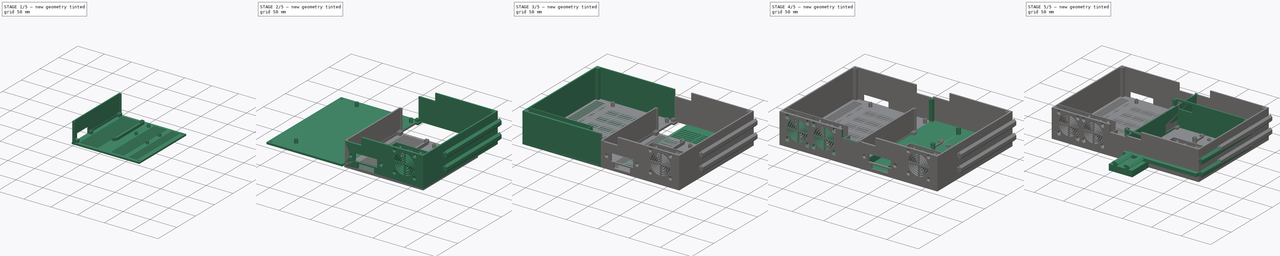
[diagram: build sequence overview — one tinted view per stage of 5, left to right]
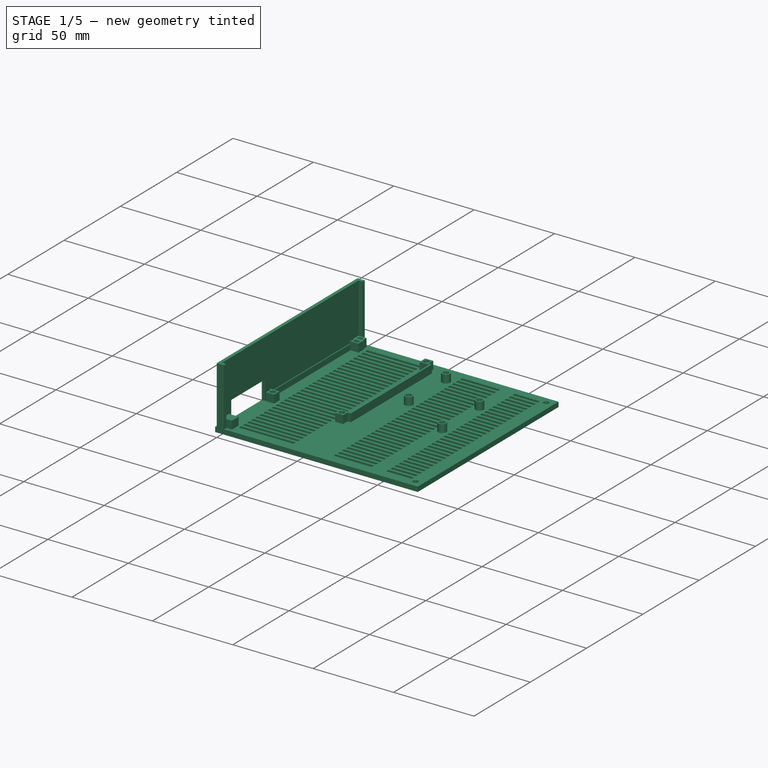
[diagram: stage 1 of 5 — iso view after this stage's code; geometry added in this stage tinted green]
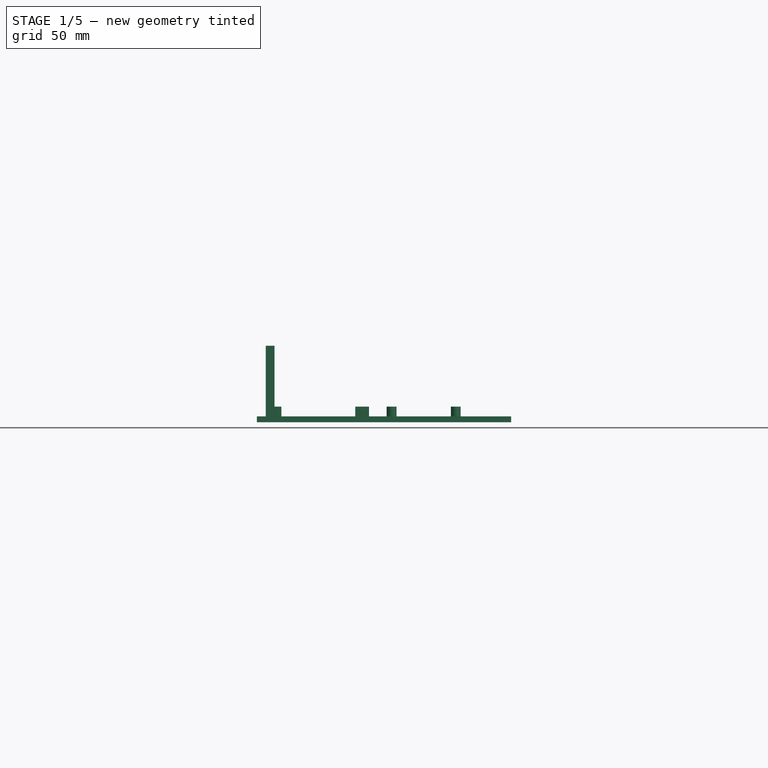
[diagram: stage 1 of 5 — front view after this stage's code; geometry added in this stage tinted green]
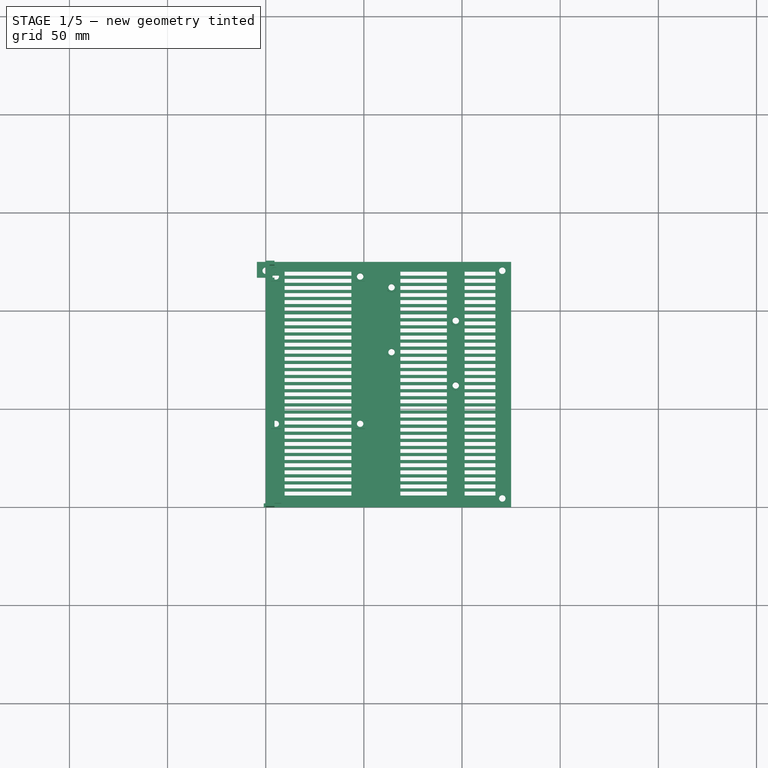
[diagram: stage 1 of 5 — top view after this stage's code; geometry added in this stage tinted green]
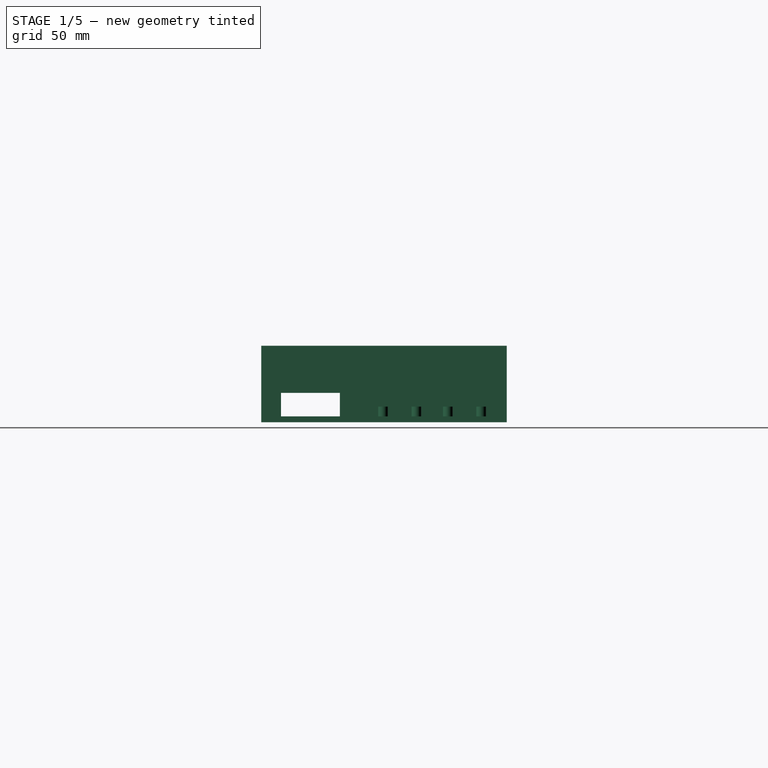
[diagram: stage 1 of 5 — right view after this stage's code; geometry added in this stage tinted green]
FCSTD DOCUMENT  (FreeCAD 0.18R16146 (Git))
Label: skr_pro_case_single
License: All rights reserved
LicenseURL: http://en.wikipedia.org/wiki/All_rights_reserved
objects: Sketcher::SketchObject×89, PartDesign::Pad×37, PartDesign::Pocket×33, PartDesign::Hole×20, PartDesign::Body×14, PartDesign::LinearPattern×7
note: 290 computed .brp shape members not serialized (recipe doc carries the construction recipe); baked Part::Feature solids carry a one-line shape summary decoded from their .brp

FEATURE [Sketcher::SketchObject] Sketch081
  ExternalGeometry = -> [Pocket023]
  MapMode = 5
  Placement = pos=(0,0,5) rot=(0,0,1;0rad)
  Support = -> [Pocket023]
  sketch-geometry (12):
    g0: LineSegment [constr] StartX=49 StartY=70 StartZ=0 EndX=105 EndY=70 EndZ=0
    g1: LineSegment [constr] StartX=105 StartY=70 StartZ=0 EndX=105 EndY=155 EndZ=0
    g2: LineSegment [constr] StartX=105 StartY=155 StartZ=0 EndX=49 EndY=155 EndZ=0
    g3: LineSegment [constr] StartX=49 StartY=155 StartZ=0 EndX=49 EndY=70 EndZ=0
    g4: Circle CenterX=101.5 CenterY=151.5 CenterZ=0 NormalX=0 NormalY=0 NormalZ=1 AngleXU=0 Radius=3
    g5: Circle CenterX=52.5 CenterY=151.5 CenterZ=0 NormalX=0 NormalY=0 NormalZ=1 AngleXU=0 Radius=3
    g6: Circle CenterX=101.5 CenterY=93.5 CenterZ=0 NormalX=0 NormalY=0 NormalZ=1 AngleXU=0 Radius=3
    g7: Circle CenterX=52.5 CenterY=93.5 CenterZ=0 NormalX=0 NormalY=0 NormalZ=1 AngleXU=0 Radius=3
    g8: LineSegment [constr] StartX=101.5 StartY=93.5 StartZ=0 EndX=52.5 EndY=93.5 EndZ=0
    g9: LineSegment [constr] StartX=52.5 StartY=93.5 StartZ=0 EndX=52.5 EndY=151.5 EndZ=0
    g10: LineSegment [constr] StartX=52.5 StartY=151.5 StartZ=0 EndX=101.5 EndY=151.5 EndZ=0
    g11: LineSegment [constr] StartX=101.5 StartY=151.5 StartZ=0 EndX=101.5 EndY=93.5 EndZ=0
  constraints (32):
    c: Coincident(g0,g1)
    c: Coincident(g1,g2)
    c: Coincident(g2,g3)
    c: Coincident(g3,g0)
    c: Horizontal(g0)
    c: Horizontal(g2)
    c: Vertical(g1)
    c: Vertical(g3)
    c: Distance(g1) = 85
    c: Distance(g2) = 56
    c: DistanceY(g-4,g0) = 70
    c: DistanceX(g0,g-4) = 20
    c: Diameter(g4) = 6
    c: Equal(g4,g5)
    c: Equal(g5,g6)
    c: Equal(g6,g7)
    c: Coincident(g8,g9)
    c: Coincident(g9,g10)
    c: Coincident(g10,g11)
    c: Coincident(g11,g8)
    c: Horizontal(g8)
    c: Horizontal(g10)
    c: Vertical(g9)
    c: Vertical(g11)
    c: Distance(g9) = 58
    c: Coincident(g4,g10)
    c: Coincident(g5,g9)
    c: Coincident(g6,g8)
    c: Coincident(g7,g8)
    c: Distance(g10) = 49
    c: DistanceY(g5,g2) = 3.5
    c: DistanceX(g2,g5) = 3.5
FEATURE [Sketcher::SketchObject] Sketch084
  MapMode = 5
  Support = -> [XY_Plane008]
  sketch-geometry (4):
    g0: LineSegment StartX=0 StartY=0 StartZ=0 EndX=125 EndY=0 EndZ=0
    g1: LineSegment StartX=125 StartY=0 StartZ=0 EndX=125 EndY=125 EndZ=0
    g2: LineSegment StartX=125 StartY=125 StartZ=0 EndX=0 EndY=125 EndZ=0
    g3: LineSegment StartX=0 StartY=125 StartZ=0 EndX=0 EndY=0 EndZ=0
  constraints (11):
    c: Coincident(g0,g1)
    c: Coincident(g1,g2)
    c: Coincident(g2,g3)
    c: Coincident(g3,g0)
    c: Horizontal(g0)
    c: Horizontal(g2)
    c: Vertical(g1)
    c: Vertical(g3)
    c: Distance(g2) = 125
    c: Distance(g1) = 125
    c: Coincident(g-1,g0)
FEATURE [PartDesign::Pad] Pad026
  Length = 3
  Length2 = 100
  Profile = -> Sketch084
  Type = 0
FEATURE [PartDesign::Body] Body009  label="walls_right_back"
  Group = -> [Sketch085,Pad027,Sketch086,Pad028,Sketch087,Pad029,Sketch088,Pad030,Sketch089,Hole010,Sketch090,Pocket031,Sketch091,Pocket032]
  Origin = -> Origin009
  Placement = pos=(0,217,4) rot=(0,0,1;0rad)
  Tip = -> Pocket032
FEATURE [Sketcher::SketchObject] Sketch092
  MapMode = 5
  Placement = pos=(0,0,0) rot=(0.57735,0.57735,0.57735;2.0944rad)
  Support = -> [YZ_Plane010]
  sketch-geometry (6):
    g0: LineSegment StartX=0 StartY=0 StartZ=0 EndX=125 EndY=0 EndZ=0
    g1: LineSegment StartX=125 StartY=0 StartZ=0 EndX=125 EndY=39 EndZ=0
    g2: LineSegment StartX=125 StartY=39 StartZ=0 EndX=0 EndY=39 EndZ=0
    g3: LineSegment StartX=0 StartY=39 StartZ=0 EndX=0 EndY=0 EndZ=0
    g4: LineSegment [constr] StartX=0 StartY=0 StartZ=0 EndX=0 EndY=51 EndZ=0
    g5: LineSegment [constr] StartX=0 StartY=51 StartZ=0 EndX=0 EndY=39 EndZ=0
  constraints (16):
    c: Coincident(g0,g1)
    c: Coincident(g1,g2)
    c: Coincident(g2,g3)
    c: Coincident(g3,g0)
    c: Horizontal(g0)
    c: Horizontal(g2)
    c: Vertical(g1)
    c: Vertical(g3)
    c: Distance(g2) = 125
    c: Coincident(g0,g-1)
    c: Coincident(g4,g5)
    c: Distance(g4) = 51
    c: Vertical(g4)
    c: Distance(g5) = 12
    c: Coincident(g5,g2)
    c: Coincident(g0,g4)
FEATURE [PartDesign::Pad] Pad031
  Length = 2
  Length2 = 100
  Placement = pos=(0,0,0) rot=(0.57735,0.57735,0.57735;2.0944rad)
  Profile = -> Sketch092
  Type = 0
FEATURE [Sketcher::SketchObject] Sketch093
  ExternalGeometry = -> [Pad031]
  MapMode = 5
  Placement = pos=(-1.09e-14,1.72e-14,39) rot=(0,0,-1;1.5708rad)
  Support = -> [Pad031]
  sketch-geometry (8):
    g0: LineSegment StartX=-2 StartY=2 StartZ=0 EndX=1.42e-14 EndY=2 EndZ=0
    g1: LineSegment StartX=1.42e-14 StartY=2 StartZ=0 EndX=1.42e-14 EndY=4.5 EndZ=0
    g2: LineSegment StartX=1.42e-14 StartY=4.5 StartZ=0 EndX=-2 EndY=4.5 EndZ=0
    g3: LineSegment StartX=-2 StartY=4.5 StartZ=0 EndX=-2 EndY=2 EndZ=0
    g4: LineSegment StartX=-125 StartY=2 StartZ=0 EndX=-123 EndY=2 EndZ=0
    g5: LineSegment StartX=-123 StartY=2 StartZ=0 EndX=-123 EndY=4.5 EndZ=0
    g6: LineSegment StartX=-123 StartY=4.5 StartZ=0 EndX=-125 EndY=4.5 EndZ=0
    g7: LineSegment StartX=-125 StartY=4.5 StartZ=0 EndX=-125 EndY=2 EndZ=0
  constraints (22):
    c: Coincident(g0,g1)
    c: Coincident(g1,g2)
    c: Coincident(g2,g3)
    c: Coincident(g3,g0)
    c: Horizontal(g0)
    c: Horizontal(g2)
    c: Vertical(g1)
    c: Vertical(g3)
    c: Distance(g0) = 2
    c: Distance(g1) = 2.5
    c: Coincident(g-3,g0)
    c: Coincident(g4,g5)
    c: Coincident(g5,g6)
    c: Coincident(g6,g7)
    c: Coincident(g7,g4)
    c: Horizontal(g4)
    c: Horizontal(g6)
    c: Vertical(g5)
    c: Vertical(g7)
    c: Distance(g6) = 2
    c: Distance(g7) = 2.5
    c: Coincident(g4,g-3)
FEATURE [PartDesign::Pad] Pad032
  BaseFeature = -> Pad031
  Length = 36
  Length2 = 100
  Placement = pos=(0,0,0) rot=(0.57735,0.57735,0.57735;2.0944rad)
  Profile = -> Sketch093
  Reversed = true
  Type = 0
FEATURE [Sketcher::SketchObject] Sketch094
  ExternalGeometry = -> [Pad032]
  MapMode = 5
  Placement = pos=(0,0,0) rot=(0.707107,0.707107,0;3.14159rad)
  Support = -> [Pad032]
  sketch-geometry (6):
    g0: LineSegment StartX=-9e-16 StartY=2 StartZ=0 EndX=117 EndY=2 EndZ=0
    g1: LineSegment StartX=117 StartY=2 StartZ=0 EndX=117 EndY=4.5 EndZ=0
    g2: LineSegment StartX=117 StartY=4.5 StartZ=0 EndX=8 EndY=4.5 EndZ=0
    g3: LineSegment StartX=-9e-16 StartY=8 StartZ=0 EndX=-9e-16 EndY=2 EndZ=0
    g4: LineSegment StartX=-9e-16 StartY=8 StartZ=0 EndX=8 EndY=8 EndZ=0
    g5: LineSegment StartX=8 StartY=8 StartZ=0 EndX=8 EndY=4.5 EndZ=0
  constraints (17):
    c: Coincident(g1,g2)
    c: Horizontal(g2)
    c: Vertical(g1)
    c: Vertical(g3)
    c: Distance(g3) = 6
    c: Coincident(g4,g5)
    c: Vertical(g5)
    c: Horizontal(g4)
    c: Coincident(g4,g3)
    c: Coincident(g5,g2)
    c: Coincident(g1,g0)
    c: Coincident(g3,g0)
    c: Coincident(g-4,g0)
    c: Distance(g4) = 8
    c: Distance(g5) = 3.5
    c: PointOnObject(g0,g-4)
    c: Distance(g-4,g0) = 8
FEATURE [PartDesign::Pad] Pad033
  BaseFeature = -> Pad032
  Length = 3
  Length2 = 100
  Placement = pos=(0,0,0) rot=(0.57735,0.57735,0.57735;2.0944rad)
  Profile = -> Sketch094
  Reversed = true
  Type = 0
FEATURE [Sketcher::SketchObject] Sketch096
  MapMode = 5
  Placement = pos=(0,0,0) rot=(1,0,0;3.14159rad)
  Support = -> [Pad026]
  sketch-geometry (6):
    g0: LineSegment StartX=-4.5 StartY=-8 StartZ=0 EndX=3.5 EndY=-8 EndZ=0
    g1: LineSegment StartX=3.5 StartY=-8 StartZ=0 EndX=3.5 EndY=0 EndZ=0
    g2: LineSegment StartX=-4.5 StartY=-2 StartZ=0 EndX=-4.5 EndY=-8 EndZ=0
    g3: LineSegment StartX=-4.5 StartY=-2 StartZ=0 EndX=0 EndY=-2 EndZ=0
    g4: LineSegment StartX=0 StartY=-2 StartZ=0 EndX=0 EndY=0 EndZ=0
    g5: LineSegment StartX=0 StartY=0 StartZ=0 EndX=3.5 EndY=0 EndZ=0
  constraints (17):
    c: Coincident(g0,g1)
    c: Coincident(g2,g0)
    c: Horizontal(g0)
    c: Vertical(g1)
    c: Vertical(g2)
    c: Equal(g0,g1)
    c: Distance(g1) = 8
    c: DistanceX(g-1,g1) = 3.5
    c: Coincident(g3,g4)
    c: Coincident(g4,g5)
    c: Horizontal(g5)
    c: Horizontal(g3)
    c: Vertical(g4)
    c: Coincident(g3,g2)
    c: Distance(g4) = 2
    c: Coincident(g1,g5)
    c: Coincident(g-1,g4)
FEATURE [PartDesign::Pocket] Pocket033
  BaseFeature = -> Pad026
  Length = 3
  Length2 = 100
  Profile = -> Sketch096
  Type = 0
FEATURE [Sketcher::SketchObject] Sketch097
  ExternalGeometry = -> [Pocket033]
  MapMode = 5
  Placement = pos=(0,0,3) rot=(0,0,1;0rad)
  Support = -> [Pocket033]
  sketch-geometry (4):
    g0: LineSegment StartX=-4.5 StartY=117 StartZ=0 EndX=0 EndY=117 EndZ=0
    g1: LineSegment StartX=0 StartY=117 StartZ=0 EndX=0 EndY=125 EndZ=0
    g2: LineSegment StartX=0 StartY=125 StartZ=0 EndX=-4.5 EndY=125 EndZ=0
    g3: LineSegment StartX=-4.5 StartY=125 StartZ=0 EndX=-4.5 EndY=117 EndZ=0
  constraints (11):
    c: Coincident(g0,g1)
    c: Coincident(g1,g2)
    c: Coincident(g2,g3)
    c: Coincident(g3,g0)
    c: Horizontal(g0)
    c: Horizontal(g2)
    c: Vertical(g1)
    c: Vertical(g3)
    c: Distance(g0) = 4.5
    c: Distance(g1) = 8
    c: Coincident(g1,g-3)
FEATURE [PartDesign::Pad] Pad034
  BaseFeature = -> Pocket033
  Length = 3
  Length2 = 100
  Profile = -> Sketch097
  Reversed = true
  Type = 0
FEATURE [Sketcher::SketchObject] Sketch098
  ExternalGeometry = -> [Pad034]
  MapMode = 5
  Placement = pos=(0,0,0) rot=(1,0,0;3.14159rad)
  Support = -> [Pad034]
  sketch-geometry (3):
    g0: Circle CenterX=0 CenterY=-120.5 CenterZ=0 NormalX=0 NormalY=0 NormalZ=1 AngleXU=0 Radius=1.5
    g1: Circle CenterX=120.5 CenterY=-120.5 CenterZ=0 NormalX=0 NormalY=0 NormalZ=1 AngleXU=0 Radius=1.5
    g2: Circle CenterX=120.5 CenterY=-4.5 CenterZ=0 NormalX=0 NormalY=0 NormalZ=1 AngleXU=0 Radius=1.5
  constraints (9):
    c: Diameter(g0) = 3
    c: PointOnObject(g0,g-2)
    c: Distance(g0,g-3) = 4.5
    c: Diameter(g1) = 3
    c: DistanceX(g1,g-4) = 4.5
    c: DistanceY(g-4,g1) = 4.5
    c: Diameter(g2) = 3
    c: DistanceX(g2,g-4) = 4.5
    c: DistanceY(g2,g-4) = 4.5
FEATURE [PartDesign::Hole] Hole011
  BaseFeature = -> Pad034
  Depth = 25
  DepthType = 0
  Diameter = 3.3
  DrillPoint = 1
  DrillPointAngle = 118
  HoleCutCountersinkAngle = 90
  HoleCutDepth = 0
  HoleCutDiameter = 6
  HoleCutType = 2
  ModelActualThread = false
  Profile = -> Sketch098
  Tapered = false
  TaperedAngle = 90
  ThreadAngle = 0
  ThreadClass = 0
  ThreadCutOffInner = 0
  ThreadCutOffOuter = 0
  ThreadDirection = 0
  ThreadFit = 0
  ThreadPitch = 0
  ThreadSize = 3
  ThreadType = 1
  Threaded = false
FEATURE [Sketcher::SketchObject] Sketch099
  MapMode = 5
  Placement = pos=(0,0,2e-16) rot=(0.707107,0.707107,0;3.14159rad)
  Support = -> [Pad033]
  sketch-geometry (1):
    g0: Circle CenterX=4.5 CenterY=4.5 CenterZ=0 NormalX=0 NormalY=0 NormalZ=1 AngleXU=0 Radius=1.5
  constraints (3):
    c: Diameter(g0) = 3
    c: DistanceY(g-1,g0) = 4.5
    c: DistanceX(g-1,g0) = 4.5
FEATURE [PartDesign::Hole] Hole012
  BaseFeature = -> Pad033
  Depth = 25
  DepthType = 0
  Diameter = 3.3
  DrillPoint = 1
  DrillPointAngle = 118
  HoleCutCountersinkAngle = 90
  HoleCutDepth = 0
  HoleCutDiameter = 6
  HoleCutType = 2
  ModelActualThread = false
  Placement = pos=(0,0,0) rot=(0.57735,0.57735,0.57735;2.0944rad)
  Profile = -> Sketch099
  Tapered = false
  TaperedAngle = 90
  ThreadAngle = 0
  ThreadClass = 0
  ThreadCutOffInner = 0
  ThreadCutOffOuter = 0
  ThreadDirection = 0
  ThreadFit = 0
  ThreadPitch = 0
  ThreadSize = 3
  ThreadType = 1
  Threaded = false
FEATURE [Sketcher::SketchObject] Sketch100
  ExternalGeometry = -> [Hole012]
  MapMode = 5
  Placement = pos=(1e-16,0,0) rot=(0.57735,0.57735,-0.57735;4.18879rad)
  Support = -> [Hole012]
  sketch-geometry (4):
    g0: LineSegment StartX=117 StartY=-3 StartZ=0 EndX=125 EndY=-3 EndZ=0
    g1: LineSegment StartX=125 StartY=-3 StartZ=0 EndX=125 EndY=1.594e-13 EndZ=0
    g2: LineSegment StartX=125 StartY=1.594e-13 StartZ=0 EndX=117 EndY=1.594e-13 EndZ=0
    g3: LineSegment StartX=117 StartY=1.594e-13 StartZ=0 EndX=117 EndY=-3 EndZ=0
  constraints (11):
    c: Coincident(g0,g1)
    c: Coincident(g1,g2)
    c: Coincident(g2,g3)
    c: Coincident(g3,g0)
    c: Horizontal(g0)
    c: Horizontal(g2)
    c: Vertical(g1)
    c: Vertical(g3)
    c: Coincident(g1,g-3)
    c: Distance(g1) = 3
    c: Distance(g0) = 8
FEATURE [PartDesign::Pocket] Pocket034
  BaseFeature = -> Hole012
  Length = 2
  Length2 = 100
  Placement = pos=(0,0,0) rot=(0.57735,0.57735,0.57735;2.0944rad)
  Profile = -> Sketch100
  Type = 0
FEATURE [Sketcher::SketchObject] Sketch101
  MapMode = 5
  Placement = pos=(1e-16,0,0) rot=(0.57735,0.57735,-0.57735;4.18879rad)
  Support = -> [Pocket034]
  sketch-geometry (5):
    g0: LineSegment StartX=10 StartY=0 StartZ=0 EndX=40 EndY=0 EndZ=0
    g1: LineSegment StartX=40 StartY=0 StartZ=0 EndX=40 EndY=-15 EndZ=0
    g2: LineSegment StartX=40 StartY=-15 StartZ=0 EndX=10 EndY=-15 EndZ=0
    g3: LineSegment StartX=10 StartY=-15 StartZ=0 EndX=10 EndY=0 EndZ=0
    g4: LineSegment [constr] StartX=10 StartY=0 StartZ=0 EndX=0 EndY=0 EndZ=0
  constraints (14):
    c: Coincident(g0,g1)
    c: Coincident(g1,g2)
    c: Coincident(g2,g3)
    c: Coincident(g3,g0)
    c: Horizontal(g0)
    c: Horizontal(g2)
    c: Vertical(g1)
    c: Vertical(g3)
    c: Distance(g0) = 30
    c: Distance(g1) = 15
    c: Horizontal(g4)
    c: Coincident(g4,g-1)
    c: Coincident(g0,g4)
    c: Distance(g4) = 10
FEATURE [PartDesign::Pocket] Pocket035
  BaseFeature = -> Pocket034
  Length = 5
  Length2 = 100
  Placement = pos=(0,0,0) rot=(0.57735,0.57735,0.57735;2.0944rad)
  Profile = -> Sketch101
  Type = 0
FEATURE [PartDesign::Body] Body012  label="foot"
  Group = -> [Sketch114,Pad039]
  Origin = -> Origin012
  Placement = pos=(0,-56,0) rot=(0,0,1;0rad)
  Tip = -> Pad039
FEATURE [Sketcher::SketchObject] Sketch126
  ExternalGeometry = -> [Hole011]
  MapMode = 5
  Placement = pos=(0,0,3) rot=(0,0,1;0rad)
  Support = -> [Hole011]
  sketch-geometry (42):
    g0: LineSegment [constr] StartX=56.6 StartY=115 StartZ=0 EndX=105 EndY=115 EndZ=0
    g1: LineSegment [constr] StartX=105 StartY=115 StartZ=0 EndX=105 EndY=92 EndZ=0
    g2: LineSegment [constr] StartX=105 StartY=92 StartZ=0 EndX=56.6 EndY=92 EndZ=0
    g3: LineSegment [constr] StartX=56.6 StartY=92 StartZ=0 EndX=56.6 EndY=115 EndZ=0
    g4: Circle CenterX=96.8 CenterY=95 CenterZ=0 NormalX=0 NormalY=0 NormalZ=1 AngleXU=0 Radius=2.5
    g5: Circle CenterX=64.1 CenterY=112 CenterZ=0 NormalX=0 NormalY=0 NormalZ=1 AngleXU=0 Radius=2.5
    g6: LineSegment [constr] StartX=56.6 StartY=82 StartZ=0 EndX=105 EndY=82 EndZ=0
    g7: LineSegment [constr] StartX=105 StartY=82 StartZ=0 EndX=105 EndY=59 EndZ=0
    g8: LineSegment [constr] StartX=105 StartY=59 StartZ=0 EndX=56.6 EndY=59 EndZ=0
    g9: LineSegment [constr] StartX=56.6 StartY=59 StartZ=0 EndX=56.6 EndY=82 EndZ=0
    g10: Circle CenterX=96.8 CenterY=62 CenterZ=0 NormalX=0 NormalY=0 NormalZ=1 AngleXU=0 Radius=2.5
    g11: Circle CenterX=64.1 CenterY=79 CenterZ=0 NormalX=0 NormalY=0 NormalZ=1 AngleXU=0 Radius=2.5
    g12: LineSegment [constr] StartX=105 StartY=82 StartZ=0 EndX=105 EndY=92 EndZ=0
    g13: LineSegment [constr] StartX=1.6 StartY=45 StartZ=0 EndX=51.6 EndY=45 EndZ=0
    g14: LineSegment [constr] StartX=51.6 StartY=45 StartZ=0 EndX=51.6 EndY=115 EndZ=0
    g15: LineSegment [constr] StartX=51.6 StartY=115 StartZ=0 EndX=1.6 EndY=115 EndZ=0
    g16: LineSegment [constr] StartX=1.6 StartY=115 StartZ=0 EndX=1.6 EndY=45 EndZ=0
    g17: LineSegment [constr] StartX=51.6 StartY=115 StartZ=0 EndX=56.6 EndY=115 EndZ=0
    g18: LineSegment StartX=0.6 StartY=44 StartZ=0 EndX=2.6 EndY=44 EndZ=0
    g19: LineSegment StartX=2.6 StartY=45 StartZ=0 EndX=2.6 EndY=115 EndZ=0
    g20: LineSegment StartX=2.6 StartY=116 StartZ=0 EndX=0.6 EndY=116 EndZ=0
    g21: LineSegment StartX=0.6 StartY=116 StartZ=0 EndX=0.6 EndY=44 EndZ=0
    g22: LineSegment StartX=50.6 StartY=44 StartZ=0 EndX=52.6 EndY=44 EndZ=0
    g23: LineSegment StartX=52.6 StartY=44 StartZ=0 EndX=52.6 EndY=116 EndZ=0
    g24: LineSegment StartX=52.6 StartY=116 StartZ=0 EndX=50.6 EndY=116 EndZ=0
    g25: LineSegment StartX=50.6 StartY=115 StartZ=0 EndX=50.6 EndY=45 EndZ=0
    g26: LineSegment StartX=2.6 StartY=115 StartZ=0 EndX=7.6 EndY=115 EndZ=0
    g27: LineSegment StartX=7.6 StartY=115 StartZ=0 EndX=7.6 EndY=120 EndZ=0
    g28: LineSegment StartX=7.6 StartY=120 StartZ=0 EndX=2.6 EndY=120 EndZ=0
    g29: LineSegment StartX=2.6 StartY=120 StartZ=0 EndX=2.6 EndY=116 EndZ=0
    g30: LineSegment StartX=50.6 StartY=115 StartZ=0 EndX=45.6 EndY=115 EndZ=0
    g31: LineSegment StartX=45.6 StartY=115 StartZ=0 EndX=45.6 EndY=120 EndZ=0
    g32: LineSegment StartX=45.6 StartY=120 StartZ=0 EndX=50.6 EndY=120 EndZ=0
    g33: LineSegment StartX=50.6 StartY=120 StartZ=0 EndX=50.6 EndY=116 EndZ=0
    g34: LineSegment StartX=2.6 StartY=45 StartZ=0 EndX=7.6 EndY=45 EndZ=0
    g35: LineSegment StartX=7.6 StartY=45 StartZ=0 EndX=7.6 EndY=40 EndZ=0
    g36: LineSegment StartX=7.6 StartY=40 StartZ=0 EndX=2.6 EndY=40 EndZ=0
    g37: LineSegment StartX=2.6 StartY=40 StartZ=0 EndX=2.6 EndY=44 EndZ=0
    g38: LineSegment StartX=50.6 StartY=45 StartZ=0 EndX=45.6 EndY=45 EndZ=0
    g39: LineSegment StartX=45.6 StartY=45 StartZ=0 EndX=45.6 EndY=40 EndZ=0
    g40: LineSegment StartX=45.6 StartY=40 StartZ=0 EndX=50.6 EndY=40 EndZ=0
    g41: LineSegment StartX=50.6 StartY=40 StartZ=0 EndX=50.6 EndY=44 EndZ=0
  constraints (124):
    c: Coincident(g0,g1)
    c: Coincident(g1,g2)
    c: Coincident(g2,g3)
    c: Coincident(g3,g0)
    c: Horizontal(g0)
    c: Horizontal(g2)
    c: Vertical(g1)
    c: Vertical(g3)
    c: Distance(g0) = 48.4
    c: DistanceY(g3,g3) = 23
    c: Diameter(g4) = 5
    c: Equal(g4,g5) = 5
    c: DistanceY(g5,g0) = 3
    c: DistanceY(g1,g4) = 3
    c: DistanceX(g4,g1) = 8.2
    c: DistanceX(g0,g5) = 7.5
    c: Coincident(g6,g7)
    c: Coincident(g7,g8)
    c: Coincident(g8,g9)
    c: Coincident(g9,g6)
    c: Horizontal(g6)
    c: Horizontal(g8)
    c: Vertical(g7)
    c: Vertical(g9)
    c: Equal(g0,g6) = 48.4
    c: Equal(g3,g9) = 23
    c: Equal(g4,g10) = 5
    c: Equal(g10,g11) = 5
    c: DistanceY(g11,g6) = 3
    c: DistanceY(g7,g10) = 3
    c: DistanceX(g10,g7) = 8.2
    c: DistanceX(g6,g11) = 7.5
    c: DistanceX(g0,g-3) = 20
    c: Coincident(g12,g1)
    c: Coincident(g12,g6)
    c: Vertical(g12)
    c: Distance(g12) = 10
    c: DistanceY(g0,g-3) = 10
    c: Coincident(g13,g14)
    c: Coincident(g14,g15)
    c: Coincident(g15,g16)
    c: Coincident(g16,g13)
    c: Horizontal(g13)
    c: Horizontal(g15)
    c: Vertical(g14)
    c: Vertical(g16)
    c: Distance(g13) = 50
    c: Horizontal(g17)
    c: Coincident(g17,g0)
    c: Coincident(g17,g14)
    c: Distance(g17) = 5
    c: Distance(g16) = 70
    c: Coincident(g20,g21)
    c: Coincident(g21,g18)
    c: Horizontal(g18)
    c: Horizontal(g20)
    c: Vertical(g19)
    c: Vertical(g21)
    c: Distance(g20) = 2
    c: DistanceY(g15,g20) = 1
    c: DistanceX(g15,g19) = 1
    c: DistanceY(g18,g13) = 1
    c: Coincident(g22,g23)
    c: Coincident(g23,g24)
    c: Horizontal(g22)
    c: Horizontal(g24)
    c: Vertical(g23)
    c: Vertical(g25)
    c: DistanceX(g13,g22) = 1
    c: Distance(g22) = 2
    c: DistanceY(g22,g13) = 1
    c: DistanceY(g14,g24) = 1
    c: Coincident(g26,g27)
    c: Coincident(g27,g28)
    c: Coincident(g28,g29)
    c: Horizontal(g26)
    c: Horizontal(g28)
    c: Vertical(g27)
    c: Vertical(g29)
    c: PointOnObject(g19,g15)
    c: Coincident(g29,g20)
    c: Coincident(g26,g19)
    c: Equal(g26,g27)
    c: Distance(g27) = 5
    c: DistanceX(g20,g15) = 1
    c: PointOnObject(g25,g15)
    c: Coincident(g30,g31)
    c: Coincident(g31,g32)
    c: Coincident(g32,g33)
    c: Horizontal(g30)
    c: Horizontal(g32)
    c: Vertical(g31)
    c: Vertical(g33)
    c: Equal(g31,g30)
    c: Distance(g31) = 5
    c: Coincident(g30,g25)
    c: Coincident(g33,g24)
    c: Distance(g24) = 2
    c: PointOnObject(g19,g13)
    c: Coincident(g34,g35)
    c: Coincident(g35,g36)
    c: Coincident(g36,g37)
    c: Horizontal(g34)
    c: Horizontal(g36)
    c: Vertical(g35)
    c: Vertical(g37)
    c: Coincident(g37,g18)
    c: Coincident(g34,g19)
    c: Distance(g18) = 2
    c: Equal(g34,g35)
    c: Distance(g34) = 5
    c: PointOnObject(g25,g13)
    c: Coincident(g38,g39)
    c: Coincident(g39,g40)
    c: Coincident(g40,g41)
    c: Horizontal(g38)
    c: Horizontal(g40)
    c: Vertical(g39)
    c: Vertical(g41)
    c: Coincident(g41,g22)
    c: Coincident(g25,g38)
    c: Equal(g39,g38)
    c: Distance(g38) = 5
    c: DistanceX(g25,g13) = 1
FEATURE [PartDesign::Pad] Pad046
  BaseFeature = -> Hole011
  Length = 5
  Length2 = 100
  Profile = -> Sketch126
  Type = 0
FEATURE [Sketcher::SketchObject] Sketch127
  ExternalGeometry = -> [Pad046]
  MapMode = 5
  Placement = pos=(0,0,8) rot=(0,0,1;0rad)
  Support = -> [Pad046]
  sketch-geometry (8):
    g0: Circle CenterX=64.1 CenterY=112 CenterZ=0 NormalX=0 NormalY=0 NormalZ=1 AngleXU=0 Radius=1.5
    g1: Circle CenterX=96.8 CenterY=95 CenterZ=0 NormalX=0 NormalY=0 NormalZ=1 AngleXU=0 Radius=1.5
    g2: Circle CenterX=96.8 CenterY=62 CenterZ=0 NormalX=0 NormalY=0 NormalZ=1 AngleXU=0 Radius=1.5
    g3: Circle CenterX=64.1 CenterY=79 CenterZ=0 NormalX=0 NormalY=0 NormalZ=1 AngleXU=0 Radius=1.5
    g4: Circle CenterX=5.1 CenterY=117.5 CenterZ=0 NormalX=0 NormalY=0 NormalZ=1 AngleXU=0 Radius=1.5
    g5: Circle CenterX=48.1 CenterY=117.5 CenterZ=0 NormalX=0 NormalY=0 NormalZ=1 AngleXU=0 Radius=1.5
    g6: Circle CenterX=5.1 CenterY=42.5 CenterZ=0 NormalX=0 NormalY=0 NormalZ=1 AngleXU=0 Radius=1.5
    g7: Circle CenterX=48.1 CenterY=42.5 CenterZ=0 NormalX=0 NormalY=0 NormalZ=1 AngleXU=0 Radius=1.5
  constraints (20):
    c: Equal(g0,g3)
    c: Equal(g3,g1)
    c: Equal(g1,g2)
    c: Diameter(g0) = 3
    c: Coincident(g0,g-6)
    c: Coincident(g1,g-7)
    c: Coincident(g3,g-8)
    c: Coincident(g2,g-9)
    c: DistanceX(g4,g-10) = 2.5
    c: DistanceY(g4,g-10) = 2.5
    c: Equal(g6,g7)
    c: Equal(g7,g4)
    c: Equal(g4,g5)
    c: Equal(g5,g0)
    c: DistanceY(g5,g-11) = 2.5
    c: DistanceX(g-11,g5) = 2.5
    c: DistanceY(g-12,g6) = 2.5
    c: DistanceX(g6,g-12) = 2.5
    c: DistanceY(g-13,g7) = 2.5
    c: DistanceX(g-13,g7) = 2.5
FEATURE [PartDesign::Hole] Hole018
  BaseFeature = -> Pad046
  Depth = 25
  DepthType = 0
  Diameter = 3.3
  DrillPoint = 1
  DrillPointAngle = 118
  HoleCutCountersinkAngle = 90
  HoleCutDepth = 0
  HoleCutDiameter = 3
  HoleCutType = 0
  ModelActualThread = false
  Profile = -> Sketch127
  Tapered = false
  TaperedAngle = 90
  ThreadAngle = 0
  ThreadClass = 0
  ThreadCutOffInner = 0
  ThreadCutOffOuter = 0
  ThreadDirection = 0
  ThreadFit = 0
  ThreadPitch = 0
  ThreadSize = 3
  ThreadType = 1
  Threaded = false
FEATURE [PartDesign::Body] Body002  label="walls_front_right"
  Group = -> [Sketch023,Pad001,Sketch022,Sketch,Pad002,Sketch025,Pocket001,Sketch028,Pocket003,Sketch053,Sketch057,Pad016,Sketch080,Hole009,Pocket,Hole015,Sketch131,Pocket044,Sketch134,Hole020,Sketch140,Pocket048]
  Origin = -> Origin002
  Placement = pos=(0,0,2) rot=(0,0,1;0rad)
  Tip = -> Pocket048
FEATURE [Sketcher::SketchObject] Sketch141
  ExternalGeometry = -> [Hole018]
  MapMode = 5
  Placement = pos=(0,0,8) rot=(0,0,1;0rad)
  Support = -> [Hole018]
  sketch-geometry (8):
    g0: LineSegment StartX=1.6 StartY=45 StartZ=0 EndX=2.6 EndY=45 EndZ=0
    g1: LineSegment StartX=2.6 StartY=45 StartZ=0 EndX=2.6 EndY=115 EndZ=0
    g2: LineSegment StartX=2.6 StartY=115 StartZ=0 EndX=1.6 EndY=115 EndZ=0
    g3: LineSegment StartX=1.6 StartY=115 StartZ=0 EndX=1.6 EndY=45 EndZ=0
    g4: LineSegment StartX=51.6 StartY=115 StartZ=0 EndX=50.6 EndY=115 EndZ=0
    g5: LineSegment StartX=50.6 StartY=115 StartZ=0 EndX=50.6 EndY=45 EndZ=0
    g6: LineSegment StartX=50.6 StartY=45 StartZ=0 EndX=51.6 EndY=45 EndZ=0
    g7: LineSegment StartX=51.6 StartY=45 StartZ=0 EndX=51.6 EndY=115 EndZ=0
  constraints (20):
    c: Coincident(g0,g1)
    c: Coincident(g1,g2)
    c: Coincident(g2,g3)
    c: Coincident(g3,g0)
    c: Horizontal(g0)
    c: Horizontal(g2)
    c: Vertical(g3)
    c: Coincident(g4,g5)
    c: Coincident(g5,g6)
    c: Coincident(g6,g7)
    c: Coincident(g7,g4)
    c: Horizontal(g4)
    c: Horizontal(g6)
    c: Vertical(g7)
    c: Coincident(g0,g-3)
    c: Coincident(g5,g-4)
    c: Coincident(g-3,g1)
    c: Distance(g2) = 1
    c: Coincident(g-4,g4)
    c: Distance(g4) = 1
FEATURE [PartDesign::Pocket] Pocket049
  BaseFeature = -> Hole018
  Length = 1.5
  Length2 = 100
  Profile = -> Sketch141
  Type = 0
FEATURE [PartDesign::Body] Body013  label="PCB_Bracket"
  Group = -> [Sketch142,Pad049,Sketch143,Hole023]
  Origin = -> Origin013
  Placement = pos=(1.6,331,9) rot=(0,0,1;0rad)
  Tip = -> Hole023
FEATURE [Sketcher::SketchObject] Sketch145
  MapMode = 5
  Support = -> [XY_Plane014]
  sketch-geometry (12):
    g0: LineSegment StartX=-1 StartY=0 StartZ=0 EndX=51 EndY=0 EndZ=0
    g1: LineSegment StartX=51 StartY=0 StartZ=0 EndX=51 EndY=2 EndZ=0
    g2: LineSegment StartX=51 StartY=2 StartZ=0 EndX=49 EndY=2 EndZ=0
    g3: LineSegment StartX=49 StartY=2 StartZ=0 EndX=49 EndY=6 EndZ=0
    g4: LineSegment StartX=49 StartY=6 StartZ=0 EndX=44 EndY=6 EndZ=0
    g5: LineSegment StartX=44 StartY=6 StartZ=0 EndX=44 EndY=2 EndZ=0
    g6: LineSegment StartX=44 StartY=2 StartZ=0 EndX=6 EndY=2 EndZ=0
    g7: LineSegment StartX=6 StartY=2 StartZ=0 EndX=6 EndY=6 EndZ=0
    g8: LineSegment StartX=6 StartY=6 StartZ=0 EndX=1 EndY=6 EndZ=0
    g9: LineSegment StartX=1 StartY=6 StartZ=0 EndX=1 EndY=2 EndZ=0
    g10: LineSegment StartX=1 StartY=2 StartZ=0 EndX=-1 EndY=2 EndZ=0
    g11: LineSegment StartX=-1 StartY=2 StartZ=0 EndX=-1 EndY=0 EndZ=0
  constraints (27):
    c: Perpendicular(g0,g1) = 1.5708
    c: Perpendicular(g1,g2) = 1.5708
    c: Perpendicular(g2,g3) = 4.71239
    c: Perpendicular(g3,g4) = 1.5708
    c: Perpendicular(g4,g5) = 1.5708
    c: Perpendicular(g5,g6) = 4.71239
    c: Perpendicular(g6,g7) = 4.71239
    c: Perpendicular(g7,g8) = 1.5708
    c: Perpendicular(g8,g9) = 1.5708
    c: Coincident(g10,g11)
    c: Coincident(g10,g9)
    c: Coincident(g11,g0)
    c: Perpendicular(g9,g10)
    c: Perpendicular(g10,g11)
    c: Horizontal(g0)
    c: Distance(g0) = 52
    c: Distance(g10) = 2
    c: Distance(g2) = 2
    c: Distance(g11) = 2
    c: PointOnObject(g-1,g0)
    c: DistanceX(g0,g-1) = 1
    c: Distance(g8) = 5
    c: Equal(g8,g4)
    c: Distance(g9) = 4
    c: Equal(g9,g7)
    c: Equal(g7,g5)
    c: Equal(g5,g3)
FEATURE [PartDesign::Pad] Pad050
  Length = 3
  Length2 = 100
  Profile = -> Sketch145
  Type = 0
FEATURE [PartDesign::Body] Body014  label="PCB_Bracket001"
  Group = -> [Sketch145,Pad050,Sketch144,Hole024]
  Origin = -> Origin014
  Placement = pos=(51.6,263,9) rot=(0,0,1;3.14159rad)
  Tip = -> Hole024
FEATURE [Sketcher::SketchObject] Sketch146
  ExternalGeometry = -> [Pocket049]
  MapMode = 5
  Placement = pos=(0,0,3) rot=(0,0,1;0rad)
  Support = -> [Pocket049]
  sketch-geometry (18):
    g0: LineSegment StartX=9.6 StartY=120 StartZ=0 EndX=43.6 EndY=120 EndZ=0
    g1: LineSegment StartX=43.6 StartY=120 StartZ=0 EndX=43.6 EndY=118 EndZ=0
    g2: LineSegment StartX=43.6 StartY=118 StartZ=0 EndX=9.6 EndY=118 EndZ=0
    g3: LineSegment StartX=9.6 StartY=118 StartZ=0 EndX=9.6 EndY=120 EndZ=0
    g4: LineSegment [constr] StartX=7.6 StartY=120 StartZ=0 EndX=9.6 EndY=120 EndZ=0
    g5: LineSegment [constr] StartX=43.6 StartY=120 StartZ=0 EndX=45.6 EndY=120 EndZ=0
    g6: LineSegment StartX=68.6 StartY=118 StartZ=0 EndX=92.3 EndY=118 EndZ=0
    g7: LineSegment StartX=92.3 StartY=118 StartZ=0 EndX=92.3 EndY=120 EndZ=0
    g8: LineSegment StartX=92.3 StartY=120 StartZ=0 EndX=68.6 EndY=120 EndZ=0
    g9: LineSegment StartX=68.6 StartY=120 StartZ=0 EndX=68.6 EndY=118 EndZ=0
    g10: LineSegment StartX=101.3 StartY=118 StartZ=0 EndX=117 EndY=118 EndZ=0
    g11: LineSegment StartX=117 StartY=118 StartZ=0 EndX=117 EndY=120 EndZ=0
    g12: LineSegment StartX=117 StartY=120 StartZ=0 EndX=101.3 EndY=120 EndZ=0
    g13: LineSegment StartX=101.3 StartY=120 StartZ=0 EndX=101.3 EndY=118 EndZ=0
    g14: LineSegment [constr] StartX=50.6 StartY=120 StartZ=0 EndX=68.6 EndY=120 EndZ=0
    g15: LineSegment [constr] StartX=92.3 StartY=120 StartZ=0 EndX=96.8 EndY=120 EndZ=0
    g16: LineSegment [constr] StartX=96.8 StartY=120 StartZ=0 EndX=101.3 EndY=120 EndZ=0
    g17: LineSegment [constr] StartX=96.8 StartY=120 StartZ=0 EndX=96.8 EndY=95 EndZ=0
  constraints (49):
    c: Coincident(g0,g1)
    c: Coincident(g1,g2)
    c: Coincident(g2,g3)
    c: Coincident(g3,g0)
    c: Horizontal(g0)
    c: Horizontal(g2)
    c: Vertical(g1)
    c: Vertical(g3)
    c: Distance(g3) = 2
    c: Horizontal(g5)
    c: Coincident(g0,g4)
    c: Coincident(g5,g0)
    c: Coincident(g5,g-4)
    c: Coincident(g-3,g4)
    c: Equal(g4,g5)
    c: DistanceX(g4,g4) = 2
    c: Coincident(g6,g7)
    c: Coincident(g7,g8)
    c: Coincident(g8,g9)
    c: Coincident(g9,g6)
    c: Horizontal(g6)
    c: Horizontal(g8)
    c: Vertical(g7)
    c: Vertical(g9)
    c: Coincident(g10,g11)
    c: Coincident(g11,g12)
    c: Coincident(g12,g13)
    c: Coincident(g13,g10)
    c: Horizontal(g10)
    c: Horizontal(g12)
    c: Vertical(g11)
    c: Vertical(g13)
    c: Equal(g1,g9)
    c: Equal(g9,g13)
    c: Horizontal(g14)
    c: Coincident(g14,g-5)
    c: Coincident(g8,g14)
    c: Coincident(g15,g16)
    c: Horizontal(g16)
    c: Horizontal(g15)
    c: Vertical(g17)
    c: Coincident(g15,g17)
    c: Coincident(g7,g15)
    c: Coincident(g16,g12)
    c: DistanceX(g11,g-7) = 3.5
    c: Equal(g15,g16)
    c: Distance(g15) = 4.5
    c: Coincident(g-8,g17)
    c: DistanceX(g-6,g6) = 4.5
FEATURE [PartDesign::Pocket] Pocket050
  BaseFeature = -> Pocket049
  Length = 5
  Length2 = 100
  Profile = -> Sketch146
  Type = 1
FEATURE [PartDesign::LinearPattern] LinearPattern007
  BaseFeature = -> Pocket050
  Direction = -> Y_Axis008
  Length = 112
  Occurrences = 32
  Originals = -> [Pocket050]
  Reversed = true
FEATURE [PartDesign::Body] Body008  label="baseplate_right_back"
  Group = -> [Sketch084,Pad026,Sketch096,Pocket033,Sketch097,Pad034,Sketch098,Hole011,Sketch126,Pad046,Sketch127,Hole018,Sketch141,Pocket049,Sketch146,Pocket050,LinearPattern007]
  Origin = -> Origin008
  Placement = pos=(0,217,1) rot=(0,0,1;0rad)
  Tip = -> LinearPattern007
FEATURE [Sketcher::SketchObject] Sketch147
  ExternalGeometry = -> [Pocket035]
  MapMode = 5
  Placement = pos=(-2.2e-15,2e-15,3) rot=(0,0,-1;1.5708rad)
  Support = -> [Pocket035]
  sketch-geometry (4):
    g0: LineSegment StartX=-2 StartY=2 StartZ=0 EndX=-8 EndY=2 EndZ=0
    g1: LineSegment StartX=-8 StartY=2 StartZ=0 EndX=-8 EndY=8 EndZ=0
    g2: LineSegment StartX=-8 StartY=8 StartZ=0 EndX=-2 EndY=8 EndZ=0
    g3: LineSegment StartX=-2 StartY=8 StartZ=0 EndX=-2 EndY=2 EndZ=0
  constraints (10):
    c: Coincident(g0,g1)
    c: Coincident(g1,g2)
    c: Vertical(g1)
    c: Horizontal(g2)
    c: Horizontal(g0)
    c: Coincident(g1,g-3)
    c: Coincident(g0,g-5)
    c: Coincident(g2,g3)
    c: Vertical(g3)
    c: Coincident(g0,g3)
FEATURE [PartDesign::Pad] Pad051
  BaseFeature = -> Pocket035
  Length = 5
  Length2 = 100
  Placement = pos=(0,0,0) rot=(0.57735,0.57735,0.57735;2.0944rad)
  Profile = -> Sketch147
  Type = 0
FEATURE [Sketcher::SketchObject] Sketch148
  ExternalGeometry = -> [Pad051]
  MapMode = 5
  Placement = pos=(2,-4e-16,7e-16) rot=(0.57735,0.57735,0.57735;2.0944rad)
  Support = -> [Pad051]
  sketch-geometry (4):
    g0: LineSegment StartX=123 StartY=3 StartZ=0 EndX=118 EndY=3 EndZ=0
    g1: LineSegment StartX=118 StartY=3 StartZ=0 EndX=118 EndY=8 EndZ=0
    g2: LineSegment StartX=118 StartY=8 StartZ=0 EndX=123 EndY=8 EndZ=0
    g3: LineSegment StartX=123 StartY=8 StartZ=0 EndX=123 EndY=3 EndZ=0
  constraints (11):
    c: Coincident(g0,g1)
    c: Coincident(g1,g2)
    c: Coincident(g2,g3)
    c: Coincident(g3,g0)
    c: Horizontal(g0)
    c: Horizontal(g2)
    c: Vertical(g1)
    c: Vertical(g3)
    c: Coincident(g0,g-3)
    c: Equal(g3,g0)
    c: Distance(g1) = 5
FEATURE [PartDesign::Pad] Pad052
  BaseFeature = -> Pad051
  Length = 5
  Length2 = 100
  Placement = pos=(0,0,0) rot=(0.57735,0.57735,0.57735;2.0944rad)
  Profile = -> Sketch148
  Type = 0
FEATURE [Sketcher::SketchObject] Sketch149
  ExternalGeometry = -> [Pad052]
  MapMode = 5
  Placement = pos=(-1e-15,0,3) rot=(0.707107,0.707107,0;3.14159rad)
  Support = -> [Pad052]
  sketch-geometry (1):
    g0: Circle CenterX=120.5 CenterY=4.5 CenterZ=0 NormalX=0 NormalY=0 NormalZ=1 AngleXU=0 Radius=1.5
  constraints (3):
    c: Diameter(g0) = 3
    c: DistanceX(g-3,g0) = 2.5
    c: DistanceY(g0,g-3) = 2.5
FEATURE [PartDesign::Hole] Hole025
  BaseFeature = -> Pad052
  Depth = 25
  DepthType = 0
  Diameter = 3.3
  DrillPoint = 1
  DrillPointAngle = 118
  HoleCutCountersinkAngle = 90
  HoleCutDepth = 0
  HoleCutDiameter = 3
  HoleCutType = 0
  ModelActualThread = false
  Placement = pos=(0,0,0) rot=(0.57735,0.57735,0.57735;2.0944rad)
  Profile = -> Sketch149
  Tapered = false
  TaperedAngle = 90
  ThreadAngle = 0
  ThreadClass = 0
  ThreadCutOffInner = 0
  ThreadCutOffOuter = 0
  ThreadDirection = 0
  ThreadFit = 0
  ThreadPitch = 0
  ThreadSize = 3
  ThreadType = 1
  Threaded = false
FEATURE [PartDesign::Body] Body010  label="wall_middle_back"
  Group = -> [Sketch092,Pad031,Sketch093,Pad032,Sketch094,Pad033,Sketch099,Hole012,Sketch100,Pocket034,Sketch101,Pocket035,Sketch147,Pad051,Sketch148,Pad052,Sketch149,Hole025]
  Origin = -> Origin010
  Placement = pos=(-4.5,217,1) rot=(0,0,1;0rad)
  Tip = -> Hole025
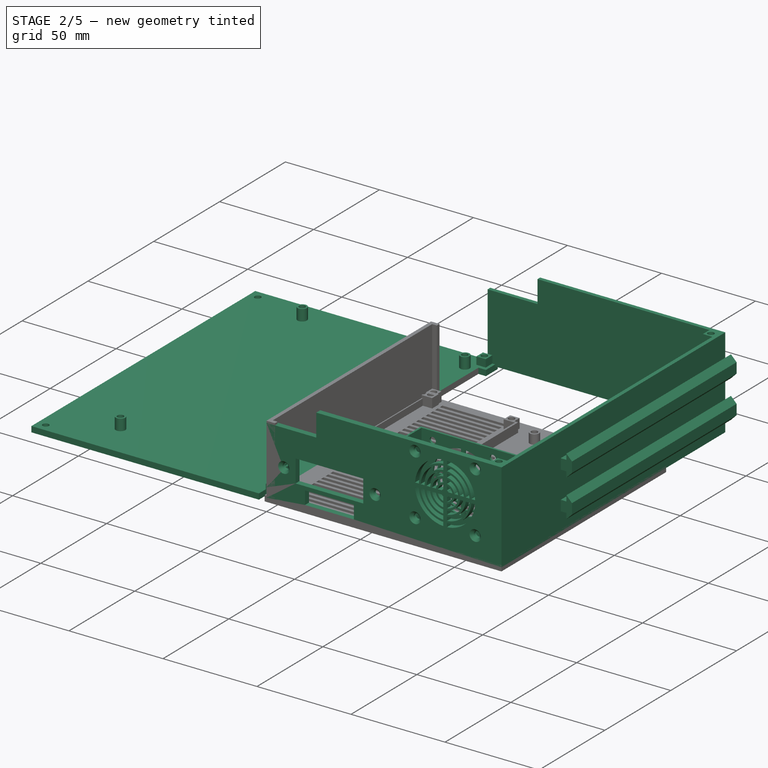
[diagram: stage 2 of 5 — iso view after this stage's code; geometry added in this stage tinted green]
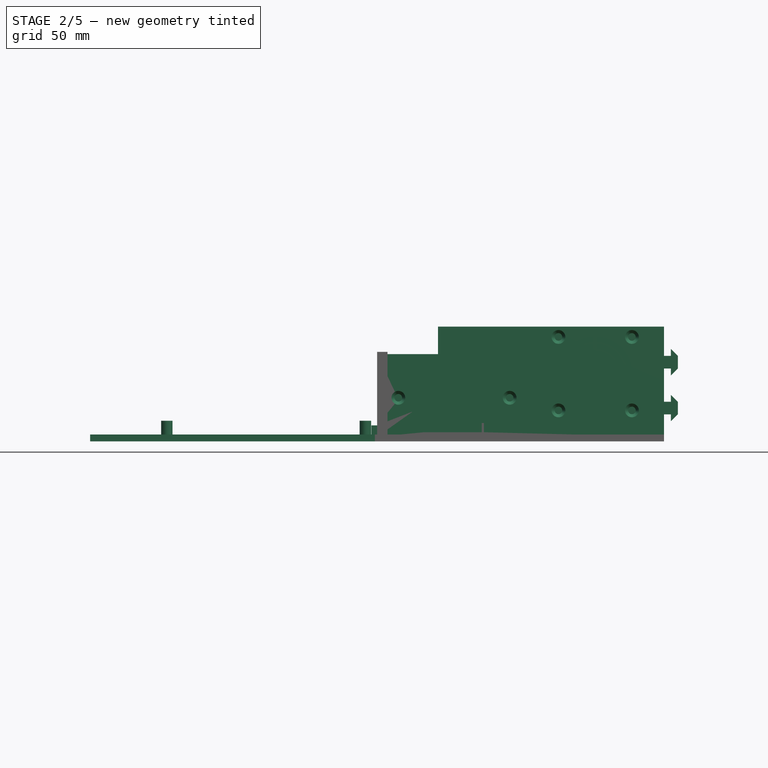
[diagram: stage 2 of 5 — front view after this stage's code; geometry added in this stage tinted green]
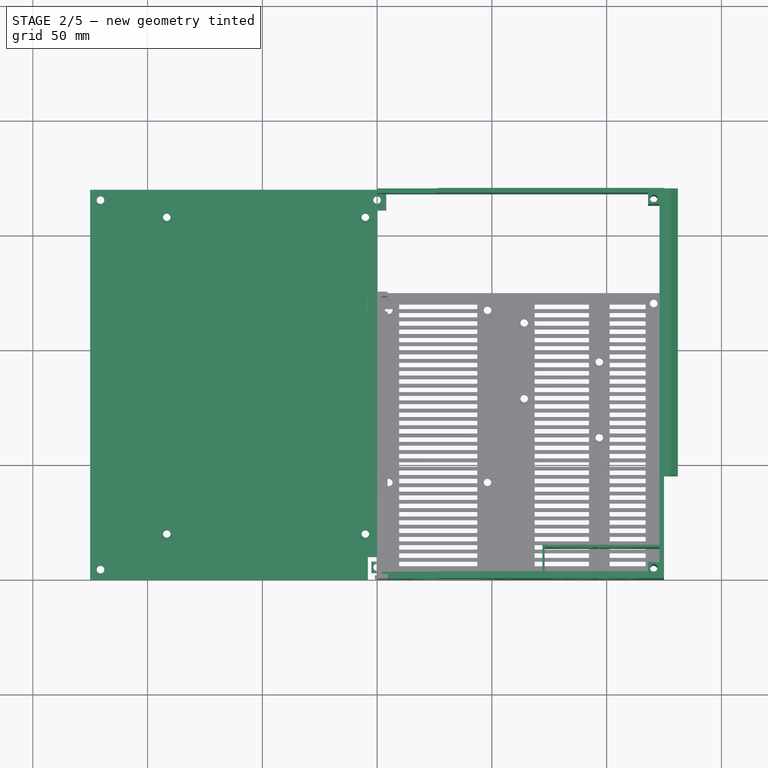
[diagram: stage 2 of 5 — top view after this stage's code; geometry added in this stage tinted green]
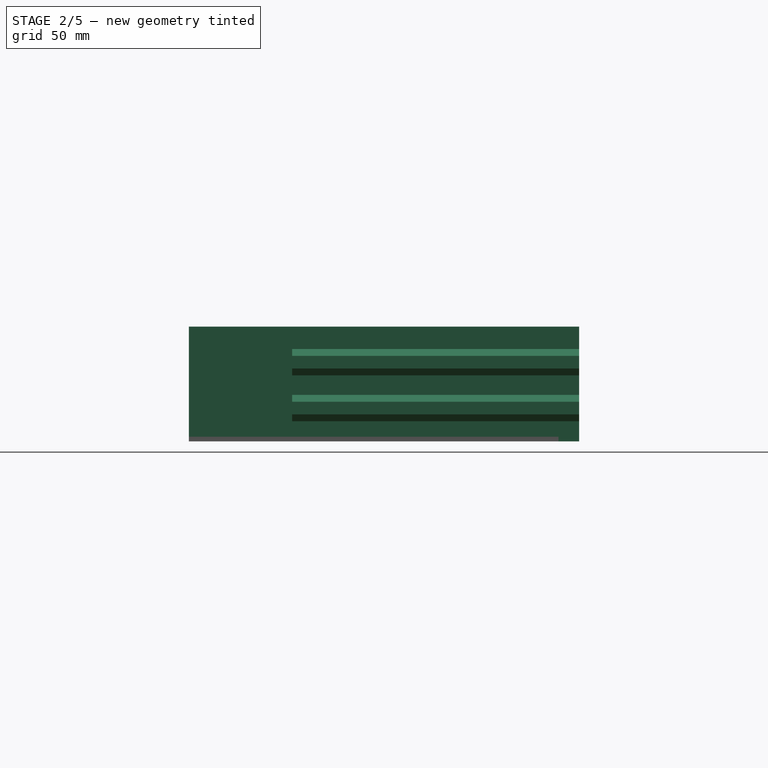
[diagram: stage 2 of 5 — right view after this stage's code; geometry added in this stage tinted green]
FEATURE [Sketcher::SketchObject] Sketch023
  AttachmentOffset = pos=(0,0,2) rot=(0,0,1;0rad)
  MapMode = 5
  Placement = pos=(0,0,2) rot=(0,0,1;0rad)
  Support = -> [XY_Plane002]
  sketch-geometry (26):
    g0: LineSegment StartX=73 StartY=3 StartZ=0 EndX=118 EndY=3 EndZ=0
    g1: LineSegment StartX=123 StartY=7 StartZ=0 EndX=123 EndY=13.5 EndZ=0
    g2: LineSegment StartX=123 StartY=13.5 StartZ=0 EndX=73 EndY=13.5 EndZ=0
    g3: LineSegment StartX=73 StartY=13.5 StartZ=0 EndX=73 EndY=3 EndZ=0
    g4: LineSegment StartX=0 StartY=0 StartZ=0 EndX=125 EndY=0 EndZ=0
    g5: LineSegment StartX=125 StartY=0 StartZ=0 EndX=125 EndY=170 EndZ=0
    g6: LineSegment StartX=125 StartY=170 StartZ=0 EndX=0 EndY=170 EndZ=0
    g7: LineSegment StartX=0 StartY=170 StartZ=0 EndX=0 EndY=168 EndZ=0
    g8: LineSegment StartX=0 StartY=168 StartZ=0 EndX=118 EndY=168 EndZ=0
    g9: LineSegment StartX=123 StartY=163 StartZ=0 EndX=123 EndY=14.5 EndZ=0
    g10: LineSegment StartX=123 StartY=14.5 StartZ=0 EndX=72 EndY=14.5 EndZ=0
    g11: LineSegment StartX=72 StartY=14.5 StartZ=0 EndX=72 EndY=3 EndZ=0
    g12: LineSegment StartX=72 StartY=3 StartZ=0 EndX=0 EndY=3 EndZ=0
    g13: LineSegment StartX=0 StartY=3 StartZ=0 EndX=0 EndY=0 EndZ=0
    g14: LineSegment [constr] StartX=118 StartY=0 StartZ=0 EndX=125 EndY=0 EndZ=0
    g15: LineSegment [constr] StartX=125 StartY=0 StartZ=0 EndX=125 EndY=7 EndZ=0
    g16: LineSegment [constr] StartX=125 StartY=7 StartZ=0 EndX=118 EndY=7 EndZ=0
    g17: LineSegment [constr] StartX=118 StartY=7 StartZ=0 EndX=118 EndY=0 EndZ=0
    g18: LineSegment StartX=118 StartY=3 StartZ=0 EndX=118 EndY=7 EndZ=0
    g19: LineSegment StartX=118 StartY=7 StartZ=0 EndX=123 EndY=7 EndZ=0
    g20: LineSegment [constr] StartX=125 StartY=170 StartZ=0 EndX=118 EndY=170 EndZ=0
    g21: LineSegment [constr] StartX=118 StartY=170 StartZ=0 EndX=118 EndY=163 EndZ=0
    g22: LineSegment [constr] StartX=118 StartY=163 StartZ=0 EndX=125 EndY=163 EndZ=0
    g23: LineSegment [constr] StartX=125 StartY=163 StartZ=0 EndX=125 EndY=170 EndZ=0
    g24: LineSegment StartX=118 StartY=168 StartZ=0 EndX=118 EndY=163 EndZ=0
    g25: LineSegment StartX=118 StartY=163 StartZ=0 EndX=123 EndY=163 EndZ=0
  constraints (73):
    c: Coincident(g1,g2)
    c: Coincident(g2,g3)
    c: Coincident(g3,g0)
    c: Horizontal(g0)
    c: Horizontal(g2)
    c: Vertical(g1)
    c: Vertical(g3)
    c: Coincident(g4,g5)
    c: Coincident(g5,g6)
    c: Coincident(g6,g7)
    c: Coincident(g7,g8)
    c: Coincident(g9,g10)
    c: Coincident(g10,g11)
    c: Coincident(g11,g12)
    c: Coincident(g12,g13)
    c: Vertical(g7)
    c: Vertical(g5)
    c: Vertical(g9)
    c: Vertical(g11)
    c: Vertical(g13)
    c: Horizontal(g6)
    c: Horizontal(g8)
    c: Horizontal(g10)
    c: Horizontal(g4)
    c: Horizontal(g12)
    c: Distance(g7) = 2
    c: Distance(g11,g4) = 3
    c: Distance(g0,g4) = 3
    c: Distance(g9,g5) = 2
    c: Distance(g1,g5) = 2
    c: Distance(g3) = 10.5
    c: Coincident(g4,g13)
    c: Distance(g4) = 125
    c: Distance(g5) = 170
    c: Equal(g4,g6)
    c: Coincident(g4,g-1)
    c: Distance(g2) = 50
    c: DistanceX(g10,g2) = 1
    c: DistanceY(g2,g10) = 1
    c: Coincident(g14,g15)
    c: Coincident(g15,g16)
    c: Coincident(g16,g17)
    c: Coincident(g17,g14)
    c: Horizontal(g14)
    c: Horizontal(g16)
    c: Vertical(g15)
    c: Vertical(g17)
    c: Equal(g14,g15)
    c: Distance(g15) = 7
    c: Coincident(g4,g14)
    c: PointOnObject(g1,g16)
    c: PointOnObject(g0,g17)
    c: Coincident(g18,g19)
    c: Coincident(g18,g16)
    c: Coincident(g18,g0)
    c: Coincident(g19,g1)
    c: Coincident(g20,g21)
    c: Coincident(g21,g22)
    c: Coincident(g22,g23)
    c: Coincident(g23,g20)
    c: Horizontal(g20)
    c: Horizontal(g22)
    c: Vertical(g21)
    c: Vertical(g23)
    c: Equal(g20,g23)
    c: Distance(g23) = 7
    c: Coincident(g20,g5)
    c: Coincident(g24,g25)
    c: Coincident(g24,g8)
    c: Coincident(g25,g9)
    c: Coincident(g24,g21)
    c: PointOnObject(g8,g21)
    c: PointOnObject(g9,g22)
FEATURE [PartDesign::Pad] Pad001  label="Pad_walls_rigth"
  Length = 48
  Length2 = 100
  Profile = -> Sketch023
  Type = 0
FEATURE [Sketcher::SketchObject] Sketch  label="Mount_right"
  ExternalGeometry = -> [Pad001]
  MapMode = 5
  Placement = pos=(0,170,0) rot=(0,0.707107,0.707107;3.14159rad)
  sketch-geometry (27):
    g0: LineSegment StartX=-125 StartY=17.25 StartZ=0 EndX=-128 EndY=17.25 EndZ=0
    g1: LineSegment StartX=-128 StartY=17.25 StartZ=0 EndX=-128 EndY=20.25 EndZ=0
    g2: LineSegment StartX=-128 StartY=20.25 StartZ=0 EndX=-131 EndY=17.25 EndZ=0
    g3: LineSegment StartX=-131 StartY=17.25 StartZ=0 EndX=-131 EndY=11.75 EndZ=0
    g4: LineSegment StartX=-131 StartY=11.75 StartZ=0 EndX=-128 EndY=8.75 EndZ=0
    g5: LineSegment StartX=-128 StartY=8.75 StartZ=0 EndX=-128 EndY=11.75 EndZ=0
    g6: LineSegment StartX=-128 StartY=11.75 StartZ=0 EndX=-125 EndY=11.75 EndZ=0
    g7: LineSegment StartX=-125 StartY=11.75 StartZ=0 EndX=-125 EndY=17.25 EndZ=0
    g8: LineSegment StartX=-125 StartY=37.25 StartZ=0 EndX=-128 EndY=37.25 EndZ=0
    g9: LineSegment StartX=-128 StartY=37.25 StartZ=0 EndX=-128 EndY=40.25 EndZ=0
    g10: LineSegment StartX=-128 StartY=40.25 StartZ=0 EndX=-131 EndY=37.25 EndZ=0
    g11: LineSegment StartX=-131 StartY=37.25 StartZ=0 EndX=-131 EndY=31.75 EndZ=0
    g12: LineSegment StartX=-131 StartY=31.75 StartZ=0 EndX=-128 EndY=28.75 EndZ=0
    g13: LineSegment StartX=-128 StartY=28.75 StartZ=0 EndX=-128 EndY=31.75 EndZ=0
    g14: LineSegment StartX=-128 StartY=31.75 StartZ=0 EndX=-125 EndY=31.75 EndZ=0
    g15: LineSegment StartX=-125 StartY=31.75 StartZ=0 EndX=-125 EndY=37.25 EndZ=0
    g16: LineSegment [constr] StartX=-125 StartY=4.5 StartZ=0 EndX=-125 EndY=14.5 EndZ=0
    g17: LineSegment [constr] StartX=-125 StartY=14.5 StartZ=0 EndX=-125 EndY=24.5 EndZ=0
    g18: LineSegment [constr] StartX=-125 StartY=24.5 StartZ=0 EndX=-125 EndY=34.5 EndZ=0
    g19: LineSegment [constr] StartX=-125 StartY=34.5 StartZ=0 EndX=-125 EndY=44.5 EndZ=0
    g20: LineSegment [constr] StartX=-125 StartY=44.5 StartZ=0 EndX=-125 EndY=50 EndZ=0
    g21: LineSegment [constr] StartX=-125 StartY=-1 StartZ=0 EndX=-125 EndY=4.5 EndZ=0
    g22: LineSegment [constr] StartX=-125 StartY=-1 StartZ=0 EndX=-125 EndY=2 EndZ=0
    g23: LineSegment [constr] StartX=-125 StartY=37.25 StartZ=0 EndX=-125 EndY=34.5 EndZ=0
    g24: LineSegment [constr] StartX=-125 StartY=34.5 StartZ=0 EndX=-125 EndY=31.75 EndZ=0
    g25: LineSegment [constr] StartX=-125 StartY=17.25 StartZ=0 EndX=-125 EndY=14.5 EndZ=0
    g26: LineSegment [constr] StartX=-125 StartY=14.5 StartZ=0 EndX=-125 EndY=11.75 EndZ=0
  constraints (77):
    c: Coincident(g0,g1)
    c: Coincident(g1,g2)
    c: Coincident(g2,g3)
    c: Coincident(g3,g4)
    c: Coincident(g4,g5)
    c: Coincident(g5,g6)
    c: Coincident(g6,g7)
    c: Coincident(g7,g0)
    c: Vertical(g7)
    c: Vertical(g3)
    c: Vertical(g1)
    c: Vertical(g5)
    c: Horizontal(g6)
    c: Horizontal(g0)
    c: Distance(g0) = 3
    c: Equal(g0,g6)
    c: Angle(g2,g1) = 0.785398
    c: Angle(g5,g4) = 0.785398
    c: Distance(g3) = 5.5
    c: Equal(g5,g1)
    c: DistanceX(g3,g5) = 3
    c: Coincident(g8,g9)
    c: Coincident(g9,g10)
    c: Coincident(g10,g11)
    c: Coincident(g11,g12)
    c: Coincident(g12,g13)
    c: Coincident(g13,g14)
    c: Coincident(g14,g15)
    c: Coincident(g15,g8)
    c: Vertical(g15)
    c: Vertical(g11)
    c: Vertical(g9)
    c: Vertical(g13)
    c: Horizontal(g14)
    c: Horizontal(g8)
    c: Equal(g0,g8) = 2
    c: Equal(g8,g14)
    c: Angle(g10,g9) = 0.785398
    c: Angle(g13,g12) = 0.785398
    c: Equal(g13,g9)
    c: DistanceX(g11,g13) = 3
    c: Coincident(g16,g17)
    c: Coincident(g17,g18)
    c: Coincident(g18,g19)
    c: Vertical(g19)
    c: Vertical(g18)
    c: Vertical(g17)
    c: Vertical(g16)
    c: Equal(g19,g18)
    c: Equal(g18,g17)
    c: Equal(g17,g16)
    c: Distance(g19) = 10
    c: Coincident(g19,g20)
    c: Vertical(g20)
    c: Distance(g20) = 5.5
    c: Vertical(g22)
    c: Distance(g22) = 3
    c: Coincident(g22,g21)
    c: Equal(g21,g20)
    c: Coincident(g21,g16)
    c: Coincident(g23,g24)
    c: Coincident(g25,g26)
    c: Vertical(g26)
    c: Vertical(g24)
    c: Equal(g23,g24)
    c: Equal(g25,g26)
    c: Coincident(g8,g23)
    c: Coincident(g24,g14)
    c: Coincident(g25,g0)
    c: Coincident(g26,g6)
    c: Coincident(g16,g25)
    c: Coincident(g18,g23)
    c: Equal(g3,g7)
    c: Coincident(g20,g-3)
    c: Coincident(g22,g-3)
    c: Equal(g15,g11)
    c: Equal(g3,g11)
FEATURE [Sketcher::SketchObject] Sketch022  label="fan_hole_right"
  ExternalGeometry = -> [Pad001]
  MapMode = 5
  Placement = pos=(0,0,0) rot=(1,0,0;1.5708rad)
  Support = -> [Pad001]
  sketch-geometry (96):
    g0: LineSegment [constr] StartX=79 StartY=13.5 StartZ=0 EndX=111 EndY=13.5 EndZ=0
    g1: LineSegment [constr] StartX=111 StartY=13.5 StartZ=0 EndX=111 EndY=45.5 EndZ=0
    g2: LineSegment [constr] StartX=111 StartY=45.5 StartZ=0 EndX=79 EndY=45.5 EndZ=0
    g3: LineSegment [constr] StartX=79 StartY=45.5 StartZ=0 EndX=79 EndY=13.5 EndZ=0
    g4: LineSegment [constr] StartX=75 StartY=9.5 StartZ=0 EndX=115 EndY=9.5 EndZ=0
    g5: LineSegment [constr] StartX=115 StartY=9.5 StartZ=0 EndX=115 EndY=49.5 EndZ=0
    g6: LineSegment [constr] StartX=115 StartY=49.5 StartZ=0 EndX=75 EndY=49.5 EndZ=0
    g7: LineSegment [constr] StartX=75 StartY=49.5 StartZ=0 EndX=75 EndY=9.5 EndZ=0
    g8: ArcOfCircle CenterX=95 CenterY=29.5 CenterZ=0 NormalX=0 NormalY=0 NormalZ=1 AngleXU=0 Radius=16 StartAngle=1.63334 EndAngle=3.07905
    g9: LineSegment [constr] StartX=94 StartY=13.5 StartZ=0 EndX=96 EndY=13.5 EndZ=0
    g10: LineSegment [constr] StartX=96 StartY=13.5 StartZ=0 EndX=96 EndY=45.5 EndZ=0
    g11: LineSegment [constr] StartX=96 StartY=45.5 StartZ=0 EndX=94 EndY=45.5 EndZ=0
    g12: LineSegment [constr] StartX=94 StartY=45.5 StartZ=0 EndX=94 EndY=13.5 EndZ=0
    g13: LineSegment [constr] StartX=79 StartY=28.5 StartZ=0 EndX=111 EndY=28.5 EndZ=0
    g14: LineSegment [constr] StartX=111 StartY=28.5 StartZ=0 EndX=111 EndY=30.5 EndZ=0
    g15: LineSegment [constr] StartX=111 StartY=30.5 StartZ=0 EndX=79 EndY=30.5 EndZ=0
    g16: LineSegment [constr] StartX=79 StartY=30.5 StartZ=0 EndX=79 EndY=28.5 EndZ=0
    g17: ArcOfCircle CenterX=95 CenterY=29.5 CenterZ=0 NormalX=0 NormalY=0 NormalZ=1 AngleXU=0 Radius=16 StartAngle=0.0625408 EndAngle=1.50826
    g18: ArcOfCircle CenterX=95 CenterY=29.5 CenterZ=0 NormalX=0 NormalY=0 NormalZ=1 AngleXU=0 Radius=16 StartAngle=4.77493 EndAngle=6.22064
    g19: ArcOfCircle CenterX=95 CenterY=29.5 CenterZ=0 NormalX=0 NormalY=0 NormalZ=1 AngleXU=0 Radius=16 StartAngle=3.20413 EndAngle=4.64985
    g20: ArcOfCircle CenterX=95 CenterY=29.5 CenterZ=0 NormalX=0 NormalY=0 NormalZ=1 AngleXU=0 Radius=14 StartAngle=3.21308 EndAngle=4.6409
    g21: ArcOfCircle CenterX=95 CenterY=29.5 CenterZ=0 NormalX=0 NormalY=0 NormalZ=1 AngleXU=0 Radius=14 StartAngle=1.64229 EndAngle=3.0701
    g22: ArcOfCircle CenterX=95 CenterY=29.5 CenterZ=0 NormalX=0 NormalY=0 NormalZ=1 AngleXU=0 Radius=14 StartAngle=0.0714894 EndAngle=1.49931
    g23: ArcOfCircle CenterX=95 CenterY=29.5 CenterZ=0 NormalX=0 NormalY=0 NormalZ=1 AngleXU=0 Radius=14 StartAngle=4.78388 EndAngle=6.2117
    g24: LineSegment StartX=94 StartY=43.4642 StartZ=0 EndX=94 EndY=45.4687 EndZ=0
    g25: LineSegment StartX=96 StartY=43.4642 StartZ=0 EndX=96 EndY=45.4687 EndZ=0
    g26: LineSegment StartX=108.964 StartY=30.5 StartZ=0 EndX=110.969 EndY=30.5 EndZ=0
    g27: LineSegment StartX=110.969 StartY=28.5 StartZ=0 EndX=108.964 EndY=28.5 EndZ=0
    g28: LineSegment StartX=79.0313 StartY=30.5 StartZ=0 EndX=81.0358 EndY=30.5 EndZ=0
    g29: LineSegment StartX=81.0358 StartY=28.5 StartZ=0 EndX=79.0313 EndY=28.5 EndZ=0
    g30: LineSegment StartX=94 StartY=13.5313 StartZ=0 EndX=94 EndY=15.5358 EndZ=0
    g31: LineSegment StartX=96 StartY=13.5313 StartZ=0 EndX=96 EndY=15.5358 EndZ=0
    g32: ArcOfCircle CenterX=95 CenterY=29.5 CenterZ=0 NormalX=0 NormalY=0 NormalZ=1 AngleXU=0 Radius=13 StartAngle=1.6478 EndAngle=3.06459
    g33: ArcOfCircle CenterX=95 CenterY=29.5 CenterZ=0 NormalX=0 NormalY=0 NormalZ=1 AngleXU=0 Radius=11 StartAngle=1.66183 EndAngle=3.05056
    g34: ArcOfCircle CenterX=95 CenterY=29.5 CenterZ=0 NormalX=0 NormalY=0 NormalZ=1 AngleXU=0 Radius=13 StartAngle=4.78939 EndAngle=6.20619
    g35: ArcOfCircle CenterX=95 CenterY=29.5 CenterZ=0 NormalX=0 NormalY=0 NormalZ=1 AngleXU=0 Radius=11 StartAngle=4.80342 EndAngle=6.19215
    g36: ArcOfCircle CenterX=95 CenterY=29.5 CenterZ=0 NormalX=0 NormalY=0 NormalZ=1 AngleXU=0 Radius=11 StartAngle=0.0910348 EndAngle=1.47976
    g37: ArcOfCircle CenterX=95 CenterY=29.5 CenterZ=0 NormalX=0 NormalY=0 NormalZ=1 AngleXU=0 Radius=13 StartAngle=0.0769991 EndAngle=1.4938
    g38: ArcOfCircle CenterX=95 CenterY=29.5 CenterZ=0 NormalX=0 NormalY=0 NormalZ=1 AngleXU=0 Radius=13 StartAngle=3.21859 EndAngle=4.63539
    g39: ArcOfCircle CenterX=95 CenterY=29.5 CenterZ=0 NormalX=0 NormalY=0 NormalZ=1 AngleXU=0 Radius=11 StartAngle=3.23263 EndAngle=4.62135
    g40: LineSegment StartX=94 StartY=40.4545 StartZ=0 EndX=94 EndY=42.4615 EndZ=0
    g41: LineSegment StartX=96 StartY=42.4615 StartZ=0 EndX=96 EndY=40.4545 EndZ=0
    g42: LineSegment StartX=105.954 StartY=28.5 StartZ=0 EndX=107.961 EndY=28.5 EndZ=0
    g43: LineSegment StartX=107.961 StartY=30.5 StartZ=0 EndX=105.954 EndY=30.5 EndZ=0
    g44: LineSegment StartX=96 StartY=16.5385 StartZ=0 EndX=96 EndY=18.5455 EndZ=0
    g45: LineSegment StartX=94 StartY=16.5385 StartZ=0 EndX=94 EndY=18.5455 EndZ=0
    g46: LineSegment StartX=82.0385 StartY=30.5 StartZ=0 EndX=84.0455 EndY=30.5 EndZ=0
    g47: LineSegment StartX=82.0385 StartY=28.5 StartZ=0 EndX=84.0455 EndY=28.5 EndZ=0
    g48: ArcOfCircle CenterX=95 CenterY=29.5 CenterZ=0 NormalX=0 NormalY=0 NormalZ=1 AngleXU=0 Radius=8 StartAngle=1.69612 EndAngle=3.01626
    g49: ArcOfCircle CenterX=95 CenterY=29.5 CenterZ=0 NormalX=0 NormalY=0 NormalZ=1 AngleXU=0 Radius=10 StartAngle=1.67096 EndAngle=3.04143
    g50: ArcOfCircle CenterX=95 CenterY=29.5 CenterZ=0 NormalX=0 NormalY=0 NormalZ=1 AngleXU=0 Radius=8 StartAngle=0.125328 EndAngle=1.44547
    g51: ArcOfCircle CenterX=95 CenterY=29.5 CenterZ=0 NormalX=0 NormalY=0 NormalZ=1 AngleXU=0 Radius=10 StartAngle=0.100167 EndAngle=1.47063
    g52: ArcOfCircle CenterX=95 CenterY=29.5 CenterZ=0 NormalX=0 NormalY=0 NormalZ=1 AngleXU=0 Radius=10 StartAngle=4.81256 EndAngle=6.18302
    g53: ArcOfCircle CenterX=95 CenterY=29.5 CenterZ=0 NormalX=0 NormalY=0 NormalZ=1 AngleXU=0 Radius=8 StartAngle=4.83772 EndAngle=6.15786
    g54: ArcOfCircle CenterX=95 CenterY=29.5 CenterZ=0 NormalX=0 NormalY=0 NormalZ=1 AngleXU=0 Radius=10 StartAngle=3.24176 EndAngle=4.61222
    g55: ArcOfCircle CenterX=95 CenterY=29.5 CenterZ=0 NormalX=0 NormalY=0 NormalZ=1 AngleXU=0 Radius=8 StartAngle=3.26692 EndAngle=4.58706
    g56: ArcOfCircle CenterX=95 CenterY=29.5 CenterZ=0 NormalX=0 NormalY=0 NormalZ=1 AngleXU=0 Radius=7 StartAngle=1.71414 EndAngle=2.99825
    g57: ArcOfCircle CenterX=95 CenterY=29.5 CenterZ=0 NormalX=0 NormalY=0 NormalZ=1 AngleXU=0 Radius=5 StartAngle=1.77215 EndAngle=2.94023
    g58: ArcOfCircle CenterX=95 CenterY=29.5 CenterZ=0 NormalX=0 NormalY=0 NormalZ=1 AngleXU=0 Radius=7 StartAngle=0.143348 EndAngle=1.42745
    g59: ArcOfCircle CenterX=95 CenterY=29.5 CenterZ=0 NormalX=0 NormalY=0 NormalZ=1 AngleXU=0 Radius=5 StartAngle=0.201358 EndAngle=1.36944
    g60: ArcOfCircle CenterX=95 CenterY=29.5 CenterZ=0 NormalX=0 NormalY=0 NormalZ=1 AngleXU=0 Radius=7 StartAngle=4.85574 EndAngle=6.13984
    g61: ArcOfCircle CenterX=95 CenterY=29.5 CenterZ=0 NormalX=0 NormalY=0 NormalZ=1 AngleXU=0 Radius=5 StartAngle=4.91375 EndAngle=6.08183
    g62: ArcOfCircle CenterX=95 CenterY=29.5 CenterZ=0 NormalX=0 NormalY=0 NormalZ=1 AngleXU=0 Radius=5 StartAngle=3.34295 EndAngle=4.51103
    g63: ArcOfCircle CenterX=95 CenterY=29.5 CenterZ=0 NormalX=0 NormalY=0 NormalZ=1 AngleXU=0 Radius=7 StartAngle=3.28494 EndAngle=4.56904
    g64: ArcOfCircle CenterX=95 CenterY=29.5 CenterZ=0 NormalX=0 NormalY=0 NormalZ=1 AngleXU=0 Radius=4 StartAngle=1.82348 EndAngle=2.88891
    g65: ArcOfCircle CenterX=95 CenterY=29.5 CenterZ=0 NormalX=0 NormalY=0 NormalZ=1 AngleXU=0 Radius=2 StartAngle=2.0944 EndAngle=2.61799
    g66: ArcOfCircle CenterX=95 CenterY=29.5 CenterZ=0 NormalX=0 NormalY=0 NormalZ=1 AngleXU=0 Radius=2 StartAngle=0.523599 EndAngle=1.0472
    g67: ArcOfCircle CenterX=95 CenterY=29.5 CenterZ=0 NormalX=0 NormalY=0 NormalZ=1 AngleXU=0 Radius=4 StartAngle=0.25268 EndAngle=1.31812
    g68: ArcOfCircle CenterX=95 CenterY=29.5 CenterZ=0 NormalX=0 NormalY=0 NormalZ=1 AngleXU=0 Radius=4 StartAngle=4.96507 EndAngle=6.03051
    g69: ArcOfCircle CenterX=95 CenterY=29.5 CenterZ=0 NormalX=0 NormalY=0 NormalZ=1 AngleXU=0 Radius=2 StartAngle=5.23599 EndAngle=5.75959
    g70: ArcOfCircle CenterX=95 CenterY=29.5 CenterZ=0 NormalX=0 NormalY=0 NormalZ=1 AngleXU=0 Radius=4 StartAngle=3.39427 EndAngle=4.45971
    g71: ArcOfCircle CenterX=95 CenterY=29.5 CenterZ=0 NormalX=0 NormalY=0 NormalZ=1 AngleXU=0 Radius=2 StartAngle=3.66519 EndAngle=4.18879
    g72: LineSegment StartX=85.0501 StartY=30.5 StartZ=0 EndX=87.0627 EndY=30.5 EndZ=0
    g73: LineSegment StartX=85.0501 StartY=28.5 StartZ=0 EndX=87.0627 EndY=28.5 EndZ=0
    g74: LineSegment StartX=88.0718 StartY=30.5 StartZ=0 EndX=90.101 EndY=30.5 EndZ=0
    g75: LineSegment StartX=88.0718 StartY=28.5 StartZ=0 EndX=90.101 EndY=28.5 EndZ=0
    g76: LineSegment StartX=91.127 StartY=30.5 StartZ=0 EndX=93.2679 EndY=30.5 EndZ=0
    g77: LineSegment StartX=91.127 StartY=28.5 StartZ=0 EndX=93.2679 EndY=28.5 EndZ=0
    g78: LineSegment StartX=96.7321 StartY=30.5 StartZ=0 EndX=98.873 EndY=30.5 EndZ=0
    g79: LineSegment StartX=96.7321 StartY=28.5 StartZ=0 EndX=98.873 EndY=28.5 EndZ=0
    g80: LineSegment StartX=99.899 StartY=30.5 StartZ=0 EndX=101.928 EndY=30.5 EndZ=0
    g81: LineSegment StartX=99.899 StartY=28.5 StartZ=0 EndX=101.928 EndY=28.5 EndZ=0
    g82: LineSegment StartX=104.95 StartY=30.5 StartZ=0 EndX=102.937 EndY=30.5 EndZ=0
    g83: LineSegment StartX=102.937 StartY=28.5 StartZ=0 EndX=104.95 EndY=28.5 EndZ=0
    g84: LineSegment StartX=94 StartY=37.4373 StartZ=0 EndX=94 EndY=39.4499 EndZ=0
    g85: LineSegment StartX=96 StartY=37.4373 StartZ=0 EndX=96 EndY=39.4499 EndZ=0
    g86: LineSegment StartX=94 StartY=34.399 StartZ=0 EndX=94 EndY=36.4282 EndZ=0
    g87: LineSegment StartX=96 StartY=34.399 StartZ=0 EndX=96 EndY=36.4282 EndZ=0
    g88: LineSegment StartX=94 StartY=31.2321 StartZ=0 EndX=94 EndY=33.373 EndZ=0
    g89: LineSegment StartX=96 StartY=31.2321 StartZ=0 EndX=96 EndY=33.373 EndZ=0
    g90: LineSegment StartX=94 StartY=19.5501 StartZ=0 EndX=94 EndY=21.5627 EndZ=0
    g91: LineSegment StartX=96 StartY=19.5501 StartZ=0 EndX=96 EndY=21.5627 EndZ=0
    g92: LineSegment StartX=94 StartY=22.5718 StartZ=0 EndX=94 EndY=24.601 EndZ=0
    g93: LineSegment StartX=96 StartY=22.5718 StartZ=0 EndX=96 EndY=24.601 EndZ=0
    g94: LineSegment StartX=94 StartY=25.627 StartZ=0 EndX=94 EndY=27.7679 EndZ=0
    g95: LineSegment StartX=96 StartY=25.627 StartZ=0 EndX=96 EndY=27.7679 EndZ=0
  constraints (290):
    c: Coincident(g0,g1)
    c: Coincident(g1,g2)
    c: Coincident(g2,g3)
    c: Coincident(g3,g0)
    c: Horizontal(g0)
    c: Horizontal(g2)
    c: Vertical(g1)
    c: Vertical(g3)
    c: Coincident(g4,g5)
    c: Coincident(g5,g6)
    c: Coincident(g6,g7)
    c: Coincident(g7,g4)
    c: Horizontal(g4)
    c: Horizontal(g6)
    c: Vertical(g5)
    c: Vertical(g7)
    c: Equal(g3,g2)
    c: Equal(g6,g7)
    c: Distance(g7) = 40
    c: Distance(g3) = 32
    c: Distance(g2,g6) = 4
    c: Distance(g2,g7) = 4
    c: Tangent(g8,g2)
    c: Tangent(g8,g1)
    c: Tangent(g8,g0)
    c: Diameter(g8) = 32
    c: Coincident(g9,g10)
    c: Coincident(g10,g11)
    c: Coincident(g11,g12)
    c: Coincident(g12,g9)
    c: Horizontal(g9)
    c: Horizontal(g11)
    c: Vertical(g10)
    c: Vertical(g12)
    c: Distance(g11) = 2
    c: Distance(g12) = 32
    c: PointOnObject(g11,g2)
    c: Coincident(g13,g14)
    c: Coincident(g14,g15)
    c: Coincident(g15,g16)
    c: Coincident(g16,g13)
    c: Horizontal(g13)
    c: Horizontal(g15)
    c: Vertical(g14)
    c: Vertical(g16)
    c: Distance(g14) = 2
    c: Distance(g15) = 32
    c: PointOnObject(g15,g3)
    c: PointOnObject(g8,g12)
    c: PointOnObject(g17,g10)
    c: Equal(g8,g17)
    c: PointOnObject(g17,g15)
    c: Coincident(g8,g17)
    c: PointOnObject(g18,g13)
    c: Equal(g8,g18)
    c: PointOnObject(g19,g12)
    c: Coincident(g8,g18)
    c: PointOnObject(g18,g10)
    c: Equal(g8,g19)
    c: PointOnObject(g19,g13)
    c: Coincident(g8,g19)
    c: PointOnObject(g8,g15)
    c: Coincident(g8,g20)
    c: Diameter(g20) = 28
    c: PointOnObject(g20,g13)
    c: PointOnObject(g21,g15)
    c: Equal(g20,g21)
    c: PointOnObject(g22,g10)
    c: PointOnObject(g21,g12)
    c: Coincident(g20,g21)
    c: Equal(g20,g22)
    c: PointOnObject(g23,g13)
    c: PointOnObject(g22,g15)
    c: Coincident(g20,g22)
    c: Equal(g20,g23)
    c: PointOnObject(g20,g12)
    c: PointOnObject(g23,g10)
    c: Coincident(g20,g23)
    c: Coincident(g31,g23)
    c: Coincident(g18,g31)
    c: Coincident(g30,g20)
    c: Coincident(g30,g19)
    c: Coincident(g26,g22)
    c: Coincident(g17,g26)
    c: Coincident(g27,g23)
    c: Coincident(g27,g18)
    c: Coincident(g24,g8)
    c: Coincident(g24,g21)
    c: Coincident(g25,g17)
    c: Coincident(g25,g22)
    c: Coincident(g28,g8)
    c: Coincident(g21,g28)
    c: Coincident(g29,g19)
    c: Coincident(g29,g20)
    c: Coincident(g32,g33)
    c: Coincident(g32,g8)
    c: Diameter(g32) = 26
    c: Diameter(g33) = 22
    c: PointOnObject(g32,g12)
    c: PointOnObject(g37,g10)
    c: PointOnObject(g33,g12)
    c: PointOnObject(g36,g10)
    c: Equal(g32,g34)
    c: PointOnObject(g38,g12)
    c: PointOnObject(g34,g10)
    c: Coincident(g32,g34)
    c: Equal(g33,g35)
    c: PointOnObject(g39,g12)
    c: PointOnObject(g35,g10)
    c: Coincident(g33,g35)
    c: Equal(g35,g36)
    c: PointOnObject(g35,g13)
    c: PointOnObject(g36,g15)
    c: Coincident(g35,g36)
    c: Equal(g34,g37)
    c: PointOnObject(g34,g13)
    c: PointOnObject(g37,g15)
    c: Coincident(g34,g37)
    c: Equal(g32,g38)
    c: PointOnObject(g32,g15)
    c: PointOnObject(g38,g13)
    c: Coincident(g32,g38)
    c: Equal(g33,g39)
    c: PointOnObject(g33,g15)
    c: PointOnObject(g39,g13)
    c: Coincident(g33,g39)
    c: Coincident(g40,g32)
    c: Coincident(g40,g33)
    c: Coincident(g41,g37)
    c: Coincident(g41,g36)
    c: Coincident(g36,g43)
    c: Coincident(g43,g37)
    c: Coincident(g42,g35)
    c: Coincident(g42,g34)
    c: Coincident(g45,g39)
    c: Coincident(g45,g38)
    c: Coincident(g44,g35)
    c: Coincident(g44,g34)
    c: Coincident(g46,g32)
    c: Coincident(g46,g33)
    c: Coincident(g47,g38)
    c: Coincident(g47,g39)
    c: Coincident(g8,g48)
    c: Coincident(g8,g49)
    c: Diameter(g49) = 20
    c: Diameter(g48) = 16
    c: PointOnObject(g49,g12)
    c: PointOnObject(g51,g10)
    c: PointOnObject(g48,g12)
    c: PointOnObject(g50,g10)
    c: Equal(g48,g50)
    c: PointOnObject(g53,g13)
    c: PointOnObject(g50,g15)
    c: Coincident(g48,g50)
    c: Equal(g49,g51)
    c: PointOnObject(g52,g13)
    c: PointOnObject(g51,g15)
    c: Coincident(g49,g51)
    c: Equal(g49,g52)
    c: PointOnObject(g54,g12)
    c: PointOnObject(g52,g10)
    c: Coincident(g49,g52)
    c: Equal(g48,g53)
    c: PointOnObject(g55,g12)
    c: PointOnObject(g53,g10)
    c: Coincident(g48,g53)
    c: Equal(g49,g54)
    c: PointOnObject(g49,g15)
    c: PointOnObject(g54,g13)
    c: Coincident(g49,g54)
    c: Equal(g48,g55)
    c: PointOnObject(g48,g15)
    c: PointOnObject(g55,g13)
    c: Coincident(g48,g55)
    c: Coincident(g56,g57)
    c: Coincident(g56,g8)
    c: Diameter(g56) = 14
    c: Diameter(g57) = 10
    c: PointOnObject(g56,g12)
    c: PointOnObject(g58,g10)
    c: PointOnObject(g57,g12)
    c: PointOnObject(g59,g10)
    c: Equal(g56,g58)
    c: PointOnObject(g60,g13)
    c: PointOnObject(g58,g15)
    c: Coincident(g56,g58)
    c: Equal(g57,g59)
    c: PointOnObject(g61,g13)
    c: PointOnObject(g59,g15)
    c: Coincident(g57,g59)
    c: Equal(g56,g60)
    c: PointOnObject(g63,g12)
    c: PointOnObject(g60,g10)
    c: Coincident(g56,g60)
    c: Equal(g57,g61)
    c: PointOnObject(g62,g12)
    c: PointOnObject(g61,g10)
    c: Coincident(g57,g61)
    c: Equal(g57,g62)
    c: PointOnObject(g57,g15)
    c: PointOnObject(g62,g13)
    c: Coincident(g57,g62)
    c: Equal(g56,g63)
    c: PointOnObject(g56,g15)
    c: PointOnObject(g63,g13)
    c: Coincident(g56,g63)
    c: Coincident(g65,g64)
    c: Coincident(g65,g8)
    c: Diameter(g64) = 8
    c: Diameter(g65) = 4
    c: PointOnObject(g64,g12)
    c: PointOnObject(g67,g10)
    c: PointOnObject(g65,g12)
    c: PointOnObject(g66,g10)
    c: Equal(g65,g66)
    c: PointOnObject(g69,g13)
    c: PointOnObject(g66,g15)
    c: Coincident(g65,g66)
    c: Equal(g64,g67)
    c: PointOnObject(g68,g13)
    c: PointOnObject(g67,g15)
    c: Coincident(g64,g67)
    c: Equal(g64,g68)
    c: PointOnObject(g70,g12)
    c: PointOnObject(g68,g10)
    c: Coincident(g64,g68)
    c: Equal(g65,g69)
    c: PointOnObject(g71,g12)
    c: PointOnObject(g69,g10)
    c: Coincident(g65,g69)
    c: Equal(g64,g70)
    c: PointOnObject(g64,g15)
    c: PointOnObject(g70,g13)
    c: Coincident(g64,g70)
    c: Equal(g65,g71)
    c: PointOnObject(g65,g15)
    c: PointOnObject(g71,g13)
    c: Coincident(g65,g71)
    c: Coincident(g51,g82)
    c: Coincident(g82,g50)
    c: Coincident(g83,g53)
    c: Coincident(g83,g52)
    c: Coincident(g81,g60)
    c: Coincident(g81,g61)
    c: Coincident(g80,g58)
    c: Coincident(g80,g59)
    c: Coincident(g78,g67)
    c: Coincident(g66,g78)
    c: Coincident(g79,g69)
    c: Coincident(g79,g68)
    c: Coincident(g76,g65)
    c: Coincident(g76,g64)
    c: Coincident(g57,g74)
    c: Coincident(g56,g74)
    c: Coincident(g48,g72)
    c: Coincident(g49,g72)
    c: Coincident(g73,g54)
    c: Coincident(g73,g55)
    c: Coincident(g75,g63)
    c: Coincident(g75,g62)
    c: Coincident(g77,g70)
    c: Coincident(g71,g77)
    c: Coincident(g66,g89)
    c: Coincident(g88,g65)
    c: Coincident(g88,g64)
    c: Coincident(g89,g67)
    c: Coincident(g86,g57)
    c: Coincident(g86,g56)
    c: Coincident(g87,g58)
    c: Coincident(g87,g59)
    c: Coincident(g84,g49)
    c: Coincident(g84,g48)
    c: Coincident(g51,g85)
    c: Coincident(g50,g85)
    c: Coincident(g69,g95)
    c: Coincident(g95,g68)
    c: Coincident(g61,g93)
    c: Coincident(g93,g60)
    c: Coincident(g53,g91)
    c: Coincident(g91,g52)
    c: Coincident(g90,g54)
    c: Coincident(g90,g55)
    c: Coincident(g63,g92)
    c: Coincident(g92,g62)
    c: Coincident(g94,g70)
    c: Coincident(g94,g71)
    c: Distance(g4,g-3) = 10
    c: DistanceX(g17,g1) = 15
    c: DistanceY(g17,g1) = 15
    c: DistanceY(g5,g-3) = 0.5
FEATURE [PartDesign::Pad] Pad002  label="Pad_mount_right"
  BaseFeature = -> Pad001
  Length = 125
  Length2 = 100
  Profile = -> Sketch
  Reversed = true
  Type = 0
FEATURE [Sketcher::SketchObject] Sketch025  label="fan_cable_duct_right"
  MapMode = 5
  Placement = pos=(72,0,0) rot=(0.57735,-0.57735,-0.57735;2.0944rad)
  Support = -> [Pad002]
  sketch-geometry (4):
    g0: LineSegment StartX=-2.75 StartY=2 StartZ=0 EndX=-10.75 EndY=2 EndZ=0
    g1: LineSegment StartX=-10.75 StartY=2 StartZ=0 EndX=-10.75 EndY=12 EndZ=0
    g2: LineSegment StartX=-10.75 StartY=12 StartZ=0 EndX=-2.75 EndY=12 EndZ=0
    g3: LineSegment StartX=-2.75 StartY=12 StartZ=0 EndX=-2.75 EndY=2 EndZ=0
  constraints (10):
    c: Coincident(g0,g1)
    c: Coincident(g1,g2)
    c: Coincident(g2,g3)
    c: Coincident(g3,g0)
    c: Horizontal(g0)
    c: Horizontal(g2)
    c: Vertical(g1)
    c: Vertical(g3)
    c: Distance(g0) = 8
    c: Distance(g3) = 10
FEATURE [PartDesign::Pocket] Pocket001  label="Pocket_fan_cable_duct_rigth"
  BaseFeature = -> Pad002
  Length = 5
  Length2 = 100
  Profile = -> Sketch025
  Type = 2
FEATURE [Sketcher::SketchObject] Sketch028  label="y_axis_right"
  ExternalGeometry = -> [Pocket001]
  MapMode = 5
  Placement = pos=(0,0,0) rot=(1,0,0;1.5708rad)
  Support = -> [Pocket001]
  sketch-geometry (4):
    g0: LineSegment StartX=0 StartY=38 StartZ=0 EndX=26.5 EndY=38 EndZ=0
    g1: LineSegment StartX=26.5 StartY=38 StartZ=0 EndX=26.5 EndY=50 EndZ=0
    g2: LineSegment StartX=26.5 StartY=50 StartZ=0 EndX=0 EndY=50 EndZ=0
    g3: LineSegment StartX=0 StartY=50 StartZ=0 EndX=0 EndY=38 EndZ=0
  constraints (11):
    c: Coincident(g0,g1)
    c: Coincident(g1,g2)
    c: Coincident(g2,g3)
    c: Coincident(g3,g0)
    c: Horizontal(g0)
    c: Horizontal(g2)
    c: Vertical(g1)
    c: Vertical(g3)
    c: Distance(g2) = 26.5
    c: Coincident(g2,g-3)
    c: Distance(g1) = 12
FEATURE [PartDesign::Pocket] Pocket003  label="Pocket_y_axis_right"
  BaseFeature = -> Pocket001
  Length = 5
  Length2 = 100
  Profile = -> Sketch028
  Type = 1
FEATURE [Sketcher::SketchObject] Sketch034  label="base_plate_left001"
  MapMode = 5
  Support = -> [XY_Plane004]
  sketch-geometry (4):
    g0: LineSegment StartX=4e-16 StartY=0 StartZ=0 EndX=-125 EndY=0 EndZ=0
    g1: LineSegment StartX=-125 StartY=0 StartZ=0 EndX=-125 EndY=170 EndZ=0
    g2: LineSegment StartX=-125 StartY=170 StartZ=0 EndX=0 EndY=170 EndZ=0
    g3: LineSegment StartX=4e-16 StartY=170 StartZ=0 EndX=4e-16 EndY=0 EndZ=0
  constraints (11):
    c: Coincident(g0,g1)
    c: Coincident(g1,g2)
    c: Coincident(g2,g3)
    c: Coincident(g3,g0)
    c: Horizontal(g0)
    c: Horizontal(g2)
    c: Vertical(g1)
    c: Vertical(g3)
    c: Distance(g2) = 125
    c: Distance(g1) = 170
    c: Coincident(g-1,g0)
FEATURE [PartDesign::Pad] Pad006  label="Pad_base_plate_left"
  Length = 3
  Length2 = 100
  Profile = -> Sketch034
  Type = 0
FEATURE [Sketcher::SketchObject] Sketch057
  ExternalGeometry = -> [Pocket003]
  MapMode = 5
  Placement = pos=(0,0,2) rot=(1,0,0;3.14159rad)
  Support = -> [Pocket003]
  sketch-geometry (12):
    g0: LineSegment StartX=-2.5 StartY=-8 StartZ=0 EndX=2.5 EndY=-8 EndZ=0
    g1: LineSegment StartX=2.5 StartY=-8 StartZ=0 EndX=2.5 EndY=-3 EndZ=0
    g2: LineSegment StartX=0 StartY=0 StartZ=0 EndX=-2.5 EndY=0 EndZ=0
    g3: LineSegment StartX=-2.5 StartY=0 StartZ=0 EndX=-2.5 EndY=-8 EndZ=0
    g4: LineSegment StartX=2.5 StartY=-168 StartZ=0 EndX=0 EndY=-168 EndZ=0
    g5: LineSegment StartX=-2.5 StartY=-170 StartZ=0 EndX=-2.5 EndY=-163 EndZ=0
    g6: LineSegment StartX=-2.5 StartY=-163 StartZ=0 EndX=2.5 EndY=-163 EndZ=0
    g7: LineSegment StartX=2.5 StartY=-163 StartZ=0 EndX=2.5 EndY=-168 EndZ=0
    g8: LineSegment StartX=-2.5 StartY=-170 StartZ=0 EndX=0 EndY=-170 EndZ=0
    g9: LineSegment StartX=0 StartY=-170 StartZ=0 EndX=0 EndY=-168 EndZ=0
    g10: LineSegment StartX=0 StartY=0 StartZ=0 EndX=0 EndY=-3 EndZ=0
    g11: LineSegment StartX=0 StartY=-3 StartZ=0 EndX=2.5 EndY=-3 EndZ=0
  constraints (33):
    c: Coincident(g0,g1)
    c: Coincident(g2,g3)
    c: Coincident(g3,g0)
    c: Horizontal(g0)
    c: Horizontal(g2)
    c: Vertical(g1)
    c: Vertical(g3)
    c: Coincident(g5,g6)
    c: Coincident(g6,g7)
    c: Coincident(g7,g4)
    c: Horizontal(g4)
    c: Horizontal(g6)
    c: Vertical(g5)
    c: Vertical(g7)
    c: DistanceX(g-1,g1) = 2.5
    c: DistanceX(g-2,g6) = 2.5
    c: DistanceY(g-3,g4) = 2
    c: Coincident(g8,g9)
    c: Vertical(g9)
    c: Coincident(g9,g4)
    c: Coincident(g8,g-3)
    c: Coincident(g8,g5)
    c: Horizontal(g8)
    c: Distance(g6) = 5
    c: Coincident(g2,g-1)
    c: Distance(g0) = 5
    c: Coincident(g10,g11)
    c: Coincident(g1,g11)
    c: Coincident(g10,g-4)
    c: Coincident(g2,g10)
    c: Horizontal(g11)
    c: Distance(g1) = 5
    c: Distance(g7) = 5
FEATURE [PartDesign::Pad] Pad016
  BaseFeature = -> Pocket003
  Length = 5
  Length2 = 100
  Profile = -> Sketch057
  Reversed = true
  Type = 0
FEATURE [Sketcher::SketchObject] Sketch065  label="case_connector_left_recess"
  MapMode = 5
  Placement = pos=(0,0,0) rot=(1,0,0;3.14159rad)
  Support = -> [Pad006]
  sketch-geometry (4):
    g0: LineSegment StartX=-4 StartY=-10 StartZ=0 EndX=0 EndY=-10 EndZ=0
    g1: LineSegment StartX=0 StartY=-10 StartZ=0 EndX=0 EndY=0 EndZ=0
    g2: LineSegment StartX=0 StartY=-1e-16 StartZ=0 EndX=-4 EndY=-1e-16 EndZ=0
    g3: LineSegment StartX=-4 StartY=-1e-16 StartZ=0 EndX=-4 EndY=-10 EndZ=0
  constraints (11):
    c: Coincident(g0,g1)
    c: Coincident(g1,g2)
    c: Coincident(g2,g3)
    c: Coincident(g3,g0)
    c: Horizontal(g0)
    c: Horizontal(g2)
    c: Vertical(g1)
    c: Vertical(g3)
    c: Distance(g2) = 4
    c: Distance(g3) = 10
    c: Coincident(g-1,g1)
FEATURE [PartDesign::Pocket] Pocket024
  BaseFeature = -> Pad006
  Length = 5
  Length2 = 100
  Profile = -> Sketch065
  Type = 2
FEATURE [Sketcher::SketchObject] Sketch066  label="case_connector_left_plate"
  ExternalGeometry = -> [Pocket024]
  MapMode = 5
  Placement = pos=(0,0,0) rot=(1,0,0;3.14159rad)
  Support = -> [Pocket024]
  sketch-geometry (4):
    g0: LineSegment StartX=0 StartY=-170 StartZ=0 EndX=4 EndY=-170 EndZ=0
    g1: LineSegment StartX=4 StartY=-170 StartZ=0 EndX=4 EndY=-161 EndZ=0
    g2: LineSegment StartX=4 StartY=-161 StartZ=0 EndX=0 EndY=-161 EndZ=0
    g3: LineSegment StartX=0 StartY=-161 StartZ=0 EndX=0 EndY=-170 EndZ=0
  constraints (11):
    c: Coincident(g0,g1)
    c: Coincident(g1,g2)
    c: Coincident(g2,g3)
    c: Coincident(g3,g0)
    c: Horizontal(g0)
    c: Horizontal(g2)
    c: Vertical(g1)
    c: Vertical(g3)
    c: Distance(g2) = 4
    c: Distance(g1) = 9
    c: Coincident(g0,g-3)
FEATURE [PartDesign::Pad] Pad018
  BaseFeature = -> Pocket024
  Length = 3
  Length2 = 100
  Profile = -> Sketch066
  Reversed = true
  Type = 0
FEATURE [Sketcher::SketchObject] Sketch067  label="case_connector_left_screw_hole"
  ExternalGeometry = -> [Pad018]
  MapMode = 5
  Placement = pos=(0,0,0) rot=(1,0,0;3.14159rad)
  Support = -> [Pad018]
  sketch-geometry (11):
    g0: Circle CenterX=0 CenterY=-165.5 CenterZ=0 NormalX=0 NormalY=0 NormalZ=1 AngleXU=0 Radius=3
    g1: LineSegment [constr] StartX=-125 StartY=-170 StartZ=0 EndX=-119 EndY=-170 EndZ=0
    g2: LineSegment [constr] StartX=-119 StartY=-170 StartZ=0 EndX=-119 EndY=-164 EndZ=0
    g3: LineSegment [constr] StartX=-119 StartY=-164 StartZ=0 EndX=-125 EndY=-164 EndZ=0
    g4: LineSegment [constr] StartX=-125 StartY=-164 StartZ=0 EndX=-125 EndY=-170 EndZ=0
    g5: Circle CenterX=-120.5 CenterY=-165.5 CenterZ=0 NormalX=0 NormalY=0 NormalZ=1 AngleXU=0 Radius=3
    g6: LineSegment [constr] StartX=-125 StartY=-6 StartZ=0 EndX=-119 EndY=-6 EndZ=0
    g7: LineSegment [constr] StartX=-119 StartY=-6 StartZ=0 EndX=-119 EndY=0 EndZ=0
    g8: LineSegment [constr] StartX=-119 StartY=0 StartZ=0 EndX=-125 EndY=0 EndZ=0
    g9: LineSegment [constr] StartX=-125 StartY=0 StartZ=0 EndX=-125 EndY=-6 EndZ=0
    g10: Circle CenterX=-120.5 CenterY=-4.5 CenterZ=0 NormalX=0 NormalY=0 NormalZ=1 AngleXU=0 Radius=3
  constraints (31):
    c: Diameter(g0) = 6
    c: PointOnObject(g0,g-2)
    c: Distance(g0,g-3) = 4.5
    c: Coincident(g1,g2)
    c: Coincident(g2,g3)
    c: Coincident(g3,g4)
    c: Coincident(g4,g1)
    c: Horizontal(g1)
    c: Horizontal(g3)
    c: Vertical(g2)
    c: Vertical(g4)
    c: Equal(g2,g3)
    c: Distance(g3) = 6
    c: Coincident(g-3,g1)
    c: Diameter(g5) = 6
    c: DistanceX(g5,g2) = 1.5
    c: DistanceY(g5,g2) = 1.5
    c: Coincident(g6,g7)
    c: Coincident(g7,g8)
    c: Coincident(g8,g9)
    c: Coincident(g9,g6)
    c: Horizontal(g6)
    c: Horizontal(g8)
    c: Vertical(g7)
    c: Vertical(g9)
    c: Equal(g7,g8)
    c: Equal(g3,g8) = 6
    c: Equal(g5,g10) = 6
    c: DistanceY(g6,g10) = 1.5
    c: DistanceX(g10,g6) = 1.5
    c: Coincident(g8,g-4)
FEATURE [PartDesign::Hole] Hole003
  BaseFeature = -> Pad018
  Depth = 25
  DepthType = 0
  Diameter = 3.3
  DrillPoint = 1
  DrillPointAngle = 118
  HoleCutCountersinkAngle = 90
  HoleCutDepth = 0
  HoleCutDiameter = 6
  HoleCutType = 2
  ModelActualThread = false
  Profile = -> Sketch067
  Tapered = false
  TaperedAngle = 90
  ThreadAngle = 0
  ThreadClass = 0
  ThreadCutOffInner = 0
  ThreadCutOffOuter = 0
  ThreadDirection = 0
  ThreadFit = 0
  ThreadPitch = 0
  ThreadSize = 3
  ThreadType = 1
  Threaded = false
FEATURE [PartDesign::Pad] Pad019
  BaseFeature = -> Hole003
  Length = 6
  Length2 = 100
  Profile = -> Sketch047
  Type = 0
FEATURE [PartDesign::Body] Body007  label="middle_front_wall"
  Group = -> [Sketch071,Pad020,Sketch072,Pad021,Sketch073,Pad022,Sketch074,Hole006,Sketch075,Pocket025]
  Origin = -> Origin007
  Placement = pos=(0,0,1) rot=(0,0,1;0rad)
  Tip = -> Pocket025
FEATURE [Sketcher::SketchObject] Sketch076
  ExternalGeometry = -> [Pad019]
  MapMode = 5
  Placement = pos=(0,0,9) rot=(0,0,1;0rad)
  Support = -> [Pad019]
  sketch-geometry (4):
    g0: Circle CenterX=-91.6177 CenterY=158 CenterZ=0 NormalX=0 NormalY=0 NormalZ=1 AngleXU=0 Radius=1.5
    g1: Circle CenterX=-5.11775 CenterY=158 CenterZ=0 NormalX=0 NormalY=0 NormalZ=1 AngleXU=0 Radius=1.5
    g2: Circle CenterX=-5.11775 CenterY=20 CenterZ=0 NormalX=0 NormalY=0 NormalZ=1 AngleXU=0 Radius=1.5
    g3: Circle CenterX=-91.6177 CenterY=20 CenterZ=0 NormalX=0 NormalY=0 NormalZ=1 AngleXU=0 Radius=1.5
  constraints (8):
    c: Diameter(g0) = 3
    c: Equal(g0,g1)
    c: Equal(g1,g2)
    c: Equal(g2,g3)
    c: Coincident(g-3,g0)
    c: Coincident(g1,g-4)
    c: Coincident(g3,g-6)
    c: Coincident(g-5,g2)
FEATURE [PartDesign::Hole] Hole007
  BaseFeature = -> Pad019
  Depth = 25
  DepthType = 0
  Diameter = 3.3
  DrillPoint = 1
  DrillPointAngle = 118
  HoleCutCountersinkAngle = 90
  HoleCutDepth = 0
  HoleCutDiameter = 3
  HoleCutType = 0
  ModelActualThread = false
  Profile = -> Sketch076
  Tapered = false
  TaperedAngle = 90
  ThreadAngle = 0
  ThreadClass = 0
  ThreadCutOffInner = 0
  ThreadCutOffOuter = 0
  ThreadDirection = 0
  ThreadFit = 0
  ThreadPitch = 0
  ThreadSize = 3
  ThreadType = 1
  Threaded = false
FEATURE [Sketcher::SketchObject] Sketch077  label="fan_mounting_left"
  ExternalGeometry = -> [Pocket028]
  MapMode = 5
  Placement = pos=(0,0,0) rot=(1,0,0;1.5708rad)
  Support = -> [Pocket028]
  sketch-geometry (24):
    g0: LineSegment [constr] StartX=-116.5 StartY=7.5 StartZ=0 EndX=-76.5 EndY=7.5 EndZ=0
    g1: LineSegment [constr] StartX=-74.5 StartY=7.5 StartZ=0 EndX=-74.5 EndY=47.5 EndZ=0
    g2: LineSegment [constr] StartX=-116.5 StartY=47.5 StartZ=0 EndX=-116.5 EndY=7.5 EndZ=0
    g3: LineSegment [constr] StartX=-74.5 StartY=7.5 StartZ=0 EndX=-34.5 EndY=7.5 EndZ=0
    g4: LineSegment [constr] StartX=-34.5 StartY=7.5 StartZ=0 EndX=-34.5 EndY=47.5 EndZ=0
    g5: LineSegment [constr] StartX=-34.5 StartY=47.5 StartZ=0 EndX=-74.5 EndY=47.5 EndZ=0
    g6: LineSegment [constr] StartX=-112.5 StartY=11.5 StartZ=0 EndX=-80.5 EndY=11.5 EndZ=0
    g7: LineSegment [constr] StartX=-80.5 StartY=11.5 StartZ=0 EndX=-80.5 EndY=43.5 EndZ=0
    g8: LineSegment [constr] StartX=-80.5 StartY=43.5 StartZ=0 EndX=-112.5 EndY=43.5 EndZ=0
    g9: LineSegment [constr] StartX=-112.5 StartY=43.5 StartZ=0 EndX=-112.5 EndY=11.5 EndZ=0
    g10: LineSegment [constr] StartX=-70.5 StartY=11.5 StartZ=0 EndX=-38.5 EndY=11.5 EndZ=0
    g11: LineSegment [constr] StartX=-38.5 StartY=11.5 StartZ=0 EndX=-38.5 EndY=43.5 EndZ=0
    g12: LineSegment [constr] StartX=-38.5 StartY=43.5 StartZ=0 EndX=-70.5 EndY=43.5 EndZ=0
    g13: LineSegment [constr] StartX=-70.5 StartY=43.5 StartZ=0 EndX=-70.5 EndY=11.5 EndZ=0
    g14: Circle CenterX=-112.5 CenterY=43.5 CenterZ=0 NormalX=0 NormalY=0 NormalZ=1 AngleXU=0 Radius=1.5
    g15: Circle CenterX=-80.5 CenterY=43.5 CenterZ=0 NormalX=0 NormalY=0 NormalZ=1 AngleXU=0 Radius=1.5
    g16: Circle CenterX=-112.5 CenterY=11.5 CenterZ=0 NormalX=0 NormalY=0 NormalZ=1 AngleXU=0 Radius=1.5
    g17: Circle CenterX=-80.5 CenterY=11.5 CenterZ=0 NormalX=0 NormalY=0 NormalZ=1 AngleXU=0 Radius=1.5
    g18: Circle CenterX=-70.5 CenterY=43.5 CenterZ=0 NormalX=0 NormalY=0 NormalZ=1 AngleXU=0 Radius=1.5
    g19: Circle CenterX=-38.5 CenterY=43.5 CenterZ=0 NormalX=0 NormalY=0 NormalZ=1 AngleXU=0 Radius=1.5
    g20: Circle CenterX=-70.5 CenterY=11.5 CenterZ=0 NormalX=0 NormalY=0 NormalZ=1 AngleXU=0 Radius=1.5
    g21: Circle CenterX=-38.5 CenterY=11.5 CenterZ=0 NormalX=0 NormalY=0 NormalZ=1 AngleXU=0 Radius=1.5
    g22: LineSegment [constr] StartX=-116.5 StartY=47.5 StartZ=0 EndX=-76.5 EndY=47.5 EndZ=0
    g23: LineSegment [constr] StartX=-76.5 StartY=47.5 StartZ=0 EndX=-76.5 EndY=7.5 EndZ=0
  constraints (64):
    c: Coincident(g2,g0)
    c: Horizontal(g0)
    c: Vertical(g1)
    c: Vertical(g2)
    c: Coincident(g3,g4)
    c: Coincident(g4,g5)
    c: Horizontal(g3)
    c: Horizontal(g5)
    c: Vertical(g4)
    c: Distance(g0) = 40
    c: Coincident(g6,g7)
    c: Coincident(g7,g8)
    c: Coincident(g8,g9)
    c: Coincident(g9,g6)
    c: Horizontal(g6)
    c: Horizontal(g8)
    c: Vertical(g7)
    c: Vertical(g9)
    c: Coincident(g10,g11)
    c: Coincident(g11,g12)
    c: Coincident(g12,g13)
    c: Coincident(g13,g10)
    c: Horizontal(g10)
    c: Horizontal(g12)
    c: Vertical(g11)
    c: Vertical(g13)
    c: Distance(g6) = 32
    c: DistanceX(g0,g6) = 4
    c: DistanceY(g0,g6) = 4
    c: Equal(g21,g20)
    c: Equal(g20,g18)
    c: Equal(g18,g19)
    c: Equal(g19,g15)
    c: Equal(g15,g17)
    c: Equal(g17,g16)
    c: Equal(g16,g14)
    c: Diameter(g14) = 3
    c: Coincident(g14,g8)
    c: Coincident(g15,g7)
    c: Coincident(g16,g6)
    c: Coincident(g17,g6)
    c: Coincident(g20,g10)
    c: Coincident(g18,g12)
    c: Coincident(g19,g11)
    c: Coincident(g21,g10)
    c: Coincident(g1,g3)
    c: Coincident(g1,g5)
    c: Perpendicular(g22,g23) = 4.71239
    c: Horizontal(g22)
    c: Coincident(g22,g2)
    c: Coincident(g23,g0)
    c: Equal(g1,g3)
    c: Equal(g3,g0)
    c: Equal(g10,g13)
    c: Equal(g13,g6)
    c: DistanceX(g21,g3) = 4
    c: DistanceY(g3,g21) = 4
    c: Equal(g2,g0)
    c: Equal(g9,g6)
    c: DistanceX(g22,g1) = 2
    c: DistanceY(g2,g-4) = 0.5
    c: DistanceY(g4,g-4) = 0.5
    c: DistanceX(g4,g-4) = 8
    c: DistanceX(g-4,g2) = 8.5
FEATURE [Sketcher::SketchObject] Sketch080
  ExternalGeometry = -> [Pad016]
  MapMode = 5
  Placement = pos=(0,0,0) rot=(1,0,0;1.5708rad)
  sketch-geometry (12):
    g0: LineSegment [constr] StartX=75 StartY=9.5 StartZ=0 EndX=115 EndY=9.5 EndZ=0
    g1: LineSegment [constr] StartX=115 StartY=9.5 StartZ=0 EndX=115 EndY=49.5 EndZ=0
    g2: LineSegment [constr] StartX=115 StartY=49.5 StartZ=0 EndX=75 EndY=49.5 EndZ=0
    g3: LineSegment [constr] StartX=75 StartY=49.5 StartZ=0 EndX=75 EndY=9.5 EndZ=0
    g4: LineSegment [constr] StartX=79 StartY=13.5 StartZ=0 EndX=111 EndY=13.5 EndZ=0
    g5: LineSegment [constr] StartX=111 StartY=13.5 StartZ=0 EndX=111 EndY=45.5 EndZ=0
    g6: LineSegment [constr] StartX=111 StartY=45.5 StartZ=0 EndX=79 EndY=45.5 EndZ=0
    g7: LineSegment [constr] StartX=79 StartY=45.5 StartZ=0 EndX=79 EndY=13.5 EndZ=0
    g8: Circle CenterX=79 CenterY=45.5 CenterZ=0 NormalX=0 NormalY=0 NormalZ=1 AngleXU=0 Radius=1.25
    g9: Circle CenterX=111 CenterY=45.5 CenterZ=0 NormalX=0 NormalY=0 NormalZ=1 AngleXU=0 Radius=1.25
    g10: Circle CenterX=111 CenterY=13.5 CenterZ=0 NormalX=0 NormalY=0 NormalZ=1 AngleXU=0 Radius=1.25
    g11: Circle CenterX=79 CenterY=13.5 CenterZ=0 NormalX=0 NormalY=0 NormalZ=1 AngleXU=0 Radius=1.25
  constraints (32):
    c: Coincident(g0,g1)
    c: Coincident(g1,g2)
    c: Coincident(g2,g3)
    c: Coincident(g3,g0)
    c: Horizontal(g0)
    c: Horizontal(g2)
    c: Vertical(g1)
    c: Vertical(g3)
    c: Coincident(g4,g5)
    c: Coincident(g5,g6)
    c: Coincident(g6,g7)
    c: Coincident(g7,g4)
    c: Horizontal(g4)
    c: Horizontal(g6)
    c: Vertical(g5)
    c: Vertical(g7)
    c: Equal(g2,g1)
    c: Equal(g6,g5)
    c: Distance(g2) = 40
    c: Distance(g6) = 32
    c: DistanceX(g0,g4) = 4
    c: DistanceY(g0,g4) = 4
    c: Equal(g11,g8)
    c: Equal(g8,g9)
    c: Equal(g9,g10)
    c: Diameter(g8) = 2.5
    c: Coincident(g8,g6)
    c: Coincident(g9,g5)
    c: Coincident(g11,g4)
    c: Coincident(g10,g4)
    c: DistanceY(g1,g-3) = 0.5
    c: DistanceX(g1,g-3) = 10
FEATURE [PartDesign::Hole] Hole009
  BaseFeature = -> Pad016
  Depth = 25
  DepthType = 0
  Diameter = 3.3
  DrillPoint = 1
  DrillPointAngle = 118
  HoleCutCountersinkAngle = 90
  HoleCutDepth = 0
  HoleCutDiameter = 6
  HoleCutType = 2
  ModelActualThread = false
  Profile = -> Sketch080
  Tapered = false
  TaperedAngle = 90
  ThreadAngle = 0
  ThreadClass = 0
  ThreadCutOffInner = 0
  ThreadCutOffOuter = 0
  ThreadDirection = 0
  ThreadFit = 0
  ThreadPitch = 0
  ThreadSize = 3
  ThreadType = 1
  Threaded = false
FEATURE [PartDesign::Pocket] Pocket
  BaseFeature = -> Hole009
  Length = 15
  Length2 = 100
  Profile = -> Sketch022
  Type = 0
FEATURE [PartDesign::Body] Body011  label="lid_right_back"
  Group = -> [Sketch102,Pad035,Sketch103,Hole013,Sketch104,Pocket036,Pocket039,LinearPattern004,Sketch110,Pocket040]
  Origin = -> Origin011
  Placement = pos=(23,217,52) rot=(0,0,1;0rad)
  Tip = -> Pocket040
FEATURE [PartDesign::Hole] Hole015
  BaseFeature = -> Pocket
  Depth = 25
  DepthType = 1
  Diameter = 3.3
  DrillPoint = 1
  DrillPointAngle = 118
  HoleCutCountersinkAngle = 90
  HoleCutDepth = 0
  HoleCutDiameter = 3
  HoleCutType = 0
  ModelActualThread = false
  Profile = -> Sketch053
  Tapered = false
  TaperedAngle = 90
  ThreadAngle = 0
  ThreadClass = 0
  ThreadCutOffInner = 0
  ThreadCutOffOuter = 0
  ThreadDirection = 0
  ThreadFit = 0
  ThreadPitch = 0
  ThreadSize = 3
  ThreadType = 1
  Threaded = false
FEATURE [PartDesign::Body] Body  label="base_plate_front_right"
  Group = -> [Sketch010,Pad,Sketch062,Pad017,Sketch063,Hole002,Sketch064,Pocket023,Sketch081,Pad036,Sketch105,Hole014,Sketch130,Pad048]
  Origin = -> Origin
  Placement = pos=(0,0,-1) rot=(0,0,1;0rad)
  Tip = -> Pad048
FEATURE [Sketcher::SketchObject] Sketch131
  ExternalGeometry = -> [Hole015]
  MapMode = 5
  Placement = pos=(0,0,0) rot=(1,0,0;1.5708rad)
  sketch-geometry (16):
    g0: LineSegment StartX=20.5 StartY=4 StartZ=0 EndX=46.5 EndY=4 EndZ=0
    g1: LineSegment StartX=46.5 StartY=4 StartZ=0 EndX=46.5 EndY=11 EndZ=0
    g2: LineSegment StartX=46.5 StartY=11 StartZ=0 EndX=20.5 EndY=11 EndZ=0
    g3: LineSegment StartX=20.5 StartY=11 StartZ=0 EndX=20.5 EndY=4 EndZ=0
    g4: LineSegment StartX=15.5 StartY=13 StartZ=0 EndX=51.5 EndY=13 EndZ=0
    g5: LineSegment StartX=51.5 StartY=13 StartZ=0 EndX=51.5 EndY=25 EndZ=0
    g6: LineSegment StartX=51.5 StartY=25 StartZ=0 EndX=15.5 EndY=25 EndZ=0
    g7: LineSegment StartX=15.5 StartY=25 StartZ=0 EndX=15.5 EndY=13 EndZ=0
    g8: LineSegment [constr] StartX=20.5 StartY=2 StartZ=0 EndX=20.5 EndY=4 EndZ=0
    g9: LineSegment [constr] StartX=15.5 StartY=13 StartZ=0 EndX=15.5 EndY=11 EndZ=0
    g10: LineSegment [constr] StartX=15.5 StartY=11 StartZ=0 EndX=20.5 EndY=11 EndZ=0
    g11: LineSegment [constr] StartX=46.5 StartY=11 StartZ=0 EndX=51.5 EndY=11 EndZ=0
    g12: LineSegment [constr] StartX=51.5 StartY=11 StartZ=0 EndX=51.5 EndY=13 EndZ=0
    g13: LineSegment [constr] StartX=15.5 StartY=25 StartZ=0 EndX=3.5 EndY=25 EndZ=0
    g14: LineSegment [constr] StartX=3.5 StartY=25 StartZ=0 EndX=63.5 EndY=25 EndZ=0
    g15: LineSegment [constr] StartX=63.5 StartY=25 StartZ=0 EndX=51.5 EndY=25 EndZ=0
  constraints (47):
    c: Coincident(g0,g1)
    c: Coincident(g1,g2)
    c: Coincident(g2,g3)
    c: Coincident(g3,g0)
    c: Horizontal(g0)
    c: Horizontal(g2)
    c: Vertical(g1)
    c: Vertical(g3)
    c: Distance(g2) = 26
    c: Distance(g1) = 7
    c: Coincident(g4,g5)
    c: Coincident(g5,g6)
    c: Coincident(g6,g7)
    c: Coincident(g7,g4)
    c: Horizontal(g4)
    c: Horizontal(g6)
    c: Vertical(g5)
    c: Vertical(g7)
    c: Distance(g6) = 36
    c: Distance(g5) = 12
    c: Coincident(g9,g10)
    c: Coincident(g11,g12)
    c: Vertical(g12)
    c: Vertical(g9)
    c: Vertical(g8)
    c: Horizontal(g10)
    c: Horizontal(g11)
    c: Coincident(g2,g10)
    c: Coincident(g4,g9)
    c: Coincident(g11,g1)
    c: Coincident(g4,g12)
    c: Coincident(g8,g0)
    c: Equal(g8,g9)
    c: Equal(g10,g11)
    c: Coincident(g13,g14)
    c: Coincident(g14,g15)
    c: Distance(g14) = 60
    c: Coincident(g13,g6)
    c: Coincident(g15,g5)
    c: Equal(g13,g15)
    c: Horizontal(g13)
    c: Horizontal(g15)
    c: DistanceX(g13,g13) = 12
    c: PointOnObject(g8,g-3)
    c: Distance(g4,g-3) = 11
    c: Equal(g10,g11)
    c: DistanceX(g-4,g13) = 1
FEATURE [PartDesign::Pocket] Pocket044
  BaseFeature = -> Hole015
  Length = 5
  Length2 = 100
  Profile = -> Sketch131
  Type = 0
FEATURE [Sketcher::SketchObject] Sketch134
  ExternalGeometry = -> [Pocket044]
  MapMode = 5
  Placement = pos=(0,0,0) rot=(1,0,0;1.5708rad)
  sketch-geometry (17):
    g0: LineSegment [constr] StartX=3 StartY=13 StartZ=0 EndX=3 EndY=25 EndZ=0
    g1: LineSegment [constr] StartX=3 StartY=25 StartZ=0 EndX=15.5 EndY=25 EndZ=0
    g2: LineSegment [constr] StartX=15.5 StartY=25 StartZ=0 EndX=51.5 EndY=25 EndZ=0
    g3: LineSegment [constr] StartX=51.5 StartY=25 StartZ=0 EndX=64 EndY=25 EndZ=0
    g4: LineSegment [constr] StartX=64 StartY=25 StartZ=0 EndX=64 EndY=13 EndZ=0
    g5: LineSegment [constr] StartX=3 StartY=13 StartZ=0 EndX=15.5 EndY=13 EndZ=0
    g6: LineSegment [constr] StartX=51.5 StartY=13 StartZ=0 EndX=64 EndY=13 EndZ=0
    g7: Circle CenterX=9.25 CenterY=19 CenterZ=0 NormalX=0 NormalY=0 NormalZ=1 AngleXU=0 Radius=1.25
    g8: LineSegment [constr] StartX=9.25 StartY=25 StartZ=0 EndX=9.25 EndY=19 EndZ=0
    g9: LineSegment [constr] StartX=9.25 StartY=19 StartZ=0 EndX=9.25 EndY=13 EndZ=0
    g10: LineSegment [constr] StartX=15.5 StartY=19 StartZ=0 EndX=9.25 EndY=19 EndZ=0
    g11: LineSegment [constr] StartX=9.25 StartY=19 StartZ=0 EndX=3 EndY=19 EndZ=0
    g12: Circle CenterX=57.75 CenterY=19 CenterZ=0 NormalX=0 NormalY=0 NormalZ=1 AngleXU=0 Radius=1.25
    g13: LineSegment [constr] StartX=57.75 StartY=25 StartZ=0 EndX=57.75 EndY=19 EndZ=0
    g14: LineSegment [constr] StartX=57.75 StartY=19 StartZ=0 EndX=57.75 EndY=13 EndZ=0
    g15: LineSegment [constr] StartX=64 StartY=19 StartZ=0 EndX=57.75 EndY=19 EndZ=0
    g16: LineSegment [constr] StartX=57.75 StartY=19 StartZ=0 EndX=51.5 EndY=19 EndZ=0
  constraints (48):
    c: Coincident(g0,g1)
    c: Coincident(g1,g2)
    c: Coincident(g2,g3)
    c: Coincident(g3,g4)
    c: Horizontal(g1)
    c: Horizontal(g3)
    c: Vertical(g0)
    c: Vertical(g4)
    c: Equal(g1,g3)
    c: DistanceX(g0,g3) = 61
    c: Horizontal(g6)
    c: Horizontal(g5)
    c: Coincident(g5,g0)
    c: Coincident(g6,g4)
    c: Diameter(g7) = 2.5
    c: Coincident(g8,g9)
    c: Coincident(g10,g11)
    c: Vertical(g8)
    c: Vertical(g9)
    c: Horizontal(g10)
    c: Horizontal(g11)
    c: Coincident(g7,g8)
    c: Coincident(g7,g10)
    c: Equal(g8,g9)
    c: Equal(g11,g10)
    c: Equal(g7,g12) = 3
    c: Coincident(g13,g14)
    c: Coincident(g15,g16)
    c: Vertical(g13)
    c: Vertical(g14)
    c: Horizontal(g15)
    c: Horizontal(g16)
    c: Coincident(g12,g13)
    c: Coincident(g12,g15)
    c: Equal(g13,g14)
    c: Equal(g16,g15)
    c: PointOnObject(g8,g1)
    c: PointOnObject(g11,g0)
    c: PointOnObject(g9,g5)
    c: PointOnObject(g15,g4)
    c: PointOnObject(g13,g3)
    c: PointOnObject(g14,g6)
    c: Coincident(g-3,g1)
    c: Coincident(g-3,g2)
    c: Coincident(g-4,g5)
    c: Coincident(g6,g-4)
    c: PointOnObject(g16,g-6)
    c: PointOnObject(g10,g-5)
FEATURE [PartDesign::Hole] Hole020
  BaseFeature = -> Pocket044
  Depth = 25
  DepthType = 0
  Diameter = 3.3
  DrillPoint = 1
  DrillPointAngle = 118
  HoleCutCountersinkAngle = 90
  HoleCutDepth = 0
  HoleCutDiameter = 6
  HoleCutType = 2
  ModelActualThread = false
  Profile = -> Sketch134
  Tapered = false
  TaperedAngle = 90
  ThreadAngle = 60
  ThreadClass = 0
  ThreadCutOffInner = 0.0541266
  ThreadCutOffOuter = 0.108253
  ThreadDirection = 0
  ThreadFit = 0
  ThreadPitch = 0.5
  ThreadSize = 3
  ThreadType = 1
  Threaded = false
FEATURE [PartDesign::Body] Body004  label="base_plate_front_left"
  Group = -> [Sketch034,Pad006,Sketch047,Sketch065,Pocket024,Sketch066,Pad018,Sketch067,Hole003,Pad019,Sketch076,Hole007,Sketch138,Pocket046,LinearPattern005,Sketch139,Pocket047,LinearPattern006]
  Origin = -> Origin004
  Placement = pos=(0,0,1) rot=(0,0,1;0rad)
  Tip = -> LinearPattern006
FEATURE [Sketcher::SketchObject] Sketch140
  ExternalGeometry = -> [Hole020]
  MapMode = 5
  Placement = pos=(0,0,7) rot=(0,0,1;0rad)
  Support = -> [Hole020]
  sketch-geometry (8):
    g0: LineSegment StartX=-2.5 StartY=0 StartZ=0 EndX=0 EndY=0 EndZ=0
    g1: LineSegment StartX=0 StartY=0 StartZ=0 EndX=0 EndY=3 EndZ=0
    g2: LineSegment StartX=0 StartY=3 StartZ=0 EndX=-2.5 EndY=3 EndZ=0
    g3: LineSegment StartX=-2.5 StartY=3 StartZ=0 EndX=-2.5 EndY=0 EndZ=0
    g4: LineSegment StartX=-2.5 StartY=168 StartZ=0 EndX=0 EndY=168 EndZ=0
    g5: LineSegment StartX=0 StartY=168 StartZ=0 EndX=0 EndY=170 EndZ=0
    g6: LineSegment StartX=0 StartY=170 StartZ=0 EndX=-2.5 EndY=170 EndZ=0
    g7: LineSegment StartX=-2.5 StartY=170 StartZ=0 EndX=-2.5 EndY=168 EndZ=0
  constraints (20):
    c: Coincident(g0,g1)
    c: Coincident(g1,g2)
    c: Coincident(g2,g3)
    c: Coincident(g3,g0)
    c: Horizontal(g2)
    c: Vertical(g1)
    c: Vertical(g3)
    c: Coincident(g0,g-1)
    c: Coincident(g0,g-3)
    c: Distance(g3) = 3
    c: Coincident(g4,g5)
    c: Coincident(g5,g6)
    c: Coincident(g6,g7)
    c: Coincident(g7,g4)
    c: Horizontal(g4)
    c: Horizontal(g6)
    c: Vertical(g5)
    c: Vertical(g7)
    c: Coincident(g4,g-6)
    c: Coincident(g6,g-5)
FEATURE [PartDesign::Pocket] Pocket048
  BaseFeature = -> Hole020
  Length = 5
  Length2 = 100
  Profile = -> Sketch140
  Type = 1
FEATURE [Sketcher::SketchObject] Sketch142
  MapMode = 5
  Support = -> [XY_Plane013]
  sketch-geometry (12):
    g0: LineSegment StartX=-1 StartY=0 StartZ=0 EndX=51 EndY=0 EndZ=0
    g1: LineSegment StartX=51 StartY=0 StartZ=0 EndX=51 EndY=2 EndZ=0
    g2: LineSegment StartX=51 StartY=2 StartZ=0 EndX=49 EndY=2 EndZ=0
    g3: LineSegment StartX=49 StartY=2 StartZ=0 EndX=49 EndY=6 EndZ=0
    g4: LineSegment StartX=49 StartY=6 StartZ=0 EndX=44 EndY=6 EndZ=0
    g5: LineSegment StartX=44 StartY=6 StartZ=0 EndX=44 EndY=2 EndZ=0
    g6: LineSegment StartX=44 StartY=2 StartZ=0 EndX=6 EndY=2 EndZ=0
    g7: LineSegment StartX=6 StartY=2 StartZ=0 EndX=6 EndY=6 EndZ=0
    g8: LineSegment StartX=6 StartY=6 StartZ=0 EndX=1 EndY=6 EndZ=0
    g9: LineSegment StartX=1 StartY=6 StartZ=0 EndX=1 EndY=2 EndZ=0
    g10: LineSegment StartX=1 StartY=2 StartZ=0 EndX=-1 EndY=2 EndZ=0
    g11: LineSegment StartX=-1 StartY=2 StartZ=0 EndX=-1 EndY=0 EndZ=0
  constraints (27):
    c: Perpendicular(g0,g1) = 1.5708
    c: Perpendicular(g1,g2) = 1.5708
    c: Perpendicular(g2,g3) = 4.71239
    c: Perpendicular(g3,g4) = 1.5708
    c: Perpendicular(g4,g5) = 1.5708
    c: Perpendicular(g5,g6) = 4.71239
    c: Perpendicular(g6,g7) = 4.71239
    c: Perpendicular(g7,g8) = 1.5708
    c: Perpendicular(g8,g9) = 1.5708
    c: Coincident(g10,g11)
    c: Coincident(g10,g9)
    c: Coincident(g11,g0)
    c: Perpendicular(g9,g10)
    c: Perpendicular(g10,g11)
    c: Horizontal(g0)
    c: Distance(g0) = 52
    c: Distance(g10) = 2
    c: Distance(g2) = 2
    c: Distance(g11) = 2
    c: PointOnObject(g-1,g0)
    c: DistanceX(g0,g-1) = 1
    c: Distance(g8) = 5
    c: Equal(g8,g4)
    c: Distance(g9) = 4
    c: Equal(g9,g7)
    c: Equal(g7,g5)
    c: Equal(g5,g3)
FEATURE [PartDesign::Pad] Pad049
  Length = 3
  Length2 = 100
  Profile = -> Sketch142
  Type = 0
FEATURE [Sketcher::SketchObject] Sketch143
  ExternalGeometry = -> [Pad049]
  MapMode = 5
  Placement = pos=(0,0,3) rot=(0,0,1;0rad)
  Support = -> [Pad049]
  sketch-geometry (2):
    g0: Circle CenterX=3.5 CenterY=3.5 CenterZ=0 NormalX=0 NormalY=0 NormalZ=1 AngleXU=0 Radius=1.5
    g1: Circle CenterX=46.5 CenterY=3.5 CenterZ=0 NormalX=0 NormalY=0 NormalZ=1 AngleXU=0 Radius=1.5
  constraints (6):
    c: Equal(g1,g0)
    c: Diameter(g0) = 3
    c: DistanceX(g0,g-3) = 2.5
    c: DistanceY(g0,g-3) = 2.5
    c: DistanceX(g1,g-4) = 2.5
    c: DistanceY(g1,g-4) = 2.5
FEATURE [PartDesign::Hole] Hole023
  BaseFeature = -> Pad049
  Depth = 25
  DepthType = 0
  Diameter = 3.3
  DrillPoint = 1
  DrillPointAngle = 118
  HoleCutCountersinkAngle = 90
  HoleCutDepth = 0
  HoleCutDiameter = 6
  HoleCutType = 2
  ModelActualThread = false
  Profile = -> Sketch143
  Tapered = false
  TaperedAngle = 90
  ThreadAngle = 0
  ThreadClass = 0
  ThreadCutOffInner = 0
  ThreadCutOffOuter = 0
  ThreadDirection = 0
  ThreadFit = 0
  ThreadPitch = 0
  ThreadSize = 3
  ThreadType = 1
  Threaded = false
FEATURE [Sketcher::SketchObject] Sketch144
  ExternalGeometry = -> [Pad050]
  MapMode = 5
  Placement = pos=(0,0,3) rot=(0,0,1;0rad)
  Support = -> [Pad050]
  sketch-geometry (2):
    g0: Circle CenterX=3.5 CenterY=3.5 CenterZ=0 NormalX=0 NormalY=0 NormalZ=1 AngleXU=0 Radius=1.5
    g1: Circle CenterX=46.5 CenterY=3.5 CenterZ=0 NormalX=0 NormalY=0 NormalZ=1 AngleXU=0 Radius=1.5
  constraints (6):
    c: Equal(g1,g0)
    c: Diameter(g0) = 3
    c: DistanceX(g0,g-3) = 2.5
    c: DistanceY(g0,g-3) = 2.5
    c: DistanceX(g1,g-4) = 2.5
    c: DistanceY(g1,g-4) = 2.5
FEATURE [PartDesign::Hole] Hole024
  BaseFeature = -> Pad050
  Depth = 25
  DepthType = 0
  Diameter = 3.3
  DrillPoint = 1
  DrillPointAngle = 118
  HoleCutCountersinkAngle = 90
  HoleCutDepth = 0
  HoleCutDiameter = 6
  HoleCutType = 2
  ModelActualThread = false
  Profile = -> Sketch144
  Tapered = false
  TaperedAngle = 90
  ThreadAngle = 0
  ThreadClass = 0
  ThreadCutOffInner = 0
  ThreadCutOffOuter = 0
  ThreadDirection = 0
  ThreadFit = 0
  ThreadPitch = 0
  ThreadSize = 3
  ThreadType = 1
  Threaded = false
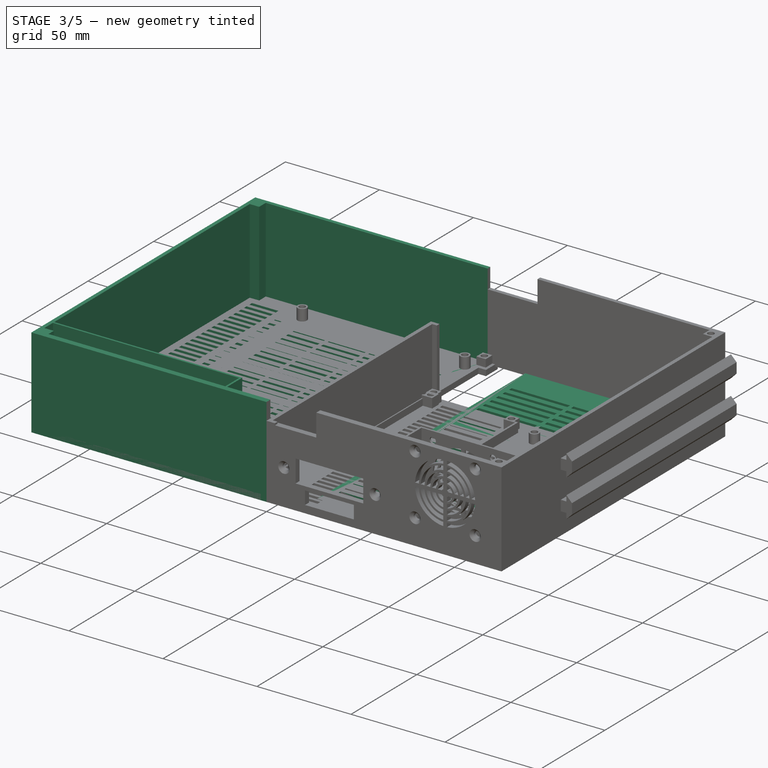
[diagram: stage 3 of 5 — iso view after this stage's code; geometry added in this stage tinted green]
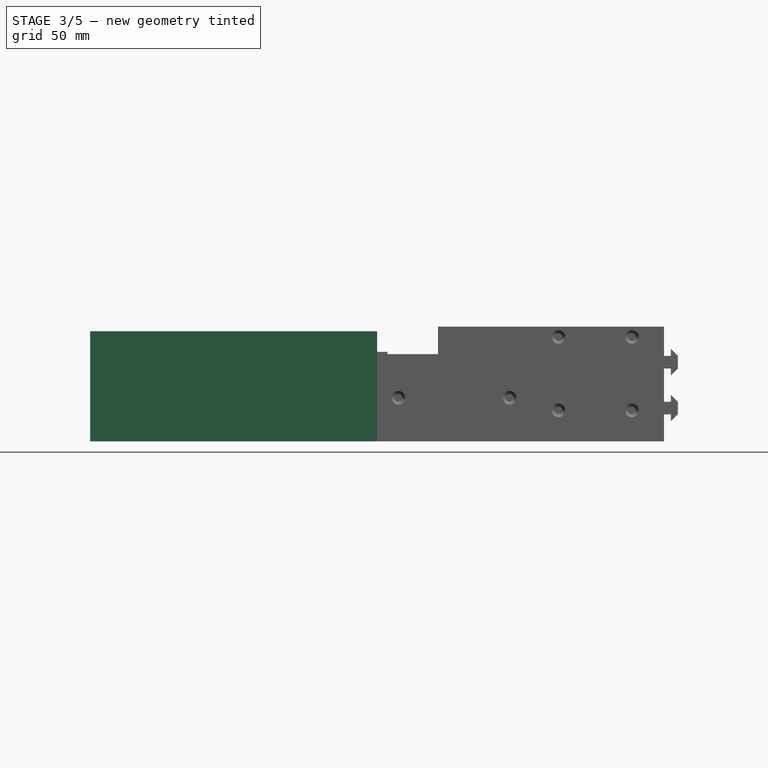
[diagram: stage 3 of 5 — front view after this stage's code; geometry added in this stage tinted green]
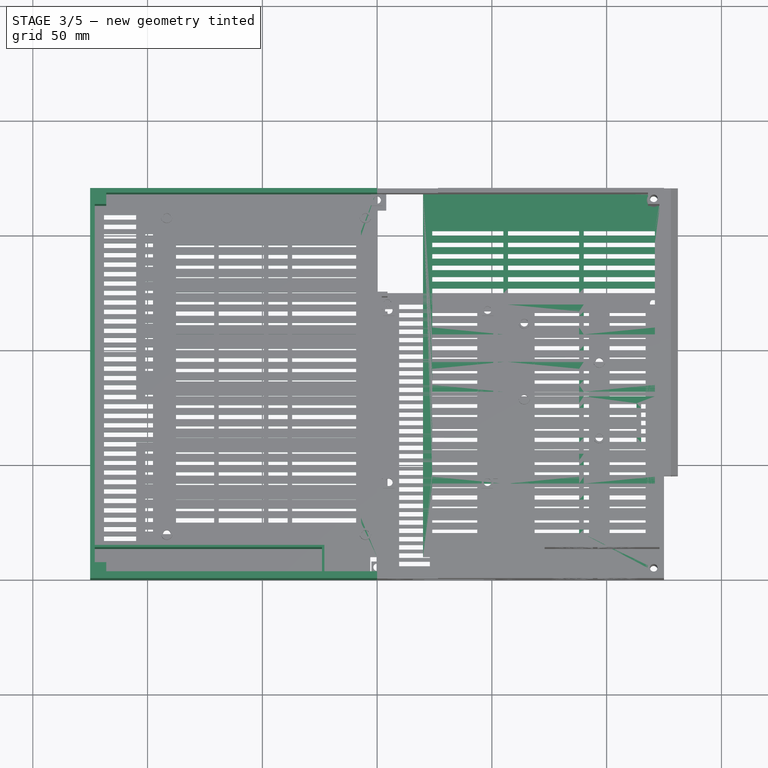
[diagram: stage 3 of 5 — top view after this stage's code; geometry added in this stage tinted green]
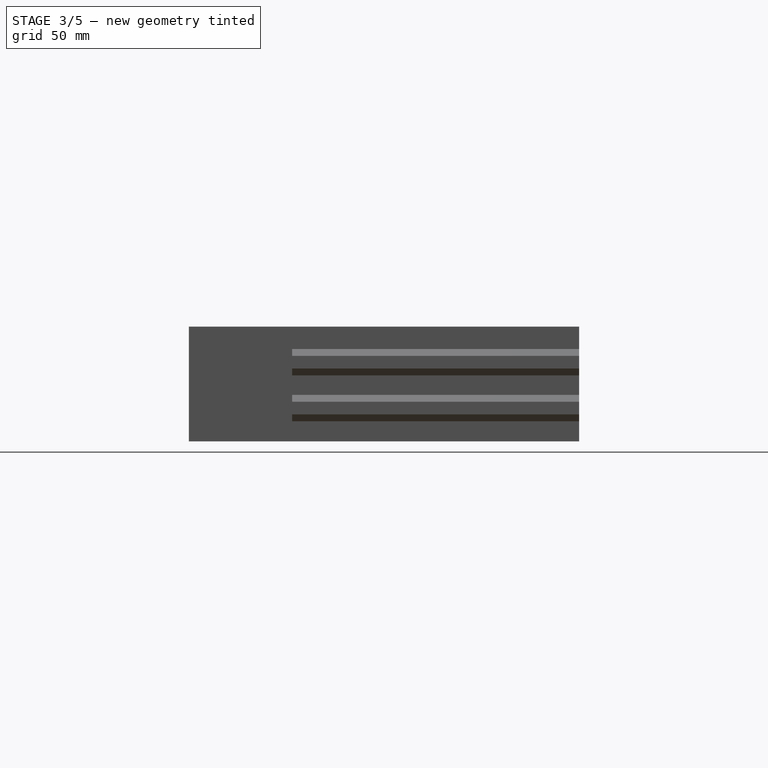
[diagram: stage 3 of 5 — right view after this stage's code; geometry added in this stage tinted green]
FEATURE [Sketcher::SketchObject] Sketch031  label="lid_right001"
  MapMode = 5
  Support = -> [XY_Plane003]
  sketch-geometry (5):
    g0: LineSegment StartX=20 StartY=0 StartZ=0 EndX=125 EndY=0 EndZ=0
    g1: LineSegment StartX=125 StartY=0 StartZ=0 EndX=125 EndY=170 EndZ=0
    g2: LineSegment StartX=125 StartY=170 StartZ=0 EndX=20 EndY=170 EndZ=0
    g3: LineSegment [constr] StartX=0 StartY=0 StartZ=0 EndX=20 EndY=0 EndZ=0
    g4: LineSegment StartX=20 StartY=170 StartZ=0 EndX=20 EndY=0 EndZ=0
  constraints (14):
    c: Coincident(g0,g1)
    c: Coincident(g1,g2)
    c: Horizontal(g0)
    c: Horizontal(g2)
    c: Vertical(g1)
    c: Distance(g1) = 170
    c: Distance(g0) = 105
    c: Horizontal(g3)
    c: Distance(g3) = 20
    c: Coincident(g3,g0)
    c: Coincident(g-1,g3)
    c: Vertical(g4)
    c: Coincident(g2,g4)
    c: Coincident(g0,g4)
FEATURE [PartDesign::Pad] Pad005  label="Pad_lid_right"
  Length = 3
  Length2 = 100
  Profile = -> Sketch031
  Type = 0
FEATURE [Sketcher::SketchObject] Sketch033  label="ventilation"
  ExternalGeometry = -> [Pad005]
  MapMode = 5
  Placement = pos=(0,0,3) rot=(0,0,1;0rad)
  sketch-geometry (16):
    g0: LineSegment StartX=24 StartY=20 StartZ=0 EndX=55 EndY=20 EndZ=0
    g1: LineSegment StartX=55 StartY=20 StartZ=0 EndX=55 EndY=22 EndZ=0
    g2: LineSegment StartX=55 StartY=22 StartZ=0 EndX=24 EndY=22 EndZ=0
    g3: LineSegment StartX=24 StartY=22 StartZ=0 EndX=24 EndY=20 EndZ=0
    g4: LineSegment StartX=57 StartY=20 StartZ=0 EndX=88 EndY=20 EndZ=0
    g5: LineSegment StartX=88 StartY=20 StartZ=0 EndX=88 EndY=22 EndZ=0
    g6: LineSegment StartX=88 StartY=22 StartZ=0 EndX=57 EndY=22 EndZ=0
    g7: LineSegment StartX=57 StartY=22 StartZ=0 EndX=57 EndY=20 EndZ=0
    g8: LineSegment StartX=90 StartY=20 StartZ=0 EndX=121 EndY=20 EndZ=0
    g9: LineSegment StartX=121 StartY=20 StartZ=0 EndX=121 EndY=22 EndZ=0
    g10: LineSegment StartX=121 StartY=22 StartZ=0 EndX=90 EndY=22 EndZ=0
    g11: LineSegment StartX=90 StartY=22 StartZ=0 EndX=90 EndY=20 EndZ=0
    g12: LineSegment [constr] StartX=55 StartY=22 StartZ=0 EndX=57 EndY=22 EndZ=0
    g13: LineSegment [constr] StartX=88 StartY=22 StartZ=0 EndX=90 EndY=22 EndZ=0
    g14: LineSegment [constr] StartX=20 StartY=22 StartZ=0 EndX=24 EndY=22 EndZ=0
    g15: LineSegment [constr] StartX=121 StartY=22 StartZ=0 EndX=125 EndY=22 EndZ=0
  constraints (46):
    c: Coincident(g0,g1)
    c: Coincident(g1,g2)
    c: Coincident(g2,g3)
    c: Coincident(g3,g0)
    c: Horizontal(g0)
    c: Horizontal(g2)
    c: Vertical(g1)
    c: Vertical(g3)
    c: Coincident(g4,g5)
    c: Coincident(g5,g6)
    c: Coincident(g6,g7)
    c: Coincident(g7,g4)
    c: Horizontal(g4)
    c: Horizontal(g6)
    c: Vertical(g5)
    c: Vertical(g7)
    c: Coincident(g8,g9)
    c: Coincident(g9,g10)
    c: Coincident(g10,g11)
    c: Coincident(g11,g8)
    c: Horizontal(g8)
    c: Horizontal(g10)
    c: Vertical(g9)
    c: Vertical(g11)
    c: Equal(g1,g7)
    c: Equal(g7,g11)
    c: Equal(g2,g6)
    c: Equal(g6,g10)
    c: Equal(g13,g12)
    c: Horizontal(g12)
    c: Horizontal(g13)
    c: Distance(g12) = 2
    c: Distance(g9) = 2
    c: Coincident(g12,g1)
    c: Coincident(g6,g12)
    c: Coincident(g13,g5)
    c: Coincident(g13,g10)
    c: Horizontal(g15)
    c: Coincident(g15,g9)
    c: Distance(g15) = 4
    c: Horizontal(g14)
    c: Distance(g14) = 4
    c: Coincident(g14,g2)
    c: PointOnObject(g15,g-4)
    c: PointOnObject(g14,g-3)
    c: DistanceY(g-3,g0) = 20
FEATURE [PartDesign::Pocket] Pocket006  label="Pocket_ventilation"
  BaseFeature = -> Pad005
  Length = 5
  Length2 = 100
  Profile = -> Sketch033
  Type = 1
FEATURE [PartDesign::LinearPattern] LinearPattern002
  BaseFeature = -> Pocket006
  Direction = -> Y_Axis003
  Length = 130
  Occurrences = 27
  Originals = -> [Pocket006]
FEATURE [Sketcher::SketchObject] Sketch036  label="walls_left"
  MapMode = 5
  Support = -> [XY_Plane005]
  sketch-geometry (26):
    g0: LineSegment StartX=-123 StartY=14.5 StartZ=0 EndX=-123 EndY=163 EndZ=0
    g1: LineSegment StartX=-118 StartY=168 StartZ=0 EndX=0 EndY=168 EndZ=0
    g2: LineSegment StartX=0 StartY=168 StartZ=0 EndX=0 EndY=170 EndZ=0
    g3: LineSegment StartX=0 StartY=170 StartZ=0 EndX=-125 EndY=170 EndZ=0
    g4: LineSegment StartX=-125 StartY=170 StartZ=0 EndX=-125 EndY=0 EndZ=0
    g5: LineSegment StartX=-125 StartY=0 StartZ=0 EndX=0 EndY=0 EndZ=0
    g6: LineSegment StartX=0 StartY=0 StartZ=0 EndX=0 EndY=3 EndZ=0
    g7: LineSegment StartX=-118 StartY=3 StartZ=0 EndX=-24 EndY=3 EndZ=0
    g8: LineSegment StartX=-24 StartY=3 StartZ=0 EndX=-24 EndY=13.5 EndZ=0
    g9: LineSegment StartX=-24 StartY=13.5 StartZ=0 EndX=-123 EndY=13.5 EndZ=0
    g10: LineSegment StartX=-123 StartY=13.5 StartZ=0 EndX=-123 EndY=7 EndZ=0
    g11: LineSegment StartX=-123 StartY=14.5 StartZ=0 EndX=-23 EndY=14.5 EndZ=0
    g12: LineSegment StartX=-23 StartY=14.5 StartZ=0 EndX=-23 EndY=3 EndZ=0
    g13: LineSegment StartX=-23 StartY=3 StartZ=0 EndX=0 EndY=3 EndZ=0
    g14: LineSegment [constr] StartX=-125 StartY=170 StartZ=0 EndX=-118 EndY=170 EndZ=0
    g15: LineSegment [constr] StartX=-118 StartY=170 StartZ=0 EndX=-118 EndY=163 EndZ=0
    g16: LineSegment [constr] StartX=-118 StartY=163 StartZ=0 EndX=-125 EndY=163 EndZ=0
    g17: LineSegment [constr] StartX=-125 StartY=163 StartZ=0 EndX=-125 EndY=170 EndZ=0
    g18: LineSegment StartX=-123 StartY=163 StartZ=0 EndX=-118 EndY=163 EndZ=0
    g19: LineSegment StartX=-118 StartY=163 StartZ=0 EndX=-118 EndY=168 EndZ=0
    g20: LineSegment [constr] StartX=-125 StartY=0 StartZ=0 EndX=-118 EndY=0 EndZ=0
    g21: LineSegment [constr] StartX=-118 StartY=0 StartZ=0 EndX=-118 EndY=7 EndZ=0
    g22: LineSegment [constr] StartX=-118 StartY=7 StartZ=0 EndX=-125 EndY=7 EndZ=0
    g23: LineSegment [constr] StartX=-125 StartY=7 StartZ=0 EndX=-125 EndY=0 EndZ=0
    g24: LineSegment StartX=-123 StartY=7 StartZ=0 EndX=-118 EndY=7 EndZ=0
    g25: LineSegment StartX=-118 StartY=7 StartZ=0 EndX=-118 EndY=3 EndZ=0
  constraints (73):
    c: Coincident(g1,g2)
    c: Coincident(g2,g3)
    c: Coincident(g3,g4)
    c: Coincident(g4,g5)
    c: Coincident(g5,g6)
    c: Vertical(g6)
    c: Vertical(g4)
    c: Vertical(g0)
    c: Horizontal(g5)
    c: Horizontal(g1)
    c: Horizontal(g3)
    c: Distance(g6) = 3
    c: Equal(g3,g5)
    c: Distance(g0,g4) = 2
    c: Distance(g5) = 125
    c: Distance(g4) = 170
    c: Coincident(g5,g-1)
    c: Coincident(g7,g8)
    c: Coincident(g8,g9)
    c: Coincident(g9,g10)
    c: Horizontal(g7)
    c: Horizontal(g9)
    c: Vertical(g8)
    c: Vertical(g10)
    c: DistanceY(g9,g0) = 1
    c: DistanceY(g4,g7) = 3
    c: Coincident(g11,g12)
    c: Coincident(g12,g13)
    c: Horizontal(g13)
    c: Horizontal(g11)
    c: Vertical(g12)
    c: Coincident(g0,g11)
    c: DistanceX(g8,g11) = 1
    c: Coincident(g13,g6)
    c: Distance(g13) = 23
    c: Vertical(g2)
    c: Distance(g2) = 2
    c: Coincident(g14,g15)
    c: Coincident(g15,g16)
    c: Coincident(g16,g17)
    c: Coincident(g17,g14)
    c: Horizontal(g14)
    c: Horizontal(g16)
    c: Vertical(g15)
    c: Vertical(g17)
    c: Equal(g14,g17)
    c: Distance(g14) = 7
    c: Coincident(g14,g3)
    c: PointOnObject(g0,g16)
    c: PointOnObject(g1,g15)
    c: Coincident(g18,g19)
    c: Coincident(g15,g18)
    c: Coincident(g19,g1)
    c: Coincident(g18,g0)
    c: Distance(g9,g4) = 2
    c: Distance(g8) = 10.5
    c: Coincident(g20,g21)
    c: Coincident(g21,g22)
    c: Coincident(g22,g23)
    c: Coincident(g23,g20)
    c: Horizontal(g20)
    c: Horizontal(g22)
    c: Vertical(g21)
    c: Vertical(g23)
    c: Equal(g23,g20)
    c: Distance(g23) = 7
    c: Coincident(g20,g4)
    c: PointOnObject(g10,g22)
    c: PointOnObject(g7,g21)
    c: Coincident(g24,g25)
    c: Coincident(g24,g10)
    c: Coincident(g24,g21)
    c: Coincident(g25,g7)
FEATURE [PartDesign::Pad] Pad007
  Length = 48
  Length2 = 100
  Profile = -> Sketch036
  Type = 0
FEATURE [Sketcher::SketchObject] Sketch040  label="mount left"
  ExternalGeometry = -> [Pad007]
  MapMode = 5
  Placement = pos=(0,170,0) rot=(0,0.707107,0.707107;3.14159rad)
  sketch-geometry (27):
    g0: LineSegment StartX=125 StartY=29.75 StartZ=0 EndX=128 EndY=29.75 EndZ=0
    g1: LineSegment StartX=128 StartY=29.75 StartZ=0 EndX=128 EndY=26.75 EndZ=0
    g2: LineSegment StartX=128 StartY=26.75 StartZ=0 EndX=131 EndY=29.75 EndZ=0
    g3: LineSegment StartX=131 StartY=29.75 StartZ=0 EndX=131 EndY=35.25 EndZ=0
    g4: LineSegment StartX=131 StartY=35.25 StartZ=0 EndX=128 EndY=38.25 EndZ=0
    g5: LineSegment StartX=128 StartY=38.25 StartZ=0 EndX=128 EndY=35.25 EndZ=0
    g6: LineSegment StartX=128 StartY=35.25 StartZ=0 EndX=125 EndY=35.25 EndZ=0
    g7: LineSegment StartX=125 StartY=35.25 StartZ=0 EndX=125 EndY=29.75 EndZ=0
    g8: LineSegment [constr] StartX=125 StartY=29.75 StartZ=0 EndX=125 EndY=32.5 EndZ=0
    g9: LineSegment [constr] StartX=125 StartY=32.5 StartZ=0 EndX=125 EndY=35.25 EndZ=0
    g10: LineSegment StartX=125 StartY=9.75 StartZ=0 EndX=128 EndY=9.75 EndZ=0
    g11: LineSegment StartX=128 StartY=9.75 StartZ=0 EndX=128 EndY=6.75 EndZ=0
    g12: LineSegment StartX=128 StartY=6.75 StartZ=0 EndX=131 EndY=9.75 EndZ=0
    g13: LineSegment StartX=131 StartY=9.75 StartZ=0 EndX=131 EndY=15.25 EndZ=0
    g14: LineSegment StartX=131 StartY=15.25 StartZ=0 EndX=128 EndY=18.25 EndZ=0
    g15: LineSegment StartX=128 StartY=18.25 StartZ=0 EndX=128 EndY=15.25 EndZ=0
    g16: LineSegment StartX=128 StartY=15.25 StartZ=0 EndX=125 EndY=15.25 EndZ=0
    g17: LineSegment StartX=125 StartY=15.25 StartZ=0 EndX=125 EndY=9.75 EndZ=0
    g18: LineSegment [constr] StartX=125 StartY=9.75 StartZ=0 EndX=125 EndY=12.5 EndZ=0
    g19: LineSegment [constr] StartX=125 StartY=12.5 StartZ=0 EndX=125 EndY=15.25 EndZ=0
    g20: LineSegment [constr] StartX=125 StartY=2.5 StartZ=0 EndX=125 EndY=12.5 EndZ=0
    g21: LineSegment [constr] StartX=125 StartY=12.5 StartZ=0 EndX=125 EndY=22.5 EndZ=0
    g22: LineSegment [constr] StartX=125 StartY=22.5 StartZ=0 EndX=125 EndY=32.5 EndZ=0
    g23: LineSegment [constr] StartX=125 StartY=32.5 StartZ=0 EndX=125 EndY=42.5 EndZ=0
    g24: LineSegment [constr] StartX=125 StartY=48 StartZ=0 EndX=125 EndY=42.5 EndZ=0
    g25: LineSegment [constr] StartX=125 StartY=0 StartZ=0 EndX=125 EndY=-3 EndZ=0
    g26: LineSegment [constr] StartX=125 StartY=-3 StartZ=0 EndX=125 EndY=2.5 EndZ=0
  constraints (77):
    c: Coincident(g0,g7)
    c: Coincident(g7,g6)
    c: Coincident(g1,g2)
    c: Coincident(g1,g0)
    c: Coincident(g5,g6)
    c: Coincident(g4,g5)
    c: Coincident(g2,g3)
    c: Coincident(g3,g4)
    c: Vertical(g7)
    c: Vertical(g3)
    c: Vertical(g5)
    c: Vertical(g1)
    c: Horizontal(g6)
    c: Horizontal(g0)
    c: Angle(g5,g4) = 0.785398
    c: Angle(g2,g1) = 0.785398
    c: Distance(g6) = 3
    c: Equal(g3,g7)
    c: Equal(g5,g1)
    c: Distance(g5,g3) = 3
    c: Equal(g6,g0)
    c: Coincident(g8,g9)
    c: Vertical(g9)
    c: Equal(g9,g8)
    c: Distance(g9,g8) = 5.5
    c: Coincident(g9,g6)
    c: Coincident(g8,g0)
    c: Coincident(g10,g17)
    c: Coincident(g17,g16)
    c: Coincident(g11,g12)
    c: Coincident(g11,g10)
    c: Coincident(g15,g16)
    c: Coincident(g14,g15)
    c: Coincident(g12,g13)
    c: Coincident(g13,g14)
    c: Vertical(g17)
    c: Vertical(g13)
    c: Vertical(g15)
    c: Vertical(g11)
    c: Horizontal(g16)
    c: Horizontal(g10)
    c: Angle(g15,g14) = 0.785398
    c: Angle(g12,g11) = 0.785398
    c: Equal(g6,g16) = 2
    c: Equal(g13,g17)
    c: Equal(g15,g11)
    c: Distance(g15,g13) = 3
    c: Equal(g16,g10)
    c: Coincident(g18,g19)
    c: Vertical(g19)
    c: Equal(g19,g18)
    c: Distance(g19,g18) = 5.5
    c: Coincident(g19,g16)
    c: Coincident(g18,g10)
    c: Coincident(g20,g21)
    c: Coincident(g21,g22)
    c: Coincident(g22,g23)
    c: Vertical(g23)
    c: Vertical(g22)
    c: Vertical(g21)
    c: Vertical(g20)
    c: Equal(g22,g23)
    c: Equal(g23,g21)
    c: Equal(g21,g20)
    c: Distance(g23) = 10
    c: Coincident(g8,g22)
    c: Coincident(g20,g18)
    c: Vertical(g24)
    c: Coincident(g25,g26)
    c: Equal(g24,g26)
    c: Distance(g25) = 3
    c: Vertical(g25)
    c: Coincident(g20,g26)
    c: Coincident(g24,g23)
    c: Distance(g24) = 5.5
    c: Coincident(g-3,g25)
    c: Coincident(g24,g-3)
FEATURE [Sketcher::SketchObject] Sketch042  label="lid_left001"
  MapMode = 5
  Support = -> [XY_Plane006]
  sketch-geometry (8):
    g0: LineSegment StartX=0 StartY=0 StartZ=0 EndX=-105 EndY=0 EndZ=0
    g1: LineSegment StartX=-105 StartY=0 StartZ=0 EndX=-105 EndY=170 EndZ=0
    g2: LineSegment StartX=-105 StartY=170 StartZ=0 EndX=0 EndY=170 EndZ=0
    g3: LineSegment StartX=0 StartY=170 StartZ=0 EndX=0 EndY=0 EndZ=0
    g4: LineSegment [constr] StartX=-105 StartY=0 StartZ=0 EndX=20 EndY=0 EndZ=0
    g5: LineSegment [constr] StartX=20 StartY=0 StartZ=0 EndX=20 EndY=170 EndZ=0
    g6: LineSegment [constr] StartX=20 StartY=170 StartZ=0 EndX=-105 EndY=170 EndZ=0
    g7: LineSegment [constr] StartX=-105 StartY=170 StartZ=0 EndX=-105 EndY=0 EndZ=0
  constraints (22):
    c: Coincident(g0,g1)
    c: Coincident(g1,g2)
    c: Coincident(g2,g3)
    c: Coincident(g3,g0)
    c: Horizontal(g2)
    c: Vertical(g1)
    c: Vertical(g3)
    c: Distance(g1) = 170
    c: Coincident(g0,g-1)
    c: Coincident(g4,g5)
    c: Coincident(g5,g6)
    c: Coincident(g6,g7)
    c: Coincident(g7,g4)
    c: Horizontal(g4)
    c: Horizontal(g6)
    c: Vertical(g5)
    c: Vertical(g7)
    c: Equal(g1,g7)
    c: DistanceX(g6,g6) = 125
    c: Coincident(g0,g4)
    c: Distance(g0,g4) = 20
    c: Horizontal(g0)
FEATURE [PartDesign::Pad] Pad010
  Length = 3
  Length2 = 100
  Profile = -> Sketch042
  Type = 0
FEATURE [Sketcher::SketchObject] Sketch044  label="ventilation_left"
  MapMode = 5
  Placement = pos=(0,0,3) rot=(0,0,1;0rad)
  sketch-geometry (16):
    g0: LineSegment StartX=-101 StartY=22 StartZ=0 EndX=-71 EndY=22 EndZ=0
    g1: LineSegment StartX=-71 StartY=22 StartZ=0 EndX=-71 EndY=20 EndZ=0
    g2: LineSegment StartX=-71 StartY=20 StartZ=0 EndX=-101 EndY=20 EndZ=0
    g3: LineSegment StartX=-101 StartY=20 StartZ=0 EndX=-101 EndY=22 EndZ=0
    g4: LineSegment StartX=-69 StartY=22 StartZ=0 EndX=-39 EndY=22 EndZ=0
    g5: LineSegment StartX=-39 StartY=22 StartZ=0 EndX=-39 EndY=20 EndZ=0
    g6: LineSegment StartX=-39 StartY=20 StartZ=0 EndX=-69 EndY=20 EndZ=0
    g7: LineSegment StartX=-69 StartY=20 StartZ=0 EndX=-69 EndY=22 EndZ=0
    g8: LineSegment StartX=-37 StartY=22 StartZ=0 EndX=-7 EndY=22 EndZ=0
    g9: LineSegment StartX=-7 StartY=22 StartZ=0 EndX=-7 EndY=20 EndZ=0
    g10: LineSegment StartX=-7 StartY=20 StartZ=0 EndX=-37 EndY=20 EndZ=0
    g11: LineSegment StartX=-37 StartY=20 StartZ=0 EndX=-37 EndY=22 EndZ=0
    g12: LineSegment [constr] StartX=-71 StartY=20 StartZ=0 EndX=-69 EndY=20 EndZ=0
    g13: LineSegment [constr] StartX=-39 StartY=20 StartZ=0 EndX=-37 EndY=20 EndZ=0
    g14: LineSegment [constr] StartX=-105 StartY=20 StartZ=0 EndX=-101 EndY=20 EndZ=0
    g15: LineSegment [constr] StartX=-7 StartY=20 StartZ=0 EndX=0 EndY=20 EndZ=0
  constraints (43):
    c: Coincident(g0,g1)
    c: Coincident(g1,g2)
    c: Coincident(g2,g3)
    c: Coincident(g3,g0)
    c: Horizontal(g0)
    c: Horizontal(g2)
    c: Vertical(g1)
    c: Vertical(g3)
    c: Coincident(g4,g5)
    c: Coincident(g5,g6)
    c: Coincident(g6,g7)
    c: Coincident(g7,g4)
    c: Horizontal(g4)
    c: Horizontal(g6)
    c: Vertical(g5)
    c: Vertical(g7)
    c: Coincident(g8,g9)
    c: Coincident(g9,g10)
    c: Coincident(g10,g11)
    c: Coincident(g11,g8)
    c: Horizontal(g8)
    c: Horizontal(g10)
    c: Vertical(g9)
    c: Vertical(g11)
    c: Horizontal(g12)
    c: Horizontal(g13)
    c: Distance(g12) = 2
    c: Equal(g13,g12)
    c: Coincident(g12,g1)
    c: Coincident(g6,g12)
    c: Coincident(g5,g13)
    c: Coincident(g10,g13)
    c: Equal(g2,g6)
    c: Equal(g6,g10)
    c: Equal(g1,g7)
    c: Equal(g7,g11)
    c: Distance(g3) = 2
    c: Horizontal(g15)
    c: Coincident(g15,g9)
    c: Distance(g15) = 7
    c: Horizontal(g14)
    c: Distance(g14) = 4
    c: Coincident(g14,g2)
FEATURE [PartDesign::Pocket] Pocket012
  BaseFeature = -> Pad010
  Length = 5
  Length2 = 100
  Profile = -> Sketch044
  Type = 0
FEATURE [PartDesign::LinearPattern] LinearPattern003
  BaseFeature = -> Pocket012
  Direction = -> Pocket012 [Edge7]
  Length = 130
  Occurrences = 27
  Originals = -> [Pocket012]
  Reversed = true
FEATURE [Sketcher::SketchObject] Sketch047  label="Board_standoffs"
  ExternalGeometry = -> [Pad006]
  MapMode = 5
  Placement = pos=(0,0,3) rot=(0,0,1;0rad)
  Support = -> [Pad006]
  sketch-geometry (12):
    g0: LineSegment [constr] StartX=-91.6177 StartY=20 StartZ=0 EndX=-5.11775 EndY=20 EndZ=0
    g1: LineSegment [constr] StartX=-5.11775 StartY=20 StartZ=0 EndX=-5.11775 EndY=158 EndZ=0
    g2: LineSegment [constr] StartX=-5.11775 StartY=158 StartZ=0 EndX=-91.6177 EndY=158 EndZ=0
    g3: LineSegment [constr] StartX=-91.6177 StartY=158 StartZ=0 EndX=-91.6177 EndY=20 EndZ=0
    g4: LineSegment [constr] StartX=-95.6177 StartY=16 StartZ=0 EndX=-0.61775 EndY=16 EndZ=0
    g5: LineSegment [constr] StartX=-0.61775 StartY=16 StartZ=0 EndX=-0.61775 EndY=163 EndZ=0
    g6: LineSegment [constr] StartX=-0.61775 StartY=163 StartZ=0 EndX=-95.6177 EndY=163 EndZ=0
    g7: LineSegment [constr] StartX=-95.6177 StartY=163 StartZ=0 EndX=-95.6177 EndY=16 EndZ=0
    g8: Circle CenterX=-91.6177 CenterY=158 CenterZ=0 NormalX=0 NormalY=0 NormalZ=1 AngleXU=0 Radius=2.5
    g9: Circle CenterX=-5.11775 CenterY=158 CenterZ=0 NormalX=0 NormalY=0 NormalZ=1 AngleXU=0 Radius=2.5
    g10: Circle CenterX=-91.6177 CenterY=20 CenterZ=0 NormalX=0 NormalY=0 NormalZ=1 AngleXU=0 Radius=2.5
    g11: Circle CenterX=-5.11775 CenterY=20 CenterZ=0 NormalX=0 NormalY=0 NormalZ=1 AngleXU=0 Radius=2.5
  constraints (31):
    c: Coincident(g0,g1)
    c: Coincident(g1,g2)
    c: Coincident(g2,g3)
    c: Coincident(g3,g0)
    c: Horizontal(g0)
    c: Horizontal(g2)
    c: Vertical(g1)
    c: Vertical(g3)
    c: Coincident(g4,g5)
    c: Coincident(g5,g6)
    c: Coincident(g6,g7)
    c: Coincident(g7,g4)
    c: Horizontal(g4)
    c: Horizontal(g6)
    c: Vertical(g5)
    c: Vertical(g7)
    c: Distance(g4) = 95
    c: Distance(g0) = 86.5
    c: Distance(g5) = 147
    c: Distance(g1) = 138
    c: DistanceX(g0,g4) = 4.5
    c: DistanceY(g4,g0) = 4
    c: Diameter(g8) = 5
    c: Equal(g9,g8)
    c: Equal(g8,g10)
    c: Equal(g10,g11)
    c: Coincident(g8,g2)
    c: Coincident(g9,g1)
    c: Coincident(g10,g0)
    c: Coincident(g11,g0)
    c: DistanceY(g-4,g10) = 20
FEATURE [Sketcher::SketchObject] Sketch052  label="y_axis_belt_tensioner_left"
  ExternalGeometry = -> [LinearPattern003]
  MapMode = 5
  Placement = pos=(0,0,3) rot=(0,0,1;0rad)
  Support = -> [LinearPattern003]
  sketch-geometry (4):
    g0: LineSegment StartX=-3 StartY=0 StartZ=0 EndX=0 EndY=0 EndZ=0
    g1: LineSegment StartX=0 StartY=0 StartZ=0 EndX=0 EndY=10 EndZ=0
    g2: LineSegment StartX=0 StartY=10 StartZ=0 EndX=-3 EndY=10 EndZ=0
    g3: LineSegment StartX=-3 StartY=10 StartZ=0 EndX=-3 EndY=0 EndZ=0
  constraints (11):
    c: Coincident(g0,g1)
    c: Coincident(g1,g2)
    c: Coincident(g2,g3)
    c: Coincident(g3,g0)
    c: Horizontal(g0)
    c: Horizontal(g2)
    c: Vertical(g1)
    c: Vertical(g3)
    c: Coincident(g-1,g0)
    c: Distance(g0) = 3
    c: Distance(g-3,g1) = 160
FEATURE [PartDesign::Pocket] Pocket018
  BaseFeature = -> LinearPattern003
  Length = 5
  Length2 = 100
  Profile = -> Sketch052
  Type = 2
FEATURE [Sketcher::SketchObject] Sketch059  label="y_axis_belt_tensioner_right"
  ExternalGeometry = -> [LinearPattern002]
  MapMode = 5
  Placement = pos=(0,0,3) rot=(0,0,1;0rad)
  sketch-geometry (4):
    g0: LineSegment StartX=20 StartY=0 StartZ=0 EndX=23 EndY=0 EndZ=0
    g1: LineSegment StartX=23 StartY=0 StartZ=0 EndX=23 EndY=10 EndZ=0
    g2: LineSegment StartX=23 StartY=10 StartZ=0 EndX=20 EndY=10 EndZ=0
    g3: LineSegment StartX=20 StartY=10 StartZ=0 EndX=20 EndY=0 EndZ=0
  constraints (11):
    c: Coincident(g0,g1)
    c: Coincident(g1,g2)
    c: Coincident(g2,g3)
    c: Coincident(g3,g0)
    c: Horizontal(g0)
    c: Horizontal(g2)
    c: Vertical(g1)
    c: Vertical(g3)
    c: Distance(g0) = 3
    c: Distance(g1) = 10
    c: Coincident(g-3,g0)
FEATURE [PartDesign::Pocket] Pocket022
  BaseFeature = -> LinearPattern002
  Length = 5
  Length2 = 100
  Profile = -> Sketch059
  Type = 1
FEATURE [Sketcher::SketchObject] Sketch106
  ExternalGeometry = -> [Pocket022]
  MapMode = 5
  Placement = pos=(0,0,3) rot=(0,0,1;0rad)
  sketch-geometry (5):
    g0: LineSegment StartX=125 StartY=60 StartZ=0 EndX=115 EndY=60 EndZ=0
    g1: LineSegment StartX=115 StartY=60 StartZ=0 EndX=115 EndY=77 EndZ=0
    g2: LineSegment StartX=115 StartY=77 StartZ=0 EndX=121 EndY=77 EndZ=0
    g3: LineSegment StartX=121 StartY=77 StartZ=0 EndX=125 EndY=77 EndZ=0
    g4: LineSegment StartX=125 StartY=77 StartZ=0 EndX=125 EndY=60 EndZ=0
  constraints (14):
    c: Coincident(g0,g1)
    c: Coincident(g1,g2)
    c: Horizontal(g0)
    c: Horizontal(g2)
    c: Vertical(g1)
    c: Distance(g2) = 6
    c: Coincident(g3,g4)
    c: Coincident(g3,g2)
    c: Horizontal(g3)
    c: Vertical(g4)
    c: Coincident(g0,g4)
    c: PointOnObject(g3,g-3)
    c: Coincident(g2,g-4)
    c: PointOnObject(g0,g-5)
FEATURE [PartDesign::Pocket] Pocket037
  BaseFeature = -> Pocket022
  Length = 5
  Length2 = 100
  Profile = -> Sketch106
  Type = 1
FEATURE [Sketcher::SketchObject] Sketch107
  ExternalGeometry = -> [Pocket037]
  MapMode = 5
  Placement = pos=(0,0,3) rot=(0,0,1;0rad)
  sketch-geometry (16):
    g0: LineSegment StartX=113 StartY=77 StartZ=0 EndX=115 EndY=77 EndZ=0
    g1: LineSegment StartX=115 StartY=77 StartZ=0 EndX=115 EndY=75 EndZ=0
    g2: LineSegment StartX=115 StartY=75 StartZ=0 EndX=113 EndY=75 EndZ=0
    g3: LineSegment StartX=113 StartY=75 StartZ=0 EndX=113 EndY=77 EndZ=0
    g4: LineSegment StartX=113 StartY=72 StartZ=0 EndX=115 EndY=72 EndZ=0
    g5: LineSegment StartX=115 StartY=72 StartZ=0 EndX=115 EndY=70 EndZ=0
    g6: LineSegment StartX=115 StartY=70 StartZ=0 EndX=113 EndY=70 EndZ=0
    g7: LineSegment StartX=113 StartY=70 StartZ=0 EndX=113 EndY=72 EndZ=0
    g8: LineSegment StartX=113 StartY=67 StartZ=0 EndX=115 EndY=67 EndZ=0
    g9: LineSegment StartX=115 StartY=67 StartZ=0 EndX=115 EndY=65 EndZ=0
    g10: LineSegment StartX=115 StartY=65 StartZ=0 EndX=113 EndY=65 EndZ=0
    g11: LineSegment StartX=113 StartY=65 StartZ=0 EndX=113 EndY=67 EndZ=0
    g12: LineSegment StartX=115 StartY=60 StartZ=0 EndX=113 EndY=60 EndZ=0
    g13: LineSegment StartX=113 StartY=60 StartZ=0 EndX=113 EndY=62 EndZ=0
    g14: LineSegment StartX=113 StartY=62 StartZ=0 EndX=115 EndY=62 EndZ=0
    g15: LineSegment StartX=115 StartY=62 StartZ=0 EndX=115 EndY=60 EndZ=0
  constraints (40):
    c: Coincident(g0,g1)
    c: Coincident(g1,g2)
    c: Coincident(g2,g3)
    c: Coincident(g3,g0)
    c: Horizontal(g0)
    c: Horizontal(g2)
    c: Coincident(g4,g5)
    c: Coincident(g5,g6)
    c: Coincident(g6,g7)
    c: Coincident(g7,g4)
    c: Horizontal(g4)
    c: Horizontal(g6)
    c: Coincident(g8,g9)
    c: Coincident(g9,g10)
    c: Coincident(g10,g11)
    c: Coincident(g11,g8)
    c: Horizontal(g8)
    c: Horizontal(g10)
    c: Equal(g0,g3)
    c: Equal(g4,g7)
    c: Equal(g8,g11)
    c: Coincident(g0,g-9)
    c: Coincident(g1,g-3)
    c: Vertical(g3)
    c: Coincident(g8,g-6)
    c: Coincident(g9,g-7)
    c: Vertical(g11)
    c: Coincident(g4,g-4)
    c: Coincident(g5,g-5)
    c: Vertical(g7)
    c: Coincident(g12,g13)
    c: Coincident(g13,g14)
    c: Coincident(g14,g15)
    c: Coincident(g15,g12)
    c: Horizontal(g12)
    c: Horizontal(g14)
    c: Vertical(g13)
    c: Equal(g14,g13)
    c: Coincident(g-10,g12)
    c: Coincident(g-8,g14)
FEATURE [PartDesign::Pad] Pad037
  BaseFeature = -> Pocket037
  Length = 3
  Length2 = 100
  Profile = -> Sketch107
  Reversed = true
  Type = 0
FEATURE [Sketcher::SketchObject] Sketch108
  MapMode = 5
  Placement = pos=(0,0,3) rot=(0,0,1;0rad)
  sketch-geometry (4):
    g0: LineSegment StartX=-105 StartY=60 StartZ=0 EndX=-95 EndY=60 EndZ=0
    g1: LineSegment StartX=-95 StartY=60 StartZ=0 EndX=-95 EndY=77 EndZ=0
    g2: LineSegment StartX=-95 StartY=77 StartZ=0 EndX=-105 EndY=77 EndZ=0
    g3: LineSegment StartX=-105 StartY=77 StartZ=0 EndX=-105 EndY=60 EndZ=0
  constraints (9):
    c: Coincident(g0,g1)
    c: Coincident(g1,g2)
    c: Horizontal(g0)
    c: Horizontal(g2)
    c: Vertical(g1)
    c: Distance(g2) = 10
    c: Coincident(g0,g3)
    c: Coincident(g2,g3)
    c: Vertical(g3)
FEATURE [PartDesign::Pocket] Pocket038
  BaseFeature = -> Pocket018
  Length = 5
  Length2 = 100
  Profile = -> Sketch108
  Type = 1
FEATURE [Sketcher::SketchObject] Sketch109
  ExternalGeometry = -> [Pocket038]
  MapMode = 5
  Placement = pos=(0,0,3) rot=(0,0,1;0rad)
  Support = -> [Pocket038]
  sketch-geometry (16):
    g0: LineSegment StartX=-95 StartY=75 StartZ=0 EndX=-93 EndY=75 EndZ=0
    g1: LineSegment StartX=-93 StartY=75 StartZ=0 EndX=-93 EndY=77 EndZ=0
    g2: LineSegment StartX=-93 StartY=77 StartZ=0 EndX=-95 EndY=77 EndZ=0
    g3: LineSegment StartX=-95 StartY=77 StartZ=0 EndX=-95 EndY=75 EndZ=0
    g4: LineSegment StartX=-95 StartY=70 StartZ=0 EndX=-93 EndY=70 EndZ=0
    g5: LineSegment StartX=-93 StartY=70 StartZ=0 EndX=-93 EndY=72 EndZ=0
    g6: LineSegment StartX=-93 StartY=72 StartZ=0 EndX=-95 EndY=72 EndZ=0
    g7: LineSegment StartX=-95 StartY=72 StartZ=0 EndX=-95 EndY=70 EndZ=0
    g8: LineSegment StartX=-95 StartY=65 StartZ=0 EndX=-93 EndY=65 EndZ=0
    g9: LineSegment StartX=-93 StartY=65 StartZ=0 EndX=-93 EndY=67 EndZ=0
    g10: LineSegment StartX=-93 StartY=67 StartZ=0 EndX=-95 EndY=67 EndZ=0
    g11: LineSegment StartX=-95 StartY=67 StartZ=0 EndX=-95 EndY=65 EndZ=0
    g12: LineSegment StartX=-95 StartY=60 StartZ=0 EndX=-93 EndY=60 EndZ=0
    g13: LineSegment StartX=-93 StartY=60 StartZ=0 EndX=-93 EndY=62 EndZ=0
    g14: LineSegment StartX=-93 StartY=62 StartZ=0 EndX=-95 EndY=62 EndZ=0
    g15: LineSegment StartX=-95 StartY=62 StartZ=0 EndX=-95 EndY=60 EndZ=0
  constraints (40):
    c: Coincident(g0,g1)
    c: Coincident(g1,g2)
    c: Coincident(g2,g3)
    c: Coincident(g3,g0)
    c: Horizontal(g0)
    c: Horizontal(g2)
    c: Vertical(g1)
    c: Coincident(g4,g5)
    c: Coincident(g5,g6)
    c: Coincident(g6,g7)
    c: Coincident(g7,g4)
    c: Horizontal(g4)
    c: Horizontal(g6)
    c: Vertical(g5)
    c: Coincident(g8,g9)
    c: Coincident(g9,g10)
    c: Coincident(g10,g11)
    c: Coincident(g11,g8)
    c: Horizontal(g8)
    c: Horizontal(g10)
    c: Vertical(g9)
    c: Coincident(g12,g13)
    c: Coincident(g13,g14)
    c: Coincident(g14,g15)
    c: Coincident(g15,g12)
    c: Horizontal(g12)
    c: Horizontal(g14)
    c: Vertical(g13)
    c: Equal(g2,g3)
    c: Equal(g6,g7)
    c: Equal(g10,g11)
    c: Equal(g14,g15)
    c: Coincident(g14,g-8)
    c: Coincident(g12,g-9)
    c: Coincident(g-6,g10)
    c: Coincident(g8,g-7)
    c: Coincident(g4,g-5)
    c: Coincident(g6,g-4)
    c: Coincident(g0,g-3)
    c: Coincident(g2,g-10)
FEATURE [PartDesign::Pad] Pad038
  BaseFeature = -> Pocket038
  Length = 3
  Length2 = 100
  Profile = -> Sketch109
  Reversed = true
  Type = 0
FEATURE [PartDesign::Body] Body005  label="walls_front_left"
  Group = -> [Sketch036,Pad007,Sketch040,Pad011,Sketch045,Pocket013,Sketch046,Sketch048,Sketch049,Sketch054,Sketch055,Pad015,Sketch056,Pocket020,Pocket026,Pocket027,Pad023,Pocket028,Sketch077,Hole008,Sketch078,Sketch079,Pocket042,LinearPattern,Pocket043,Sketch135,Hole021]
  Origin = -> Origin005
  Placement = pos=(0,0,4) rot=(0,0,1;0rad)
  Tip = -> Hole021
FEATURE [Sketcher::SketchObject] Sketch136
  ExternalGeometry = -> [Pad037]
  MapMode = 5
  Placement = pos=(0,0,3) rot=(0,0,1;0rad)
  Support = -> [Pad037]
  sketch-geometry (10):
    g0: Circle CenterX=120.5 CenterY=165.5 CenterZ=0 NormalX=0 NormalY=0 NormalZ=1 AngleXU=0 Radius=1.5
    g1: LineSegment [constr] StartX=125 StartY=170 StartZ=0 EndX=118 EndY=170 EndZ=0
    g2: LineSegment [constr] StartX=118 StartY=170 StartZ=0 EndX=118 EndY=163 EndZ=0
    g3: LineSegment [constr] StartX=118 StartY=163 StartZ=0 EndX=125 EndY=163 EndZ=0
    g4: LineSegment [constr] StartX=125 StartY=163 StartZ=0 EndX=125 EndY=170 EndZ=0
    g5: Circle CenterX=120.5 CenterY=4.5 CenterZ=0 NormalX=0 NormalY=0 NormalZ=1 AngleXU=0 Radius=1.5
    g6: LineSegment [constr] StartX=125 StartY=7 StartZ=0 EndX=118 EndY=7 EndZ=0
    g7: LineSegment [constr] StartX=118 StartY=7 StartZ=0 EndX=118 EndY=0 EndZ=0
    g8: LineSegment [constr] StartX=118 StartY=0 StartZ=0 EndX=125 EndY=0 EndZ=0
    g9: LineSegment [constr] StartX=125 StartY=0 StartZ=0 EndX=125 EndY=7 EndZ=0
  constraints (28):
    c: Diameter(g0) = 3
    c: Coincident(g1,g2)
    c: Coincident(g2,g3)
    c: Coincident(g3,g4)
    c: Coincident(g4,g1)
    c: Horizontal(g1)
    c: Horizontal(g3)
    c: Vertical(g2)
    c: Vertical(g4)
    c: Equal(g2,g3)
    c: Distance(g4) = 7
    c: Coincident(g-3,g1)
    c: DistanceY(g2,g0) = 2.5
    c: DistanceX(g2,g0) = 2.5
    c: Equal(g0,g5) = 3
    c: Coincident(g6,g7)
    c: Coincident(g7,g8)
    c: Coincident(g8,g9)
    c: Coincident(g9,g6)
    c: Horizontal(g6)
    c: Horizontal(g8)
    c: Vertical(g7)
    c: Vertical(g9)
    c: Equal(g7,g8)
    c: Equal(g4,g9) = 7
    c: DistanceX(g7,g5) = 2.5
    c: DistanceY(g5,g6) = 2.5
    c: Coincident(g8,g-4)
FEATURE [PartDesign::Hole] Hole022
  BaseFeature = -> Pad037
  Depth = 25
  DepthType = 1
  Diameter = 3.3
  DrillPoint = 1
  DrillPointAngle = 118
  HoleCutCountersinkAngle = 90
  HoleCutDepth = 0
  HoleCutDiameter = 6
  HoleCutType = 2
  ModelActualThread = false
  Profile = -> Sketch136
  Tapered = false
  TaperedAngle = 90
  ThreadAngle = 0
  ThreadClass = 0
  ThreadCutOffInner = 0
  ThreadCutOffOuter = 0
  ThreadDirection = 0
  ThreadFit = 0
  ThreadPitch = 0
  ThreadSize = 3
  ThreadType = 1
  Threaded = false
FEATURE [PartDesign::Body] Body003  label="lid_front_right"
  Group = -> [Sketch031,Pad005,Sketch033,Pocket006,LinearPattern002,Sketch059,Pocket022,Sketch106,Sketch107,Pocket037,Pad037,Sketch136,Hole022]
  Origin = -> Origin003
  Placement = pos=(0,0,52) rot=(0,0,1;0rad)
  Tip = -> Hole022
FEATURE [Sketcher::SketchObject] Sketch137
  ExternalGeometry = -> [Pad038]
  MapMode = 5
  Placement = pos=(0,0,3) rot=(0,0,1;0rad)
  Support = -> [Pad038]
  sketch-geometry (10):
    g0: LineSegment [constr] StartX=-105 StartY=0 StartZ=0 EndX=-98 EndY=0 EndZ=0
    g1: LineSegment [constr] StartX=-98 StartY=0 StartZ=0 EndX=-98 EndY=7 EndZ=0
    g2: LineSegment [constr] StartX=-98 StartY=7 StartZ=0 EndX=-105 EndY=7 EndZ=0
    g3: LineSegment [constr] StartX=-105 StartY=7 StartZ=0 EndX=-105 EndY=0 EndZ=0
    g4: Circle CenterX=-100.5 CenterY=4.5 CenterZ=0 NormalX=0 NormalY=0 NormalZ=1 AngleXU=0 Radius=1.5
    g5: LineSegment [constr] StartX=-105 StartY=163 StartZ=0 EndX=-98 EndY=163 EndZ=0
    g6: LineSegment [constr] StartX=-98 StartY=163 StartZ=0 EndX=-98 EndY=170 EndZ=0
    g7: LineSegment [constr] StartX=-98 StartY=170 StartZ=0 EndX=-105 EndY=170 EndZ=0
    g8: LineSegment [constr] StartX=-105 StartY=170 StartZ=0 EndX=-105 EndY=163 EndZ=0
    g9: Circle CenterX=-100.5 CenterY=165.5 CenterZ=0 NormalX=0 NormalY=0 NormalZ=1 AngleXU=0 Radius=1.5
  constraints (28):
    c: Coincident(g0,g1)
    c: Coincident(g1,g2)
    c: Coincident(g2,g3)
    c: Coincident(g3,g0)
    c: Horizontal(g0)
    c: Horizontal(g2)
    c: Vertical(g1)
    c: Vertical(g3)
    c: Equal(g0,g3)
    c: Coincident(g0,g-3)
    c: Distance(g0) = 7
    c: Diameter(g4) = 3
    c: DistanceX(g4,g1) = 2.5
    c: DistanceY(g4,g1) = 2.5
    c: Coincident(g5,g6)
    c: Coincident(g6,g7)
    c: Coincident(g7,g8)
    c: Coincident(g8,g5)
    c: Horizontal(g5)
    c: Horizontal(g7)
    c: Vertical(g6)
    c: Vertical(g8)
    c: Equal(g5,g8)
    c: Equal(g0,g5) = 7
    c: Equal(g4,g9) = 3
    c: DistanceX(g9,g6) = 2.5
    c: Coincident(g7,g-4)
    c: DistanceY(g5,g9) = 2.5
FEATURE [PartDesign::Hole] Hole
  BaseFeature = -> Pad038
  Depth = 25
  DepthType = 1
  Diameter = 3.3
  DrillPoint = 1
  DrillPointAngle = 118
  HoleCutCountersinkAngle = 90
  HoleCutDepth = 0
  HoleCutDiameter = 6
  HoleCutType = 2
  ModelActualThread = false
  Profile = -> Sketch137
  Tapered = false
  TaperedAngle = 90
  ThreadAngle = 0
  ThreadClass = 0
  ThreadCutOffInner = 0
  ThreadCutOffOuter = 0
  ThreadDirection = 0
  ThreadFit = 0
  ThreadPitch = 0
  ThreadSize = 3
  ThreadType = 1
  Threaded = false
FEATURE [PartDesign::Body] Body006  label="lid_front_left"
  Group = -> [Sketch042,Pad010,Sketch044,Pocket012,LinearPattern003,Sketch052,Pocket018,Sketch108,Pocket038,Sketch109,Pad038,Sketch137,Hole]
  Origin = -> Origin006
  Placement = pos=(-20,0,52) rot=(0,0,1;0rad)
  Tip = -> Hole
FEATURE [Sketcher::SketchObject] Sketch138
  ExternalGeometry = -> [Hole007]
  MapMode = 5
  Placement = pos=(0,0,3) rot=(0,0,1;0rad)
  Support = -> [Hole007]
  sketch-geometry (13):
    g0: LineSegment StartX=-87.6177 StartY=25 StartZ=0 EndX=-49.3677 EndY=25 EndZ=0
    g1: LineSegment StartX=-49.3677 StartY=25 StartZ=0 EndX=-49.3677 EndY=27 EndZ=0
    g2: LineSegment StartX=-49.3677 StartY=27 StartZ=0 EndX=-87.6177 EndY=27 EndZ=0
    g3: LineSegment StartX=-87.6177 StartY=27 StartZ=0 EndX=-87.6177 EndY=25 EndZ=0
    g4: LineSegment StartX=-47.3677 StartY=25 StartZ=0 EndX=-9.11775 EndY=25 EndZ=0
    g5: LineSegment StartX=-9.11775 StartY=25 StartZ=0 EndX=-9.11775 EndY=27 EndZ=0
    g6: LineSegment StartX=-9.11775 StartY=27 StartZ=0 EndX=-47.3677 EndY=27 EndZ=0
    g7: LineSegment StartX=-47.3677 StartY=27 StartZ=0 EndX=-47.3677 EndY=25 EndZ=0
    g8: LineSegment [constr] StartX=-49.3677 StartY=27 StartZ=0 EndX=-47.3677 EndY=27 EndZ=0
    g9: LineSegment [constr] StartX=-91.6177 StartY=20 StartZ=0 EndX=-91.6177 EndY=25 EndZ=0
    g10: LineSegment [constr] StartX=-91.6177 StartY=25 StartZ=0 EndX=-87.6177 EndY=25 EndZ=0
    g11: LineSegment [constr] StartX=-9.11775 StartY=25 StartZ=0 EndX=-5.11775 EndY=25 EndZ=0
    g12: LineSegment [constr] StartX=-5.11775 StartY=25 StartZ=0 EndX=-5.11775 EndY=20 EndZ=0
  constraints (36):
    c: Coincident(g0,g1)
    c: Coincident(g1,g2)
    c: Coincident(g2,g3)
    c: Coincident(g3,g0)
    c: Horizontal(g0)
    c: Horizontal(g2)
    c: Vertical(g1)
    c: Vertical(g3)
    c: Coincident(g4,g5)
    c: Coincident(g5,g6)
    c: Coincident(g6,g7)
    c: Coincident(g7,g4)
    c: Horizontal(g4)
    c: Horizontal(g6)
    c: Vertical(g5)
    c: Vertical(g7)
    c: Equal(g1,g7)
    c: Equal(g2,g6)
    c: Horizontal(g8)
    c: Coincident(g8,g1)
    c: Coincident(g8,g6)
    c: Distance(g8) = 2
    c: Distance(g5) = 2
    c: Coincident(g9,g10)
    c: Coincident(g11,g12)
    c: Horizontal(g11)
    c: Horizontal(g10)
    c: Vertical(g9)
    c: Vertical(g12)
    c: Coincident(g9,g-3)
    c: Coincident(g12,g-4)
    c: Coincident(g10,g0)
    c: Coincident(g11,g4)
    c: Equal(g10,g11)
    c: Distance(g10) = 4
    c: Distance(g9) = 5
FEATURE [PartDesign::Pocket] Pocket046
  BaseFeature = -> Hole007
  Length = 5
  Length2 = 100
  Profile = -> Sketch138
  Type = 1
FEATURE [PartDesign::LinearPattern] LinearPattern005
  BaseFeature = -> Pocket046
  Direction = -> Y_Axis004
  Length = 127
  Occurrences = 32
  Originals = -> [Pocket046]
FEATURE [Sketcher::SketchObject] Sketch139
  ExternalGeometry = -> [LinearPattern005]
  MapMode = 5
  Placement = pos=(0,0,3) rot=(0,0,1;0rad)
  Support = -> [LinearPattern005]
  sketch-geometry (7):
    g0: LineSegment [constr] StartX=-125 StartY=17 StartZ=0 EndX=-119 EndY=17 EndZ=0
    g1: LineSegment [constr] StartX=-91.6177 StartY=20 StartZ=0 EndX=-91.6177 EndY=17 EndZ=0
    g2: LineSegment [constr] StartX=-91.6177 StartY=17 StartZ=0 EndX=-97.6177 EndY=17 EndZ=0
    g3: LineSegment StartX=-119 StartY=17 StartZ=0 EndX=-97.6177 EndY=17 EndZ=0
    g4: LineSegment StartX=-97.6177 StartY=17 StartZ=0 EndX=-97.6177 EndY=19 EndZ=0
    g5: LineSegment StartX=-97.6177 StartY=19 StartZ=0 EndX=-119 EndY=19 EndZ=0
    g6: LineSegment StartX=-119 StartY=19 StartZ=0 EndX=-119 EndY=17 EndZ=0
  constraints (20):
    c: Horizontal(g0)
    c: Distance(g0) = 6
    c: PointOnObject(g0,g-3)
    c: Distance(g0,g-3) = 17
    c: Coincident(g1,g2)
    c: Horizontal(g2)
    c: Vertical(g1)
    c: Coincident(g1,g-4)
    c: Coincident(g3,g4)
    c: Coincident(g4,g5)
    c: Coincident(g5,g6)
    c: Coincident(g6,g3)
    c: Horizontal(g3)
    c: Horizontal(g5)
    c: Vertical(g4)
    c: Vertical(g6)
    c: Distance(g4) = 2
    c: Coincident(g2,g3)
    c: Coincident(g3,g0)
    c: Equal(g2,g0)
FEATURE [PartDesign::Pocket] Pocket047
  BaseFeature = -> LinearPattern005
  Length = 5
  Length2 = 100
  Profile = -> Sketch139
  Type = 1
FEATURE [PartDesign::LinearPattern] LinearPattern006
  BaseFeature = -> Pocket047
  Direction = -> Y_Axis004
  Length = 140
  Occurrences = 35
  Originals = -> [Pocket047]
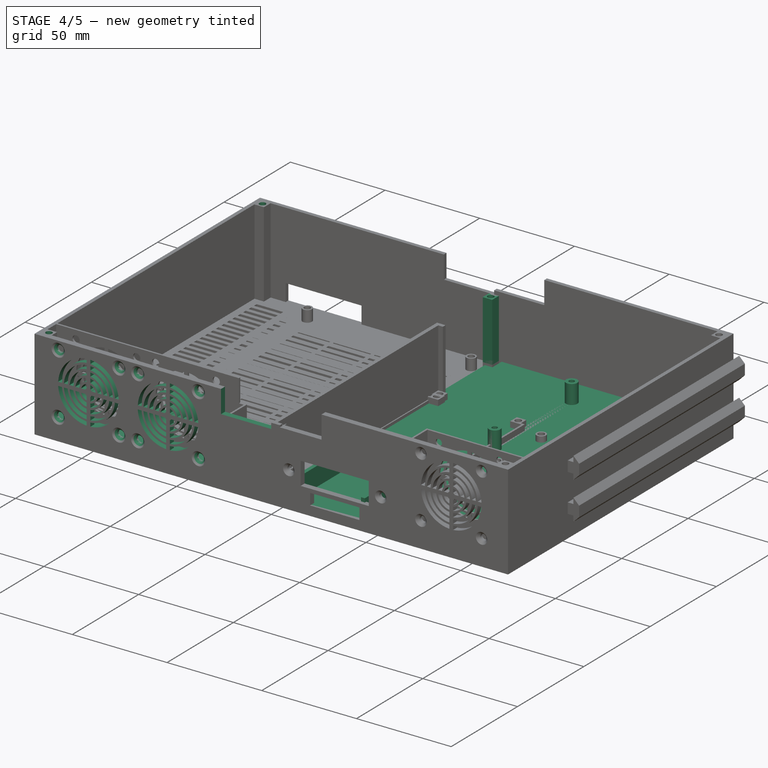
[diagram: stage 4 of 5 — iso view after this stage's code; geometry added in this stage tinted green]
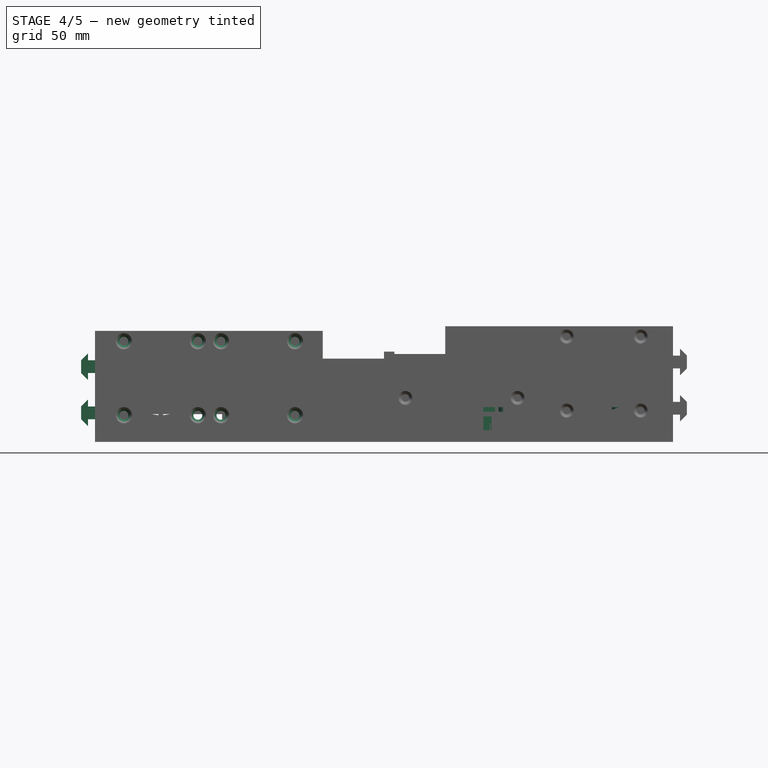
[diagram: stage 4 of 5 — front view after this stage's code; geometry added in this stage tinted green]
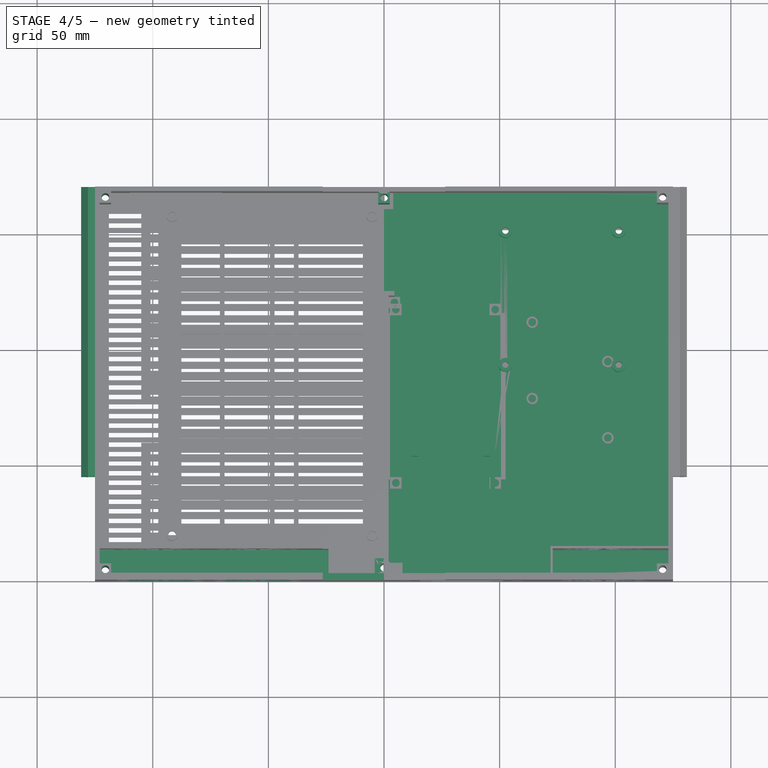
[diagram: stage 4 of 5 — top view after this stage's code; geometry added in this stage tinted green]
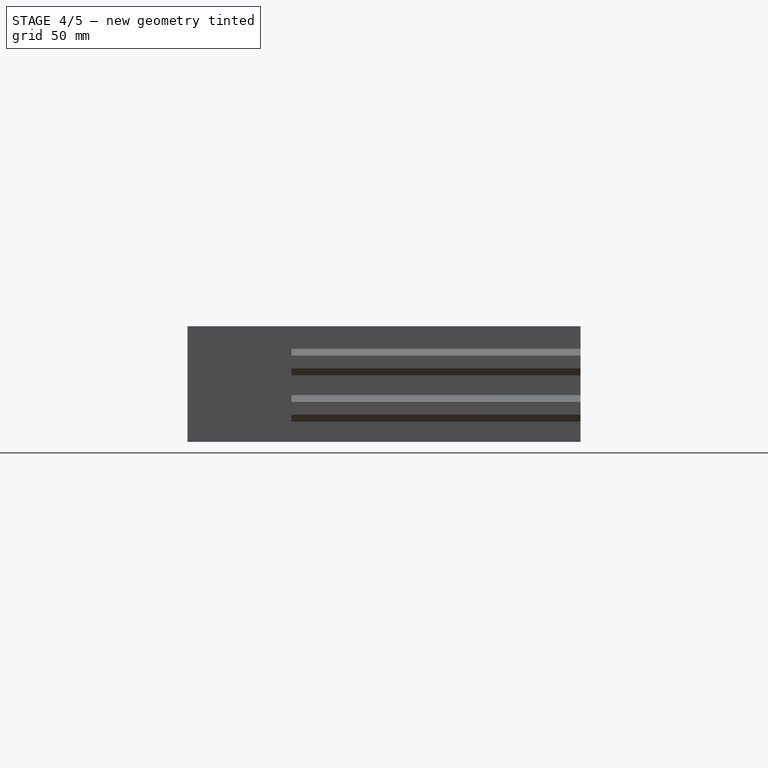
[diagram: stage 4 of 5 — right view after this stage's code; geometry added in this stage tinted green]
FEATURE [Sketcher::SketchObject] Sketch010  label="Base_plate_irght"
  MapMode = 2
  Placement = pos=(0,0,2) rot=(0,0,1;0rad)
  sketch-geometry (4):
    g0: LineSegment StartX=0 StartY=0 StartZ=0 EndX=125 EndY=0 EndZ=0
    g1: LineSegment StartX=125 StartY=0 StartZ=0 EndX=125 EndY=170 EndZ=0
    g2: LineSegment StartX=125 StartY=170 StartZ=0 EndX=0 EndY=170 EndZ=0
    g3: LineSegment StartX=0 StartY=170 StartZ=0 EndX=0 EndY=0 EndZ=0
  constraints (11):
    c: Coincident(g0,g1)
    c: Coincident(g1,g2)
    c: Coincident(g2,g3)
    c: Coincident(g3,g0)
    c: Horizontal(g0)
    c: Horizontal(g2)
    c: Vertical(g1)
    c: Vertical(g3)
    c: Distance(g3) = 170
    c: Distance(g0) = 125
    c: Coincident(g-1,g0)
FEATURE [PartDesign::Pad] Pad
  Length = 3
  Length2 = 100
  Placement = pos=(0,0,2) rot=(0,0,1;0rad)
  Profile = -> Sketch010
  Type = 0
FEATURE [PartDesign::Pad] Pad011
  BaseFeature = -> Pad007
  Length = 125
  Length2 = 100
  Profile = -> Sketch040
  Reversed = true
  Type = 0
FEATURE [Sketcher::SketchObject] Sketch045  label="y_axis_left"
  ExternalGeometry = -> [Pad011]
  MapMode = 5
  Placement = pos=(0,0,0) rot=(1,0,0;1.5708rad)
  Support = -> [Pad011]
  sketch-geometry (4):
    g0: LineSegment StartX=0 StartY=48 StartZ=0 EndX=-26.5 EndY=48 EndZ=0
    g1: LineSegment StartX=-26.5 StartY=48 StartZ=0 EndX=-26.5 EndY=36 EndZ=0
    g2: LineSegment StartX=-26.5 StartY=36 StartZ=0 EndX=0 EndY=36 EndZ=0
    g3: LineSegment StartX=0 StartY=36 StartZ=0 EndX=0 EndY=48 EndZ=0
  constraints (11):
    c: Coincident(g0,g1)
    c: Coincident(g1,g2)
    c: Coincident(g2,g3)
    c: Coincident(g3,g0)
    c: Horizontal(g0)
    c: Horizontal(g2)
    c: Vertical(g1)
    c: Vertical(g3)
    c: Distance(g1) = 12
    c: Distance(g2) = 26.5
    c: Coincident(g0,g-3)
FEATURE [PartDesign::Pocket] Pocket013
  BaseFeature = -> Pad011
  Length = 5
  Length2 = 100
  Profile = -> Sketch045
  Type = 1
FEATURE [Sketcher::SketchObject] Sketch053  label="mounting_holes_lid_baseplate"
  ExternalGeometry = -> [Pocket003]
  MapMode = 5
  Placement = pos=(0,0,2) rot=(1,0,0;3.14159rad)
  Support = -> [Pocket003]
  sketch-geometry (12):
    g0: Circle CenterX=1e-16 CenterY=-5.5 CenterZ=0 NormalX=0 NormalY=0 NormalZ=1 AngleXU=0 Radius=1.25
    g1: Circle CenterX=1e-16 CenterY=-165.5 CenterZ=0 NormalX=0 NormalY=0 NormalZ=1 AngleXU=0 Radius=1.25
    g2: Circle CenterX=120.5 CenterY=-4.5 CenterZ=0 NormalX=0 NormalY=0 NormalZ=1 AngleXU=0 Radius=1.25
    g3: LineSegment [constr] StartX=-2.5 StartY=-8 StartZ=0 EndX=2.5 EndY=-8 EndZ=0
    g4: LineSegment [constr] StartX=2.5 StartY=-8 StartZ=0 EndX=2.5 EndY=-3 EndZ=0
    g5: LineSegment [constr] StartX=2.5 StartY=-3 StartZ=0 EndX=-2.5 EndY=-3 EndZ=0
    g6: LineSegment [constr] StartX=-2.5 StartY=-3 StartZ=0 EndX=-2.5 EndY=-8 EndZ=0
    g7: Circle CenterX=120.5 CenterY=-165.5 CenterZ=0 NormalX=0 NormalY=0 NormalZ=1 AngleXU=0 Radius=1.25
    g8: LineSegment [constr] StartX=-2.5 StartY=-168 StartZ=0 EndX=2.5 EndY=-168 EndZ=0
    g9: LineSegment [constr] StartX=2.5 StartY=-168 StartZ=0 EndX=2.5 EndY=-163 EndZ=0
    g10: LineSegment [constr] StartX=2.5 StartY=-163 StartZ=0 EndX=-2.5 EndY=-163 EndZ=0
    g11: LineSegment [constr] StartX=-2.5 StartY=-163 StartZ=0 EndX=-2.5 EndY=-168 EndZ=0
  constraints (36):
    c: Diameter(g1) = 2.5
    c: Diameter(g0) = 2.5
    c: Equal(g0,g2) = 3
    c: Coincident(g3,g4)
    c: Coincident(g4,g5)
    c: Coincident(g5,g6)
    c: Coincident(g6,g3)
    c: Horizontal(g3)
    c: Horizontal(g5)
    c: Vertical(g4)
    c: Vertical(g6)
    c: Equal(g5,g6)
    c: Distance(g5) = 5
    c: DistanceX(g-1,g4) = 2.5
    c: DistanceY(g5,g-1) = 3
    c: DistanceX(g0,g3) = 2.5
    c: DistanceY(g3,g0) = 2.5
    c: DistanceX(g-5,g2) = 2.5
    c: DistanceY(g-5,g2) = 2.5
    c: Equal(g1,g7) = 3
    c: Coincident(g8,g9)
    c: Coincident(g9,g10)
    c: Coincident(g10,g11)
    c: Coincident(g11,g8)
    c: Horizontal(g8)
    c: Horizontal(g10)
    c: Vertical(g9)
    c: Vertical(g11)
    c: Equal(g8,g9)
    c: Distance(g9) = 5
    c: DistanceX(g-6,g8) = 2.5
    c: DistanceY(g-6,g8) = 2
    c: DistanceX(g10,g1) = 2.5
    c: DistanceY(g1,g10) = 2.5
    c: DistanceX(g-7,g7) = 2.5
    c: DistanceY(g7,g-7) = 2.5
FEATURE [Sketcher::SketchObject] Sketch046  label="electric_cable_duct"
  ExternalGeometry = -> [Pocket013]
  MapMode = 5
  Placement = pos=(0,170,0) rot=(0,0.707107,0.707107;3.14159rad)
  Support = -> [Pocket013]
  sketch-geometry (5):
    g0: LineSegment StartX=70 StartY=0 StartZ=0 EndX=110 EndY=0 EndZ=0
    g1: LineSegment StartX=110 StartY=0 StartZ=0 EndX=110 EndY=12 EndZ=0
    g2: LineSegment StartX=110 StartY=12 StartZ=0 EndX=70 EndY=12 EndZ=0
    g3: LineSegment StartX=70 StartY=12 StartZ=0 EndX=70 EndY=0 EndZ=0
    g4: LineSegment [constr] StartX=70 StartY=0 StartZ=0 EndX=85 EndY=0 EndZ=0
  constraints (15):
    c: Coincident(g0,g1)
    c: Coincident(g1,g2)
    c: Coincident(g2,g3)
    c: Coincident(g3,g0)
    c: Horizontal(g0)
    c: Horizontal(g2)
    c: Vertical(g1)
    c: Vertical(g3)
    c: Distance(g0) = 40
    c: Distance(g3) = 12
    c: Distance(g4) = 15
    c: Horizontal(g4)
    c: Coincident(g0,g4)
    c: PointOnObject(g0,g-1)
    c: DistanceX(g1,g-4) = 15
FEATURE [Sketcher::SketchObject] Sketch055  label="case_connector_left"
  MapMode = 5
  Placement = pos=(0,0,0) rot=(1,0,0;3.14159rad)
  sketch-geometry (9):
    g0: LineSegment StartX=-2.5 StartY=-8 StartZ=0 EndX=2.5 EndY=-8 EndZ=0
    g1: LineSegment StartX=2.5 StartY=-8 StartZ=0 EndX=2.5 EndY=-3 EndZ=0
    g2: LineSegment StartX=-2.5 StartY=-3 StartZ=0 EndX=-2.5 EndY=-8 EndZ=0
    g3: LineSegment StartX=-2.5 StartY=-168 StartZ=0 EndX=2.5 EndY=-168 EndZ=0
    g4: LineSegment StartX=2.5 StartY=-168 StartZ=0 EndX=2.5 EndY=-163 EndZ=0
    g5: LineSegment StartX=2.5 StartY=-163 StartZ=0 EndX=-2.5 EndY=-163 EndZ=0
    g6: LineSegment StartX=-2.5 StartY=-163 StartZ=0 EndX=-2.5 EndY=-168 EndZ=0
    g7: LineSegment StartX=-2.5 StartY=-3 StartZ=0 EndX=2.5 EndY=-3 EndZ=0
    g8: LineSegment [constr] StartX=0 StartY=0 StartZ=0 EndX=0 EndY=-170 EndZ=0
  constraints (27):
    c: Coincident(g0,g1)
    c: Coincident(g2,g0)
    c: Horizontal(g0)
    c: Vertical(g1)
    c: Vertical(g2)
    c: Distance(g2) = 5
    c: DistanceX(g2,g-1) = 2.5
    c: DistanceY(g2,g-1) = 3
    c: Coincident(g3,g4)
    c: Coincident(g4,g5)
    c: Coincident(g5,g6)
    c: Coincident(g6,g3)
    c: Horizontal(g3)
    c: Horizontal(g5)
    c: Vertical(g4)
    c: Vertical(g6)
    c: Equal(g6,g5)
    c: Distance(g4) = 5
    c: Horizontal(g7)
    c: Coincident(g7,g1)
    c: Coincident(g7,g2)
    c: Equal(g7,g2)
    c: DistanceX(g-2,g3) = 2.5
    c: Vertical(g8)
    c: Distance(g8) = 170
    c: Coincident(g8,g-1)
    c: DistanceY(g8,g3) = 2
FEATURE [PartDesign::Pad] Pad015
  BaseFeature = -> Pocket013
  Length = 36
  Length2 = 100
  Profile = -> Sketch055
  Reversed = true
  Type = 0
FEATURE [Sketcher::SketchObject] Sketch056  label="case_connector_left_splitter"
  ExternalGeometry = -> [Pad015]
  MapMode = 5
  Placement = pos=(2.5,0,0) rot=(0.57735,0.57735,0.57735;2.0944rad)
  Support = -> [Pad015]
  sketch-geometry (8):
    g0: LineSegment StartX=3 StartY=0 StartZ=0 EndX=8 EndY=0 EndZ=0
    g1: LineSegment StartX=8 StartY=0 StartZ=0 EndX=8 EndY=5 EndZ=0
    g2: LineSegment StartX=8 StartY=5 StartZ=0 EndX=3 EndY=5 EndZ=0
    g3: LineSegment StartX=3 StartY=5 StartZ=0 EndX=3 EndY=0 EndZ=0
    g4: LineSegment StartX=163 StartY=0 StartZ=0 EndX=168 EndY=0 EndZ=0
    g5: LineSegment StartX=168 StartY=0 StartZ=0 EndX=168 EndY=5 EndZ=0
    g6: LineSegment StartX=168 StartY=5 StartZ=0 EndX=163 EndY=5 EndZ=0
    g7: LineSegment StartX=163 StartY=5 StartZ=0 EndX=163 EndY=0 EndZ=0
  constraints (22):
    c: Coincident(g0,g1)
    c: Coincident(g1,g2)
    c: Coincident(g2,g3)
    c: Coincident(g3,g0)
    c: Horizontal(g0)
    c: Horizontal(g2)
    c: Vertical(g1)
    c: Vertical(g3)
    c: Distance(g1) = 5
    c: Coincident(g4,g5)
    c: Coincident(g5,g6)
    c: Coincident(g6,g7)
    c: Coincident(g7,g4)
    c: Horizontal(g4)
    c: Horizontal(g6)
    c: Vertical(g5)
    c: Vertical(g7)
    c: Distance(g5) = 5
    c: PointOnObject(g0,g-6)
    c: PointOnObject(g5,g-8)
    c: Coincident(g4,g-7)
    c: Coincident(g0,g-5)
FEATURE [PartDesign::Pocket] Pocket020
  BaseFeature = -> Pad015
  Length = 5
  Length2 = 100
  Profile = -> Sketch056
  Type = 0
FEATURE [Sketcher::SketchObject] Sketch062
  MapMode = 5
  Placement = pos=(0,0,2) rot=(1,0,0;3.14159rad)
  Support = -> [Pad]
  sketch-geometry (4):
    g0: LineSegment StartX=-4 StartY=1e-16 StartZ=0 EndX=0 EndY=1e-16 EndZ=0
    g1: LineSegment StartX=0 StartY=1e-16 StartZ=0 EndX=0 EndY=-10 EndZ=0
    g2: LineSegment StartX=0 StartY=-10 StartZ=0 EndX=-4 EndY=-10 EndZ=0
    g3: LineSegment StartX=-4 StartY=-10 StartZ=0 EndX=-4 EndY=0 EndZ=0
  constraints (11):
    c: Coincident(g0,g1)
    c: Coincident(g1,g2)
    c: Coincident(g2,g3)
    c: Coincident(g3,g0)
    c: Horizontal(g0)
    c: Horizontal(g2)
    c: Vertical(g1)
    c: Vertical(g3)
    c: Distance(g0) = 4
    c: Distance(g3) = 10
    c: Coincident(g0,g-1)
FEATURE [PartDesign::Pad] Pad017
  BaseFeature = -> Pad
  Length = 3
  Length2 = 100
  Placement = pos=(0,0,2) rot=(0,0,1;0rad)
  Profile = -> Sketch062
  Reversed = true
  Type = 0
FEATURE [Sketcher::SketchObject] Sketch063
  ExternalGeometry = -> [Pad017]
  MapMode = 5
  Placement = pos=(0,0,2) rot=(1,0,0;3.14159rad)
  Support = -> [Pad017]
  sketch-geometry (11):
    g0: Circle CenterX=1e-16 CenterY=-5.5 CenterZ=0 NormalX=0 NormalY=0 NormalZ=1 AngleXU=0 Radius=1.25
    g1: LineSegment [constr] StartX=119 StartY=-6 StartZ=0 EndX=125 EndY=-6 EndZ=0
    g2: LineSegment [constr] StartX=125 StartY=-6 StartZ=0 EndX=125 EndY=0 EndZ=0
    g3: LineSegment [constr] StartX=125 StartY=0 StartZ=0 EndX=119 EndY=0 EndZ=0
    g4: LineSegment [constr] StartX=119 StartY=0 StartZ=0 EndX=119 EndY=-6 EndZ=0
    g5: LineSegment [constr] StartX=119 StartY=-170 StartZ=0 EndX=125 EndY=-170 EndZ=0
    g6: LineSegment [constr] StartX=125 StartY=-170 StartZ=0 EndX=125 EndY=-164 EndZ=0
    g7: LineSegment [constr] StartX=125 StartY=-164 StartZ=0 EndX=119 EndY=-164 EndZ=0
    g8: LineSegment [constr] StartX=119 StartY=-164 StartZ=0 EndX=119 EndY=-170 EndZ=0
    g9: Circle CenterX=120.5 CenterY=-4.5 CenterZ=0 NormalX=0 NormalY=0 NormalZ=1 AngleXU=0 Radius=1.25
    g10: Circle CenterX=120.5 CenterY=-165.5 CenterZ=0 NormalX=0 NormalY=0 NormalZ=1 AngleXU=0 Radius=1.25
  constraints (31):
    c: Diameter(g0) = 2.5
    c: Distance(g0,g-3) = 4
    c: DistanceY(g-4,g0) = 4.5
    c: Coincident(g1,g2)
    c: Coincident(g2,g3)
    c: Coincident(g3,g4)
    c: Coincident(g4,g1)
    c: Horizontal(g1)
    c: Horizontal(g3)
    c: Vertical(g2)
    c: Vertical(g4)
    c: Coincident(g5,g6)
    c: Coincident(g6,g7)
    c: Coincident(g7,g8)
    c: Coincident(g8,g5)
    c: Horizontal(g5)
    c: Horizontal(g7)
    c: Vertical(g6)
    c: Vertical(g8)
    c: Equal(g7,g8)
    c: Equal(g8,g1)
    c: Equal(g1,g4)
    c: Distance(g4) = 6
    c: Equal(g9,g10)
    c: Diameter(g9) = 2.5
    c: DistanceY(g1,g9) = 1.5
    c: DistanceX(g1,g9) = 1.5
    c: Coincident(g2,g-5)
    c: DistanceY(g10,g7) = 1.5
    c: DistanceX(g7,g10) = 1.5
    c: Coincident(g5,g-5)
FEATURE [PartDesign::Hole] Hole002
  BaseFeature = -> Pad017
  Depth = 25
  DepthType = 1
  Diameter = 3.3
  DrillPoint = 1
  DrillPointAngle = 118
  HoleCutCountersinkAngle = 90
  HoleCutDepth = 0
  HoleCutDiameter = 6
  HoleCutType = 2
  ModelActualThread = false
  Placement = pos=(0,0,2) rot=(0,0,1;0rad)
  Profile = -> Sketch063
  Tapered = false
  TaperedAngle = 90
  ThreadAngle = 60
  ThreadClass = 5
  ThreadCutOffInner = 0.0541266
  ThreadCutOffOuter = 0.108253
  ThreadDirection = 1
  ThreadFit = 0
  ThreadPitch = 0.5
  ThreadSize = 3
  ThreadType = 1
  Threaded = false
FEATURE [Sketcher::SketchObject] Sketch064
  ExternalGeometry = -> [Hole002]
  MapMode = 5
  Placement = pos=(0,0,2) rot=(1,0,0;3.14159rad)
  Support = -> [Hole002]
  sketch-geometry (4):
    g0: LineSegment StartX=0 StartY=-170 StartZ=0 EndX=4 EndY=-170 EndZ=0
    g1: LineSegment StartX=4 StartY=-170 StartZ=0 EndX=4 EndY=-161 EndZ=0
    g2: LineSegment StartX=4 StartY=-161 StartZ=0 EndX=0 EndY=-161 EndZ=0
    g3: LineSegment StartX=0 StartY=-161 StartZ=0 EndX=0 EndY=-170 EndZ=0
  constraints (12):
    c: Coincident(g0,g1)
    c: Coincident(g1,g2)
    c: Coincident(g2,g3)
    c: Coincident(g3,g0)
    c: Horizontal(g0)
    c: Horizontal(g2)
    c: Vertical(g1)
    c: Vertical(g3)
    c: Distance(g2) = 4
    c: Distance(g1) = 9
    c: Coincident(g0,g-3)
    c: Diameter(g-4) = 3.3
FEATURE [PartDesign::Pocket] Pocket023
  BaseFeature = -> Hole002
  Length = 5
  Length2 = 100
  Placement = pos=(0,0,2) rot=(0,0,1;0rad)
  Profile = -> Sketch064
  Type = 2
FEATURE [PartDesign::Pocket] Pocket026
  BaseFeature = -> Pocket020
  Length = 5
  Length2 = 100
  Profile = -> Sketch046
  Type = 0
FEATURE [Sketcher::SketchObject] Sketch048  label="board_psu_cable space"
  ExternalGeometry = -> [Pocket026]
  MapMode = 5
  Placement = pos=(0,0,0) rot=(1,0,0;3.14159rad)
  Support = -> [Pocket026]
  sketch-geometry (6):
    g0: LineSegment StartX=-123 StartY=-14.5 StartZ=0 EndX=-23 EndY=-14.5 EndZ=0
    g1: LineSegment StartX=-23 StartY=-14.5 StartZ=0 EndX=-23 EndY=-3 EndZ=0
    g2: LineSegment StartX=-24 StartY=-13.5 StartZ=0 EndX=-123 EndY=-13.5 EndZ=0
    g3: LineSegment StartX=-123 StartY=-13.5 StartZ=0 EndX=-123 EndY=-14.5 EndZ=0
    g4: LineSegment StartX=-23 StartY=-3 StartZ=0 EndX=-24 EndY=-3 EndZ=0
    g5: LineSegment StartX=-24 StartY=-3 StartZ=0 EndX=-24 EndY=-13.5 EndZ=0
  constraints (14):
    c: Coincident(g0,g1)
    c: Coincident(g2,g3)
    c: Coincident(g3,g0)
    c: Horizontal(g2)
    c: Vertical(g1)
    c: Vertical(g3)
    c: Coincident(g2,g-7)
    c: Coincident(g0,g-5)
    c: Horizontal(g0)
    c: Coincident(g1,g-6)
    c: Perpendicular(g4,g5) = 1.5708
    c: Horizontal(g4)
    c: Coincident(g5,g2)
    c: Coincident(g4,g1)
FEATURE [PartDesign::Pocket] Pocket027
  BaseFeature = -> Pocket026
  Length = 6
  Length2 = 100
  Profile = -> Sketch048
  Type = 0
FEATURE [Sketcher::SketchObject] Sketch049  label="board_psu_fan_seperator"
  ExternalGeometry = -> [Pocket027]
  MapMode = 5
  Placement = pos=(0,1e-15,6) rot=(1,0,0;3.14159rad)
  sketch-geometry (6):
    g0: LineSegment StartX=-118 StartY=-3 StartZ=0 EndX=-24 EndY=-3 EndZ=0
    g1: LineSegment StartX=-24 StartY=-3 StartZ=0 EndX=-24 EndY=-13.5 EndZ=0
    g2: LineSegment StartX=-24 StartY=-13.5 StartZ=0 EndX=-123 EndY=-13.5 EndZ=0
    g3: LineSegment StartX=-123 StartY=-13.5 StartZ=0 EndX=-123 EndY=-7 EndZ=0
    g4: LineSegment StartX=-123 StartY=-7 StartZ=0 EndX=-118 EndY=-7 EndZ=0
    g5: LineSegment StartX=-118 StartY=-7 StartZ=0 EndX=-118 EndY=-3 EndZ=0
  constraints (10):
    c: Perpendicular(g0,g1) = 4.71239
    c: Perpendicular(g1,g2) = 4.71239
    c: Perpendicular(g2,g3) = 4.71239
    c: Perpendicular(g3,g4) = 4.71239
    c: Perpendicular(g4,g5) = 1.5708
    c: Coincident(g5,g0)
    c: Coincident(g-7,g4)
    c: Coincident(g-7,g3)
    c: Coincident(g-8,g0)
    c: Coincident(g1,g-8)
FEATURE [PartDesign::Pad] Pad023
  BaseFeature = -> Pocket027
  Length = 1
  Length2 = 100
  Profile = -> Sketch049
  Reversed = true
  Type = 0
FEATURE [Sketcher::SketchObject] Sketch054  label="fan_cable_duct_left"
  ExternalGeometry = -> [Pad023]
  MapMode = 5
  Placement = pos=(-23,0,0) rot=(0.57735,0.57735,0.57735;2.0944rad)
  sketch-geometry (5):
    g0: LineSegment StartX=3 StartY=7 StartZ=0 EndX=13.5 EndY=7 EndZ=0
    g1: LineSegment StartX=13.5 StartY=7 StartZ=0 EndX=13.5 EndY=12 EndZ=0
    g2: LineSegment StartX=13.5 StartY=12 StartZ=0 EndX=3 EndY=12 EndZ=0
    g3: LineSegment StartX=3 StartY=12 StartZ=0 EndX=3 EndY=7 EndZ=0
    g4: LineSegment [constr] StartX=3 StartY=7 StartZ=0 EndX=3 EndY=6 EndZ=0
  constraints (14):
    c: Coincident(g0,g1)
    c: Coincident(g1,g2)
    c: Coincident(g2,g3)
    c: Coincident(g3,g0)
    c: Horizontal(g0)
    c: Horizontal(g2)
    c: Vertical(g1)
    c: Vertical(g3)
    c: Distance(g0) = 10.5
    c: Distance(g1) = 5
    c: Vertical(g4)
    c: Coincident(g4,g0)
    c: Distance(g4) = 1
    c: Coincident(g4,g-5)
FEATURE [PartDesign::Pocket] Pocket028
  BaseFeature = -> Pad023
  Length = 1
  Length2 = 100
  Profile = -> Sketch054
  Type = 0
FEATURE [PartDesign::Pad] Pad036
  BaseFeature = -> Pocket023
  Length = 10
  Length2 = 100
  Placement = pos=(0,0,2) rot=(0,0,1;0rad)
  Profile = -> Sketch081
  Type = 0
FEATURE [Sketcher::SketchObject] Sketch105
  ExternalGeometry = -> [Pad036]
  MapMode = 5
  Placement = pos=(0,0,15) rot=(0,0,1;0rad)
  Support = -> [Pad036]
  sketch-geometry (4):
    g0: Circle CenterX=52.5 CenterY=151.5 CenterZ=0 NormalX=0 NormalY=0 NormalZ=1 AngleXU=0 Radius=1.25
    g1: Circle CenterX=101.5 CenterY=151.5 CenterZ=0 NormalX=0 NormalY=0 NormalZ=1 AngleXU=0 Radius=1.25
    g2: Circle CenterX=52.5 CenterY=93.5 CenterZ=0 NormalX=0 NormalY=0 NormalZ=1 AngleXU=0 Radius=1.25
    g3: Circle CenterX=101.5 CenterY=93.5 CenterZ=0 NormalX=0 NormalY=0 NormalZ=1 AngleXU=0 Radius=1.25
  constraints (8):
    c: Diameter(g0) = 2.5
    c: Equal(g0,g1)
    c: Equal(g1,g3)
    c: Equal(g3,g2)
    c: Coincident(g0,g-3)
    c: Coincident(g-4,g1)
    c: Coincident(g2,g-6)
    c: Coincident(g3,g-5)
FEATURE [PartDesign::Hole] Hole014
  BaseFeature = -> Pad036
  Depth = 25
  DepthType = 0
  Diameter = 2.75
  DrillPoint = 1
  DrillPointAngle = 118
  HoleCutCountersinkAngle = 90
  HoleCutDepth = 0
  HoleCutDiameter = 2.5
  HoleCutType = 0
  ModelActualThread = false
  Placement = pos=(0,0,2) rot=(0,0,1;0rad)
  Profile = -> Sketch105
  Tapered = false
  TaperedAngle = 90
  ThreadAngle = 0
  ThreadClass = 0
  ThreadCutOffInner = 0
  ThreadCutOffOuter = 0
  ThreadDirection = 0
  ThreadFit = 0
  ThreadPitch = 0
  ThreadSize = 2
  ThreadType = 1
  Threaded = false
FEATURE [PartDesign::Hole] Hole008
  BaseFeature = -> Pocket028
  Depth = 25
  DepthType = 0
  Diameter = 3.85
  DrillPoint = 1
  DrillPointAngle = 118
  HoleCutCountersinkAngle = 90
  HoleCutDepth = 0
  HoleCutDiameter = 7
  HoleCutType = 2
  ModelActualThread = false
  Profile = -> Sketch077
  Tapered = false
  TaperedAngle = 90
  ThreadAngle = 0
  ThreadClass = 0
  ThreadCutOffInner = 0
  ThreadCutOffOuter = 0
  ThreadDirection = 0
  ThreadFit = 0
  ThreadPitch = 0
  ThreadSize = 4
  ThreadType = 1
  Threaded = false
FEATURE [Sketcher::SketchObject] Sketch078
  ExternalGeometry = -> [Hole008]
  MapMode = 5
  Placement = pos=(0,0,0) rot=(1,0,0;1.5708rad)
  Support = -> [Hole008]
  sketch-geometry (92):
    g0: LineSegment [constr] StartX=-112.5 StartY=11.5 StartZ=0 EndX=-80.5 EndY=11.5 EndZ=0
    g1: LineSegment [constr] StartX=-80.5 StartY=11.5 StartZ=0 EndX=-80.5 EndY=43.5 EndZ=0
    g2: LineSegment [constr] StartX=-80.5 StartY=43.5 StartZ=0 EndX=-112.5 EndY=43.5 EndZ=0
    g3: LineSegment [constr] StartX=-112.5 StartY=43.5 StartZ=0 EndX=-112.5 EndY=11.5 EndZ=0
    g4: ArcOfCircle CenterX=-96.5 CenterY=27.5 CenterZ=0 NormalX=0 NormalY=0 NormalZ=1 AngleXU=0 Radius=16 StartAngle=3.20413 EndAngle=4.64985
    g5: LineSegment [constr] StartX=-97.5 StartY=11.5 StartZ=0 EndX=-95.5 EndY=11.5 EndZ=0
    g6: LineSegment [constr] StartX=-95.5 StartY=11.5 StartZ=0 EndX=-95.5 EndY=43.5 EndZ=0
    g7: LineSegment [constr] StartX=-95.5 StartY=43.5 StartZ=0 EndX=-97.5 EndY=43.5 EndZ=0
    g8: LineSegment [constr] StartX=-97.5 StartY=43.5 StartZ=0 EndX=-97.5 EndY=11.5 EndZ=0
    g9: LineSegment [constr] StartX=-112.5 StartY=28.5 StartZ=0 EndX=-80.5 EndY=28.5 EndZ=0
    g10: LineSegment [constr] StartX=-80.5 StartY=28.5 StartZ=0 EndX=-80.5 EndY=26.5 EndZ=0
    g11: LineSegment [constr] StartX=-80.5 StartY=26.5 StartZ=0 EndX=-112.5 EndY=26.5 EndZ=0
    g12: LineSegment [constr] StartX=-112.5 StartY=26.5 StartZ=0 EndX=-112.5 EndY=28.5 EndZ=0
    g13: ArcOfCircle CenterX=-96.5 CenterY=27.5 CenterZ=0 NormalX=0 NormalY=0 NormalZ=1 AngleXU=0 Radius=11 StartAngle=3.23263 EndAngle=4.62135
    g14: ArcOfCircle CenterX=-96.5 CenterY=27.5 CenterZ=0 NormalX=0 NormalY=0 NormalZ=1 AngleXU=0 Radius=14 StartAngle=3.21308 EndAngle=4.6409
    g15: ArcOfCircle CenterX=-96.5 CenterY=27.5 CenterZ=0 NormalX=0 NormalY=0 NormalZ=1 AngleXU=0 Radius=13 StartAngle=3.21859 EndAngle=4.63539
    g16: ArcOfCircle CenterX=-96.5 CenterY=27.5 CenterZ=0 NormalX=0 NormalY=0 NormalZ=1 AngleXU=0 Radius=10 StartAngle=3.24176 EndAngle=4.61222
    g17: ArcOfCircle CenterX=-96.5 CenterY=27.5 CenterZ=0 NormalX=0 NormalY=0 NormalZ=1 AngleXU=0 Radius=8 StartAngle=3.26692 EndAngle=4.58706
    g18: ArcOfCircle CenterX=-96.5 CenterY=27.5 CenterZ=0 NormalX=0 NormalY=0 NormalZ=1 AngleXU=0 Radius=7 StartAngle=3.28494 EndAngle=4.56904
    g19: ArcOfCircle CenterX=-96.5 CenterY=27.5 CenterZ=0 NormalX=0 NormalY=0 NormalZ=1 AngleXU=0 Radius=5 StartAngle=3.34295 EndAngle=4.51103
    g20: ArcOfCircle CenterX=-96.5 CenterY=27.5 CenterZ=0 NormalX=0 NormalY=0 NormalZ=1 AngleXU=0 Radius=4 StartAngle=3.39427 EndAngle=4.45971
    g21: ArcOfCircle CenterX=-96.5 CenterY=27.5 CenterZ=0 NormalX=0 NormalY=0 NormalZ=1 AngleXU=0 Radius=2 StartAngle=3.66519 EndAngle=4.18879
    g22: ArcOfCircle CenterX=-96.5 CenterY=27.5 CenterZ=0 NormalX=0 NormalY=0 NormalZ=1 AngleXU=0 Radius=2 StartAngle=0.523599 EndAngle=1.0472
    g23: ArcOfCircle CenterX=-96.5 CenterY=27.5 CenterZ=0 NormalX=0 NormalY=0 NormalZ=1 AngleXU=0 Radius=4 StartAngle=0.25268 EndAngle=1.31812
    g24: ArcOfCircle CenterX=-96.5 CenterY=27.5 CenterZ=0 NormalX=0 NormalY=0 NormalZ=1 AngleXU=0 Radius=5 StartAngle=0.201358 EndAngle=1.36944
    g25: ArcOfCircle CenterX=-96.5 CenterY=27.5 CenterZ=0 NormalX=0 NormalY=0 NormalZ=1 AngleXU=0 Radius=7 StartAngle=0.143348 EndAngle=1.42745
    g26: ArcOfCircle CenterX=-96.5 CenterY=27.5 CenterZ=0 NormalX=0 NormalY=0 NormalZ=1 AngleXU=0 Radius=8 StartAngle=0.125328 EndAngle=1.44547
    g27: ArcOfCircle CenterX=-96.5 CenterY=27.5 CenterZ=0 NormalX=0 NormalY=0 NormalZ=1 AngleXU=0 Radius=10 StartAngle=0.100167 EndAngle=1.47063
    g28: ArcOfCircle CenterX=-96.5 CenterY=27.5 CenterZ=0 NormalX=0 NormalY=0 NormalZ=1 AngleXU=0 Radius=11 StartAngle=0.0910348 EndAngle=1.47976
    g29: ArcOfCircle CenterX=-96.5 CenterY=27.5 CenterZ=0 NormalX=0 NormalY=0 NormalZ=1 AngleXU=0 Radius=13 StartAngle=0.0769991 EndAngle=1.4938
    g30: ArcOfCircle CenterX=-96.5 CenterY=27.5 CenterZ=0 NormalX=0 NormalY=0 NormalZ=1 AngleXU=0 Radius=14 StartAngle=0.0714894 EndAngle=1.49931
    g31: ArcOfCircle CenterX=-96.5 CenterY=27.5 CenterZ=0 NormalX=0 NormalY=0 NormalZ=1 AngleXU=0 Radius=16 StartAngle=0.0625408 EndAngle=1.50826
    g32: ArcOfCircle CenterX=-96.5 CenterY=27.5 CenterZ=0 NormalX=0 NormalY=0 NormalZ=1 AngleXU=0 Radius=16 StartAngle=1.63334 EndAngle=3.07905
    g33: ArcOfCircle CenterX=-96.5 CenterY=27.5 CenterZ=0 NormalX=0 NormalY=0 NormalZ=1 AngleXU=0 Radius=14 StartAngle=1.64229 EndAngle=3.0701
    g34: ArcOfCircle CenterX=-96.5 CenterY=27.5 CenterZ=0 NormalX=0 NormalY=0 NormalZ=1 AngleXU=0 Radius=13 StartAngle=1.6478 EndAngle=3.06459
    g35: ArcOfCircle CenterX=-96.5 CenterY=27.5 CenterZ=0 NormalX=0 NormalY=0 NormalZ=1 AngleXU=0 Radius=11 StartAngle=1.66183 EndAngle=3.05056
    g36: ArcOfCircle CenterX=-96.5 CenterY=27.5 CenterZ=0 NormalX=0 NormalY=0 NormalZ=1 AngleXU=0 Radius=10 StartAngle=1.67096 EndAngle=3.04143
    g37: ArcOfCircle CenterX=-96.5 CenterY=27.5 CenterZ=0 NormalX=0 NormalY=0 NormalZ=1 AngleXU=0 Radius=8 StartAngle=1.69612 EndAngle=3.01626
    g38: ArcOfCircle CenterX=-96.5 CenterY=27.5 CenterZ=0 NormalX=0 NormalY=0 NormalZ=1 AngleXU=0 Radius=7 StartAngle=1.71414 EndAngle=2.99825
    g39: ArcOfCircle CenterX=-96.5 CenterY=27.5 CenterZ=0 NormalX=0 NormalY=0 NormalZ=1 AngleXU=0 Radius=5 StartAngle=1.77215 EndAngle=2.94023
    g40: ArcOfCircle CenterX=-96.5 CenterY=27.5 CenterZ=0 NormalX=0 NormalY=0 NormalZ=1 AngleXU=0 Radius=4 StartAngle=1.82348 EndAngle=2.88891
    g41: ArcOfCircle CenterX=-96.5 CenterY=27.5 CenterZ=0 NormalX=0 NormalY=0 NormalZ=1 AngleXU=0 Radius=2 StartAngle=2.0944 EndAngle=2.61799
    g42: ArcOfCircle CenterX=-96.5 CenterY=27.5 CenterZ=0 NormalX=0 NormalY=0 NormalZ=1 AngleXU=0 Radius=2 StartAngle=5.23599 EndAngle=5.75959
    g43: ArcOfCircle CenterX=-96.5 CenterY=27.5 CenterZ=0 NormalX=0 NormalY=0 NormalZ=1 AngleXU=0 Radius=4 StartAngle=4.96507 EndAngle=6.03051
    g44: ArcOfCircle CenterX=-96.5 CenterY=27.5 CenterZ=0 NormalX=0 NormalY=0 NormalZ=1 AngleXU=0 Radius=5 StartAngle=4.91375 EndAngle=6.08183
    g45: ArcOfCircle CenterX=-96.5 CenterY=27.5 CenterZ=0 NormalX=0 NormalY=0 NormalZ=1 AngleXU=0 Radius=7 StartAngle=4.85574 EndAngle=6.13984
    g46: ArcOfCircle CenterX=-96.5 CenterY=27.5 CenterZ=0 NormalX=0 NormalY=0 NormalZ=1 AngleXU=0 Radius=8 StartAngle=4.83772 EndAngle=6.15786
    g47: ArcOfCircle CenterX=-96.5 CenterY=27.5 CenterZ=0 NormalX=0 NormalY=0 NormalZ=1 AngleXU=0 Radius=10 StartAngle=4.81256 EndAngle=6.18302
    g48: ArcOfCircle CenterX=-96.5 CenterY=27.5 CenterZ=0 NormalX=0 NormalY=0 NormalZ=1 AngleXU=0 Radius=11 StartAngle=4.80342 EndAngle=6.19215
    g49: ArcOfCircle CenterX=-96.5 CenterY=27.5 CenterZ=0 NormalX=0 NormalY=0 NormalZ=1 AngleXU=0 Radius=13 StartAngle=4.78939 EndAngle=6.20619
    g50: ArcOfCircle CenterX=-96.5 CenterY=27.5 CenterZ=0 NormalX=0 NormalY=0 NormalZ=1 AngleXU=0 Radius=14 StartAngle=4.78388 EndAngle=6.2117
    g51: ArcOfCircle CenterX=-96.5 CenterY=27.5 CenterZ=0 NormalX=0 NormalY=0 NormalZ=1 AngleXU=0 Radius=16 StartAngle=4.77493 EndAngle=6.22064
    g52: LineSegment StartX=-112.469 StartY=28.5 StartZ=0 EndX=-110.464 EndY=28.5 EndZ=0
    g53: LineSegment StartX=-109.461 StartY=28.5 StartZ=0 EndX=-107.454 EndY=28.5 EndZ=0
    g54: LineSegment StartX=-106.45 StartY=28.5 StartZ=0 EndX=-104.437 EndY=28.5 EndZ=0
    g55: LineSegment StartX=-103.428 StartY=28.5 StartZ=0 EndX=-101.399 EndY=28.5 EndZ=0
    g56: LineSegment StartX=-100.373 StartY=28.5 StartZ=0 EndX=-98.2321 EndY=28.5 EndZ=0
    g57: LineSegment StartX=-112.469 StartY=26.5 StartZ=0 EndX=-110.464 EndY=26.5 EndZ=0
    g58: LineSegment StartX=-109.461 StartY=26.5 StartZ=0 EndX=-107.454 EndY=26.5 EndZ=0
    g59: LineSegment StartX=-106.45 StartY=26.5 StartZ=0 EndX=-104.437 EndY=26.5 EndZ=0
    g60: LineSegment StartX=-103.428 StartY=26.5 StartZ=0 EndX=-101.399 EndY=26.5 EndZ=0
    g61: LineSegment StartX=-100.373 StartY=26.5 StartZ=0 EndX=-98.2321 EndY=26.5 EndZ=0
    g62: LineSegment StartX=-97.5 StartY=43.4687 StartZ=0 EndX=-97.5 EndY=41.4642 EndZ=0
    g63: LineSegment StartX=-95.5 StartY=43.4687 StartZ=0 EndX=-95.5 EndY=41.4642 EndZ=0
    g64: LineSegment StartX=-97.5 StartY=40.4615 StartZ=0 EndX=-97.5 EndY=38.4545 EndZ=0
    g65: LineSegment StartX=-95.5 StartY=38.4545 StartZ=0 EndX=-95.5 EndY=40.4615 EndZ=0
    g66: LineSegment StartX=-97.5 StartY=35.4373 StartZ=0 EndX=-97.5 EndY=37.4499 EndZ=0
    g67: LineSegment StartX=-95.5 StartY=35.4373 StartZ=0 EndX=-95.5 EndY=37.4499 EndZ=0
    g68: LineSegment StartX=-97.5 StartY=32.399 StartZ=0 EndX=-97.5 EndY=34.4282 EndZ=0
    g69: LineSegment StartX=-95.5 StartY=32.399 StartZ=0 EndX=-95.5 EndY=34.4282 EndZ=0
    g70: LineSegment StartX=-95.5 StartY=29.2321 StartZ=0 EndX=-95.5 EndY=31.373 EndZ=0
    g71: LineSegment StartX=-97.5 StartY=29.2321 StartZ=0 EndX=-97.5 EndY=31.373 EndZ=0
    g72: LineSegment StartX=-97.5 StartY=23.627 StartZ=0 EndX=-97.5 EndY=25.7679 EndZ=0
    g73: LineSegment StartX=-95.5 StartY=23.627 StartZ=0 EndX=-95.5 EndY=25.7679 EndZ=0
    g74: LineSegment StartX=-97.5 StartY=20.5718 StartZ=0 EndX=-97.5 EndY=22.601 EndZ=0
    g75: LineSegment StartX=-95.5 StartY=20.5718 StartZ=0 EndX=-95.5 EndY=22.601 EndZ=0
    g76: LineSegment StartX=-97.5 StartY=17.5501 StartZ=0 EndX=-97.5 EndY=19.5627 EndZ=0
    g77: LineSegment StartX=-95.5 StartY=17.5501 StartZ=0 EndX=-95.5 EndY=19.5627 EndZ=0
    g78: LineSegment StartX=-97.5 StartY=14.5385 StartZ=0 EndX=-97.5 EndY=16.5455 EndZ=0
    g79: LineSegment StartX=-95.5 StartY=14.5385 StartZ=0 EndX=-95.5 EndY=16.5455 EndZ=0
    g80: LineSegment StartX=-97.5 StartY=11.5313 StartZ=0 EndX=-97.5 EndY=13.5358 EndZ=0
    g81: LineSegment StartX=-95.5 StartY=11.5313 StartZ=0 EndX=-95.5 EndY=13.5358 EndZ=0
    g82: LineSegment StartX=-94.7679 StartY=28.5 StartZ=0 EndX=-92.627 EndY=28.5 EndZ=0
    g83: LineSegment StartX=-91.601 StartY=28.5 StartZ=0 EndX=-89.5718 EndY=28.5 EndZ=0
    g84: LineSegment StartX=-88.5627 StartY=28.5 StartZ=0 EndX=-86.5501 EndY=28.5 EndZ=0
    g85: LineSegment StartX=-85.5455 StartY=28.5 StartZ=0 EndX=-83.5385 EndY=28.5 EndZ=0
    g86: LineSegment StartX=-82.5358 StartY=28.5 StartZ=0 EndX=-80.5313 EndY=28.5 EndZ=0
    g87: LineSegment StartX=-80.5313 StartY=26.5 StartZ=0 EndX=-82.5358 EndY=26.5 EndZ=0
    g88: LineSegment StartX=-83.5385 StartY=26.5 StartZ=0 EndX=-85.5455 EndY=26.5 EndZ=0
    g89: LineSegment StartX=-88.5627 StartY=26.5 StartZ=0 EndX=-86.5501 EndY=26.5 EndZ=0
    g90: LineSegment StartX=-89.5718 StartY=26.5 StartZ=0 EndX=-91.601 EndY=26.5 EndZ=0
    g91: LineSegment StartX=-92.627 StartY=26.5 StartZ=0 EndX=-94.7679 EndY=26.5 EndZ=0
  constraints (276):
    c: Coincident(g0,g1)
    c: Coincident(g1,g2)
    c: Coincident(g2,g3)
    c: Coincident(g3,g0)
    c: Horizontal(g0)
    c: Horizontal(g2)
    c: Vertical(g1)
    c: Vertical(g3)
    c: Equal(g3,g2)
    c: Distance(g2) = 32
    c: Coincident(g5,g6)
    c: Coincident(g6,g7)
    c: Coincident(g7,g8)
    c: Coincident(g8,g5)
    c: Horizontal(g5)
    c: Horizontal(g7)
    c: Vertical(g6)
    c: Vertical(g8)
    c: Coincident(g9,g10)
    c: Coincident(g10,g11)
    c: Coincident(g11,g12)
    c: Coincident(g12,g9)
    c: Horizontal(g9)
    c: Horizontal(g11)
    c: Vertical(g10)
    c: Vertical(g12)
    c: DistanceX(g2,g7) = 15
    c: DistanceX(g6,g1) = 15
    c: DistanceY(g9,g2) = 15
    c: DistanceY(g0,g11) = 15
    c: PointOnObject(g9,g3)
    c: PointOnObject(g9,g1)
    c: PointOnObject(g7,g2)
    c: PointOnObject(g5,g0)
    c: Diameter(g4) = 32
    c: Tangent(g4,g2)
    c: Tangent(g4,g3)
    c: Coincident(g13,g4)
    c: Coincident(g4,g15)
    c: Coincident(g4,g14)
    c: Diameter(g14) = 28
    c: Diameter(g15) = 26
    c: Diameter(g13) = 22
    c: Coincident(g19,g4)
    c: Coincident(g19,g16)
    c: Coincident(g19,g18)
    c: Coincident(g19,g17)
    c: Diameter(g16) = 20
    c: Diameter(g17) = 16
    c: Diameter(g18) = 14
    c: Diameter(g19) = 10
    c: Coincident(g4,g20)
    c: Coincident(g4,g21)
    c: Diameter(g20) = 8
    c: Diameter(g21) = 4
    c: PointOnObject(g4,g11)
    c: PointOnObject(g32,g9)
    c: PointOnObject(g14,g11)
    c: PointOnObject(g33,g9)
    c: PointOnObject(g15,g11)
    c: PointOnObject(g34,g9)
    c: PointOnObject(g13,g11)
    c: PointOnObject(g35,g9)
    c: PointOnObject(g16,g11)
    c: PointOnObject(g36,g9)
    c: PointOnObject(g17,g11)
    c: PointOnObject(g37,g9)
    c: PointOnObject(g18,g11)
    c: PointOnObject(g38,g9)
    c: PointOnObject(g19,g11)
    c: PointOnObject(g39,g9)
    c: PointOnObject(g20,g11)
    c: PointOnObject(g40,g9)
    c: PointOnObject(g21,g11)
    c: PointOnObject(g41,g9)
    c: Equal(g21,g22)
    c: PointOnObject(g42,g11)
    c: PointOnObject(g22,g9)
    c: Coincident(g21,g22)
    c: Equal(g20,g23)
    c: PointOnObject(g43,g11)
    c: PointOnObject(g23,g9)
    c: Coincident(g20,g23)
    c: Equal(g19,g24)
    c: PointOnObject(g44,g11)
    c: PointOnObject(g24,g9)
    c: Coincident(g19,g24)
    c: Equal(g18,g25)
    c: PointOnObject(g45,g11)
    c: PointOnObject(g25,g9)
    c: Coincident(g18,g25)
    c: Equal(g17,g26)
    c: PointOnObject(g46,g11)
    c: PointOnObject(g26,g9)
    c: Coincident(g17,g26)
    c: Equal(g16,g27)
    c: PointOnObject(g47,g11)
    c: PointOnObject(g27,g9)
    c: Coincident(g16,g27)
    c: Equal(g13,g28)
    c: PointOnObject(g48,g11)
    c: PointOnObject(g28,g9)
    c: Coincident(g13,g28)
    c: Equal(g15,g29)
    c: PointOnObject(g49,g11)
    c: PointOnObject(g29,g9)
    c: Coincident(g15,g29)
    c: Equal(g14,g30)
    c: PointOnObject(g50,g11)
    c: PointOnObject(g30,g9)
    c: Coincident(g14,g30)
    c: Equal(g4,g31)
    c: PointOnObject(g31,g9)
    c: Coincident(g4,g31)
    c: PointOnObject(g51,g11)
    c: Equal(g31,g32)
    c: PointOnObject(g32,g8)
    c: Coincident(g31,g32)
    c: PointOnObject(g31,g6)
    c: Equal(g30,g33)
    c: PointOnObject(g30,g6)
    c: PointOnObject(g33,g8)
    c: Coincident(g30,g33)
    c: Equal(g29,g34)
    c: PointOnObject(g29,g6)
    c: PointOnObject(g34,g8)
    c: Coincident(g29,g34)
    c: Equal(g28,g35)
    c: PointOnObject(g28,g6)
    c: PointOnObject(g35,g8)
    c: Coincident(g28,g35)
    c: Equal(g27,g36)
    c: PointOnObject(g27,g6)
    c: PointOnObject(g36,g8)
    c: Coincident(g27,g36)
    c: Equal(g26,g37)
    c: PointOnObject(g26,g6)
    c: PointOnObject(g37,g8)
    c: Coincident(g26,g37)
    c: Equal(g25,g38)
    c: PointOnObject(g25,g6)
    c: PointOnObject(g38,g8)
    c: Coincident(g25,g38)
    c: Equal(g24,g39)
    c: PointOnObject(g24,g6)
    c: PointOnObject(g39,g8)
    c: Coincident(g24,g39)
    c: Equal(g23,g40)
    c: PointOnObject(g23,g6)
    c: PointOnObject(g40,g8)
    c: Coincident(g23,g40)
    c: Equal(g22,g41)
    c: PointOnObject(g22,g6)
    c: PointOnObject(g41,g8)
    c: Coincident(g22,g41)
    c: Equal(g21,g42)
    c: PointOnObject(g21,g8)
    c: PointOnObject(g42,g6)
    c: Coincident(g21,g42)
    c: Equal(g20,g43)
    c: PointOnObject(g20,g8)
    c: PointOnObject(g43,g6)
    c: Coincident(g20,g43)
    c: Equal(g19,g44)
    c: PointOnObject(g19,g8)
    c: PointOnObject(g44,g6)
    c: Coincident(g19,g44)
    c: Equal(g18,g45)
    c: PointOnObject(g18,g8)
    c: PointOnObject(g45,g6)
    c: Coincident(g18,g45)
    c: Equal(g17,g46)
    c: PointOnObject(g17,g8)
    c: PointOnObject(g46,g6)
    c: Coincident(g17,g46)
    c: Equal(g16,g47)
    c: PointOnObject(g16,g8)
    c: PointOnObject(g47,g6)
    c: Coincident(g16,g47)
    c: Equal(g13,g48)
    c: PointOnObject(g13,g8)
    c: PointOnObject(g48,g6)
    c: Coincident(g13,g48)
    c: Equal(g15,g49)
    c: PointOnObject(g15,g8)
    c: PointOnObject(g49,g6)
    c: Coincident(g15,g49)
    c: Equal(g14,g50)
    c: PointOnObject(g14,g8)
    c: PointOnObject(g50,g6)
    c: Coincident(g14,g50)
    c: Equal(g4,g51)
    c: PointOnObject(g4,g8)
    c: Coincident(g4,g51)
    c: PointOnObject(g51,g6)
    c: Coincident(g32,g52)
    c: Coincident(g33,g52)
    c: Coincident(g57,g4)
    c: Coincident(g57,g14)
    c: Coincident(g34,g53)
    c: Coincident(g53,g35)
    c: Coincident(g58,g15)
    c: Coincident(g58,g13)
    c: Coincident(g54,g36)
    c: Coincident(g54,g37)
    c: Coincident(g55,g38)
    c: Coincident(g55,g39)
    c: Coincident(g56,g40)
    c: Coincident(g56,g41)
    c: Coincident(g71,g40)
    c: Coincident(g71,g41)
    c: Coincident(g59,g16)
    c: Coincident(g59,g17)
    c: Coincident(g60,g18)
    c: Coincident(g60,g19)
    c: Coincident(g61,g20)
    c: Coincident(g61,g21)
    c: Coincident(g21,g72)
    c: Coincident(g20,g72)
    c: Coincident(g19,g74)
    c: Coincident(g74,g18)
    c: Coincident(g17,g76)
    c: Coincident(g16,g76)
    c: Coincident(g13,g78)
    c: Coincident(g78,g15)
    c: Coincident(g14,g80)
    c: Coincident(g73,g42)
    c: Coincident(g73,g43)
    c: Coincident(g44,g75)
    c: Coincident(g75,g45)
    c: Coincident(g46,g77)
    c: Coincident(g77,g47)
    c: Coincident(g48,g79)
    c: Coincident(g79,g49)
    c: Coincident(g50,g81)
    c: Coincident(g62,g32)
    c: Coincident(g33,g62)
    c: Coincident(g34,g64)
    c: Coincident(g64,g35)
    c: Coincident(g36,g66)
    c: Coincident(g66,g37)
    c: Coincident(g38,g68)
    c: Coincident(g68,g39)
    c: Coincident(g63,g31)
    c: Coincident(g63,g30)
    c: Coincident(g29,g65)
    c: Coincident(g65,g28)
    c: Coincident(g27,g67)
    c: Coincident(g67,g26)
    c: Coincident(g69,g25)
    c: Coincident(g69,g24)
    c: Coincident(g70,g23)
    c: Coincident(g70,g22)
    c: Coincident(g91,g42)
    c: Coincident(g91,g43)
    c: Coincident(g90,g44)
    c: Coincident(g90,g45)
    c: Coincident(g46,g89)
    c: Coincident(g89,g47)
    c: Coincident(g88,g48)
    c: Coincident(g88,g49)
    c: Coincident(g87,g50)
    c: Coincident(g51,g87)
    c: Coincident(g31,g86)
    c: Coincident(g30,g86)
    c: Coincident(g29,g85)
    c: Coincident(g28,g85)
    c: Coincident(g22,g82)
    c: Coincident(g82,g23)
    c: Coincident(g24,g83)
    c: Coincident(g25,g83)
    c: Coincident(g26,g84)
    c: Coincident(g84,g27)
    c: Coincident(g80,g4)
    c: Coincident(g81,g51)
    c: Coincident(g-4,g2)
FEATURE [PartDesign::Pocket] Pocket042
  BaseFeature = -> Hole008
  Length = 15
  Length2 = 100
  Profile = -> Sketch078
  Type = 0
FEATURE [PartDesign::LinearPattern] LinearPattern
  BaseFeature = -> Pocket042
  Direction = -> Sketch078 [H_Axis]
  Length = 42
  Occurrences = 2
  Originals = -> [Pocket042]
FEATURE [Sketcher::SketchObject] Sketch079
  ExternalGeometry = -> [LinearPattern]
  MapMode = 5
  Placement = pos=(0,14.5,0) rot=(0,0.707107,0.707107;3.14159rad)
  Support = -> [LinearPattern]
  sketch-geometry (4):
    g0: LineSegment StartX=117 StartY=6 StartZ=0 EndX=123 EndY=6 EndZ=0
    g1: LineSegment StartX=123 StartY=6 StartZ=0 EndX=123 EndY=13 EndZ=0
    g2: LineSegment StartX=123 StartY=13 StartZ=0 EndX=117 EndY=13 EndZ=0
    g3: LineSegment StartX=117 StartY=13 StartZ=0 EndX=117 EndY=6 EndZ=0
  constraints (11):
    c: Coincident(g0,g1)
    c: Coincident(g1,g2)
    c: Coincident(g2,g3)
    c: Coincident(g3,g0)
    c: Horizontal(g0)
    c: Horizontal(g2)
    c: Vertical(g1)
    c: Vertical(g3)
    c: Distance(g0) = 6
    c: Distance(g3) = 7
    c: Coincident(g0,g-3)
FEATURE [PartDesign::Pocket] Pocket043
  BaseFeature = -> LinearPattern
  Length = 5
  Length2 = 100
  Profile = -> Sketch079
  Type = 2
FEATURE [Sketcher::SketchObject] Sketch130
  MapMode = 5
  Placement = pos=(0,0,5) rot=(0,0,1;0rad)
  Support = -> [Hole014]
  sketch-geometry (13):
    g0: LineSegment StartX=12 StartY=2 StartZ=0 EndX=12 EndY=54 EndZ=0
    g1: LineSegment StartX=12 StartY=54 StartZ=0 EndX=15 EndY=54 EndZ=0
    g2: LineSegment StartX=15 StartY=54 StartZ=0 EndX=15 EndY=56 EndZ=0
    g3: LineSegment StartX=15 StartY=56 StartZ=0 EndX=10 EndY=56 EndZ=0
    g4: LineSegment StartX=10 StartY=56 StartZ=0 EndX=10 EndY=2 EndZ=0
    g5: LineSegment StartX=10 StartY=2 StartZ=0 EndX=12 EndY=2 EndZ=0
    g6: LineSegment StartX=46 StartY=2 StartZ=0 EndX=48 EndY=2 EndZ=0
    g7: LineSegment StartX=48 StartY=2 StartZ=0 EndX=48 EndY=56 EndZ=0
    g8: LineSegment StartX=48 StartY=56 StartZ=0 EndX=43 EndY=56 EndZ=0
    g9: LineSegment StartX=43 StartY=56 StartZ=0 EndX=43 EndY=54 EndZ=0
    g10: LineSegment StartX=43 StartY=54 StartZ=0 EndX=46 EndY=54 EndZ=0
    g11: LineSegment StartX=46 StartY=54 StartZ=0 EndX=46 EndY=2 EndZ=0
    g12: LineSegment [constr] StartX=12 StartY=2 StartZ=0 EndX=46 EndY=2 EndZ=0
  constraints (38):
    c: Coincident(g0,g1)
    c: Coincident(g1,g2)
    c: Coincident(g2,g3)
    c: Coincident(g3,g4)
    c: Coincident(g4,g5)
    c: Coincident(g5,g0)
    c: Vertical(g0)
    c: Vertical(g4)
    c: Vertical(g2)
    c: Horizontal(g3)
    c: Horizontal(g1)
    c: Horizontal(g5)
    c: Distance(g0) = 52
    c: Distance(g1) = 3
    c: Distance(g2) = 2
    c: Distance(g5) = 2
    c: Coincident(g6,g7)
    c: Coincident(g7,g8)
    c: Coincident(g8,g9)
    c: Coincident(g9,g10)
    c: Coincident(g10,g11)
    c: Coincident(g11,g6)
    c: Vertical(g7)
    c: Vertical(g11)
    c: Vertical(g9)
    c: Horizontal(g8)
    c: Horizontal(g10)
    c: Horizontal(g6)
    c: Equal(g5,g6)
    c: Equal(g0,g11)
    c: Equal(g2,g9)
    c: Equal(g1,g10)
    c: Coincident(g12,g6)
    c: Coincident(g12,g0)
    c: Horizontal(g12)
    c: Distance(g12) = 34
    c: DistanceX(g-2,g0) = 12
    c: DistanceY(g-1,g0) = 2
FEATURE [PartDesign::Pad] Pad048
  BaseFeature = -> Hole014
  Length = 10
  Length2 = 100
  Placement = pos=(0,0,2) rot=(0,0,1;0rad)
  Profile = -> Sketch130
  Type = 0
FEATURE [Sketcher::SketchObject] Sketch135
  ExternalGeometry = -> [Pocket043]
  MapMode = 5
  Placement = pos=(0,0,0) rot=(1,0,0;3.14159rad)
  Support = -> [Pocket043]
  sketch-geometry (4):
    g0: Circle CenterX=0 CenterY=-5.5 CenterZ=0 NormalX=0 NormalY=0 NormalZ=1 AngleXU=0 Radius=1.5
    g1: Circle CenterX=-120.5 CenterY=-4.5 CenterZ=0 NormalX=0 NormalY=0 NormalZ=1 AngleXU=0 Radius=1.5
    g2: Circle CenterX=-120.5 CenterY=-165.5 CenterZ=0 NormalX=0 NormalY=0 NormalZ=1 AngleXU=0 Radius=1.5
    g3: Circle CenterX=0 CenterY=-165.5 CenterZ=0 NormalX=0 NormalY=0 NormalZ=1 AngleXU=0 Radius=1.5
FEATURE [PartDesign::Hole] Hole021
  BaseFeature = -> Pocket043
  Depth = 25
  DepthType = 1
  Diameter = 3.3
  DrillPoint = 1
  DrillPointAngle = 118
  HoleCutCountersinkAngle = 90
  HoleCutDepth = 0
  HoleCutDiameter = 3
  HoleCutType = 0
  ModelActualThread = false
  Profile = -> Sketch135
  Tapered = false
  TaperedAngle = 90
  ThreadAngle = 0
  ThreadClass = 0
  ThreadCutOffInner = 0
  ThreadCutOffOuter = 0
  ThreadDirection = 0
  ThreadFit = 0
  ThreadPitch = 0
  ThreadSize = 3
  ThreadType = 1
  Threaded = false
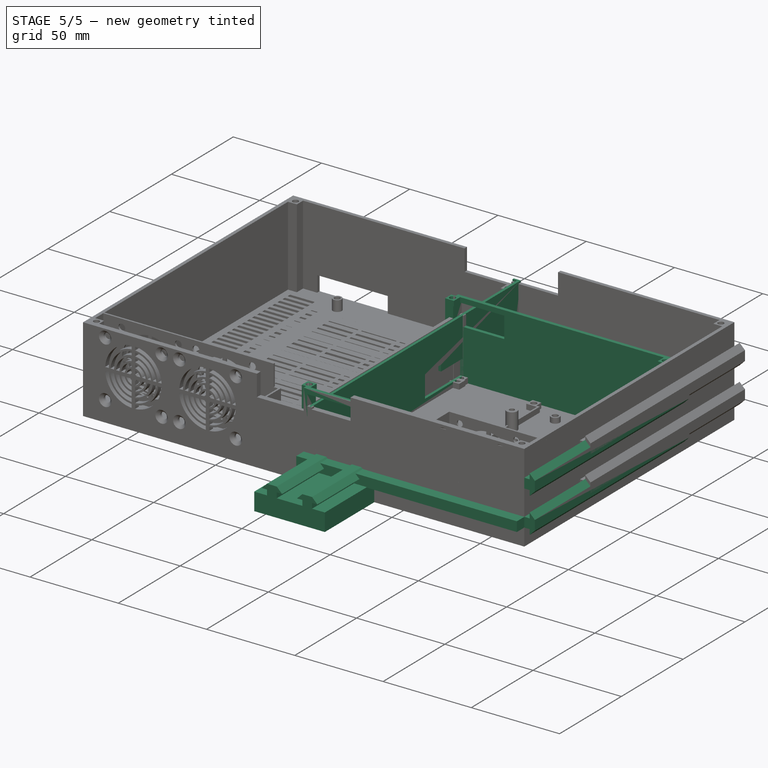
[diagram: stage 5 of 5 — iso view after this stage's code; geometry added in this stage tinted green]
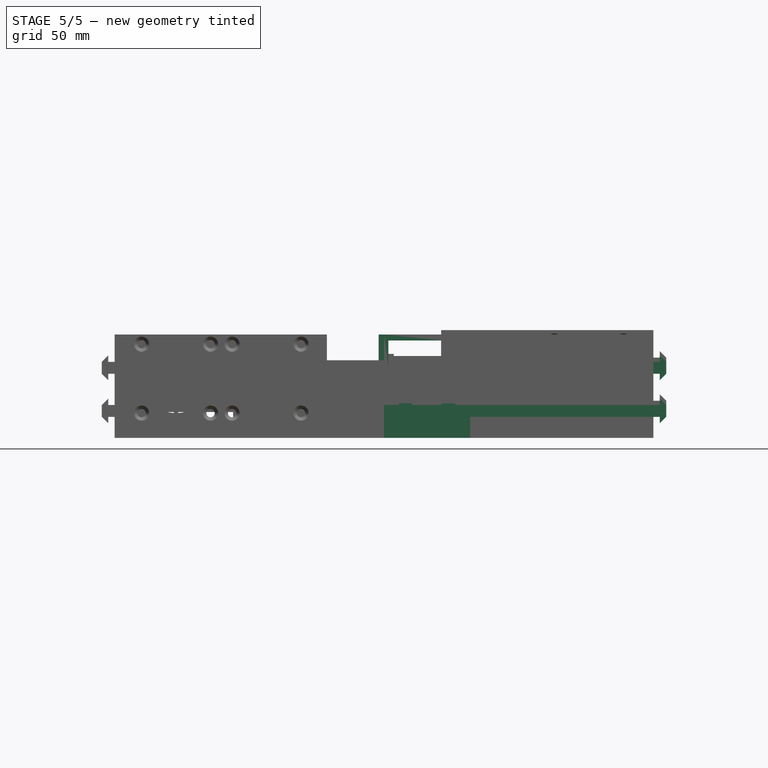
[diagram: stage 5 of 5 — front view after this stage's code; geometry added in this stage tinted green]
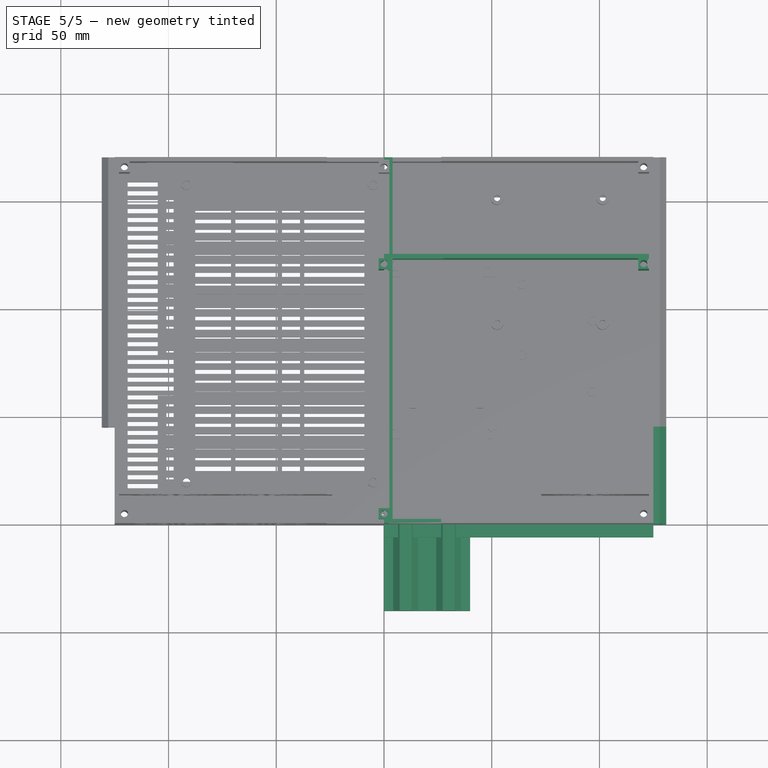
[diagram: stage 5 of 5 — top view after this stage's code; geometry added in this stage tinted green]
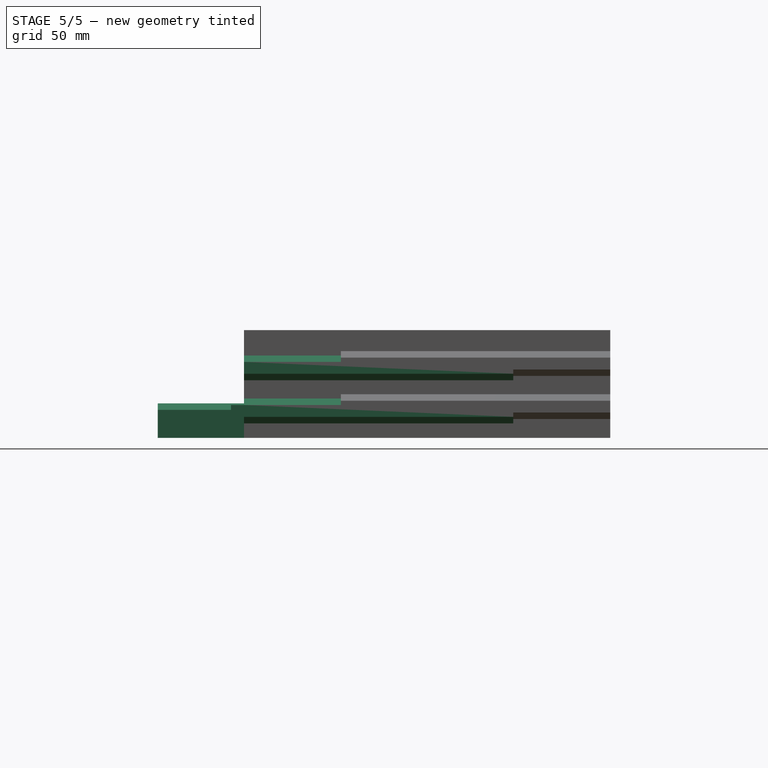
[diagram: stage 5 of 5 — right view after this stage's code; geometry added in this stage tinted green]
FEATURE [Sketcher::SketchObject] Sketch071
  MapMode = 5
  Support = -> [XY_Plane007]
  sketch-geometry (6):
    g0: LineSegment StartX=0 StartY=162 StartZ=0 EndX=4 EndY=162 EndZ=0
    g1: LineSegment StartX=4 StartY=162 StartZ=0 EndX=4 EndY=0 EndZ=0
    g2: LineSegment StartX=4 StartY=-2e-16 StartZ=0 EndX=-4 EndY=-2e-16 EndZ=0
    g3: LineSegment StartX=-4 StartY=-2e-16 StartZ=0 EndX=-4 EndY=8 EndZ=0
    g4: LineSegment StartX=-4 StartY=8 StartZ=0 EndX=0 EndY=8 EndZ=0
    g5: LineSegment StartX=0 StartY=8 StartZ=0 EndX=0 EndY=162 EndZ=0
  constraints (18):
    c: Coincident(g0,g1)
    c: Coincident(g1,g2)
    c: Coincident(g2,g3)
    c: Coincident(g3,g4)
    c: Coincident(g4,g5)
    c: Coincident(g5,g0)
    c: Horizontal(g0)
    c: Vertical(g5)
    c: Vertical(g1)
    c: Vertical(g3)
    c: Horizontal(g4)
    c: Horizontal(g2)
    c: Distance(g3) = 8
    c: Distance(g4,g1) = 4
    c: Distance(g2) = 8
    c: Distance(g1) = 162
    c: DistanceX(g-1,g1) = 4
    c: PointOnObject(g-1,g2)
FEATURE [PartDesign::Pad] Pad020
  Length = 3
  Length2 = 100
  Profile = -> Sketch071
  Type = 0
FEATURE [Sketcher::SketchObject] Sketch072
  ExternalGeometry = -> [Pad020]
  MapMode = 5
  Placement = pos=(0,0,3) rot=(0,0,1;0rad)
  Support = -> [Pad020]
  sketch-geometry (8):
    g0: LineSegment StartX=2.5 StartY=1 StartZ=0 EndX=2.5 EndY=169 EndZ=0
    g1: LineSegment StartX=2.5 StartY=169 StartZ=0 EndX=0 EndY=169 EndZ=0
    g2: LineSegment StartX=0 StartY=169 StartZ=0 EndX=0 EndY=170 EndZ=0
    g3: LineSegment StartX=0 StartY=170 StartZ=0 EndX=4 EndY=170 EndZ=0
    g4: LineSegment StartX=4 StartY=170 StartZ=0 EndX=4 EndY=0 EndZ=0
    g5: LineSegment StartX=4 StartY=0 StartZ=0 EndX=0 EndY=0 EndZ=0
    g6: LineSegment StartX=0 StartY=0 StartZ=0 EndX=0 EndY=1 EndZ=0
    g7: LineSegment StartX=0 StartY=1 StartZ=0 EndX=2.5 EndY=1 EndZ=0
  constraints (23):
    c: Coincident(g0,g1)
    c: Coincident(g1,g2)
    c: Coincident(g2,g3)
    c: Coincident(g3,g4)
    c: Coincident(g4,g5)
    c: Coincident(g5,g6)
    c: Coincident(g6,g7)
    c: Coincident(g7,g0)
    c: Horizontal(g7)
    c: Horizontal(g5)
    c: Vertical(g6)
    c: Vertical(g0)
    c: Vertical(g4)
    c: Horizontal(g1)
    c: Horizontal(g3)
    c: Vertical(g2)
    c: Distance(g2) = 1
    c: DistanceX(g0,g3) = 1.5
    c: Distance(g4) = 170
    c: Distance(g6) = 1
    c: Distance(g3) = 4
    c: Distance(g5) = 4
    c: Coincident(g4,g-3)
FEATURE [PartDesign::Pad] Pad021
  BaseFeature = -> Pad020
  Length = 36
  Length2 = 100
  Profile = -> Sketch072
  Type = 0
FEATURE [Sketcher::SketchObject] Sketch073
  ExternalGeometry = -> [Pad021]
  MapMode = 5
  Placement = pos=(2.5,0,0) rot=(0.57735,-0.57735,-0.57735;2.0944rad)
  Support = -> [Pad021]
  sketch-geometry (8):
    g0: LineSegment StartX=-169 StartY=5.5 StartZ=0 EndX=-164 EndY=5.5 EndZ=0
    g1: LineSegment StartX=-164 StartY=5.5 StartZ=0 EndX=-164 EndY=10.5 EndZ=0
    g2: LineSegment StartX=-164 StartY=10.5 StartZ=0 EndX=-169 EndY=10.5 EndZ=0
    g3: LineSegment StartX=-169 StartY=10.5 StartZ=0 EndX=-169 EndY=5.5 EndZ=0
    g4: LineSegment StartX=-6 StartY=5.5 StartZ=0 EndX=-1 EndY=5.5 EndZ=0
    g5: LineSegment StartX=-1 StartY=5.5 StartZ=0 EndX=-1 EndY=10.5 EndZ=0
    g6: LineSegment StartX=-1 StartY=10.5 StartZ=0 EndX=-6 EndY=10.5 EndZ=0
    g7: LineSegment StartX=-6 StartY=10.5 StartZ=0 EndX=-6 EndY=5.5 EndZ=0
  constraints (24):
    c: Coincident(g0,g1)
    c: Coincident(g1,g2)
    c: Coincident(g2,g3)
    c: Coincident(g3,g0)
    c: Horizontal(g0)
    c: Horizontal(g2)
    c: Vertical(g1)
    c: Vertical(g3)
    c: Distance(g2) = 5
    c: Distance(g1) = 5
    c: PointOnObject(g2,g-3)
    c: DistanceY(g-3,g0) = 2.5
    c: Coincident(g4,g5)
    c: Coincident(g5,g6)
    c: Coincident(g6,g7)
    c: Coincident(g7,g4)
    c: Horizontal(g4)
    c: Horizontal(g6)
    c: Vertical(g5)
    c: Vertical(g7)
    c: Equal(g6,g7)
    c: Distance(g6) = 5
    c: PointOnObject(g5,g-4)
    c: DistanceY(g-4,g4) = 2.5
FEATURE [PartDesign::Pad] Pad022
  BaseFeature = -> Pad021
  Length = 5
  Length2 = 100
  Profile = -> Sketch073
  Type = 0
FEATURE [Sketcher::SketchObject] Sketch074
  ExternalGeometry = -> [Pad022]
  MapMode = 5
  Placement = pos=(0,0,10.5) rot=(0,0,1;0rad)
  Support = -> [Pad022]
  sketch-geometry (2):
    g0: Circle CenterX=-1e-16 CenterY=166.5 CenterZ=0 NormalX=0 NormalY=0 NormalZ=1 AngleXU=0 Radius=1.5
    g1: Circle CenterX=0 CenterY=3.5 CenterZ=0 NormalX=0 NormalY=0 NormalZ=1 AngleXU=0 Radius=1.5
  constraints (6):
    c: Diameter(g0) = 3
    c: DistanceX(g-4,g0) = 2.5
    c: DistanceY(g0,g-4) = 2.5
    c: Diameter(g1) = 3
    c: DistanceX(g-6,g1) = 2.5
    c: DistanceY(g1,g-6) = 2.5
FEATURE [PartDesign::Hole] Hole006
  BaseFeature = -> Pad022
  Depth = 25
  DepthType = 0
  Diameter = 3.3
  DrillPoint = 1
  DrillPointAngle = 118
  HoleCutCountersinkAngle = 90
  HoleCutDepth = 0
  HoleCutDiameter = 3
  HoleCutType = 0
  ModelActualThread = false
  Profile = -> Sketch074
  Tapered = false
  TaperedAngle = 90
  ThreadAngle = 0
  ThreadClass = 0
  ThreadCutOffInner = 0
  ThreadCutOffOuter = 0
  ThreadDirection = 0
  ThreadFit = 0
  ThreadPitch = 0
  ThreadSize = 3
  ThreadType = 1
  Threaded = false
FEATURE [Sketcher::SketchObject] Sketch075
  ExternalGeometry = -> [Hole006]
  MapMode = 5
  Placement = pos=(4,0,0) rot=(0.57735,0.57735,0.57735;2.0944rad)
  Support = -> [Hole006]
  sketch-geometry (15):
    g0: LineSegment [constr] StartX=0 StartY=3 StartZ=0 EndX=17 EndY=3 EndZ=0
    g1: LineSegment [constr] StartX=17 StartY=3 StartZ=0 EndX=92.45 EndY=3 EndZ=0
    g2: LineSegment StartX=92.45 StartY=8 StartZ=0 EndX=92.45 EndY=20.5 EndZ=0
    g3: LineSegment StartX=92.45 StartY=20.5 StartZ=0 EndX=105.45 EndY=20.5 EndZ=0
    g4: LineSegment StartX=105.45 StartY=20.5 StartZ=0 EndX=105.45 EndY=17 EndZ=0
    g5: LineSegment StartX=105.45 StartY=17 StartZ=0 EndX=125.385 EndY=17 EndZ=0
    g6: LineSegment StartX=145.32 StartY=12 StartZ=0 EndX=145.32 EndY=8 EndZ=0
    g7: LineSegment StartX=145.32 StartY=8 StartZ=0 EndX=92.45 EndY=8 EndZ=0
    g8: LineSegment [constr] StartX=17 StartY=3 StartZ=0 EndX=145.32 EndY=3 EndZ=0
    g9: LineSegment [constr] StartX=92.45 StartY=3 StartZ=0 EndX=145.32 EndY=3 EndZ=0
    g10: LineSegment [constr] StartX=145.32 StartY=3 StartZ=0 EndX=145.32 EndY=8 EndZ=0
    g11: LineSegment [constr] StartX=145.32 StartY=8 StartZ=0 EndX=92.45 EndY=8 EndZ=0
    g12: LineSegment [constr] StartX=92.45 StartY=8 StartZ=0 EndX=92.45 EndY=3 EndZ=0
    g13: LineSegment StartX=145.32 StartY=12 StartZ=0 EndX=125.385 EndY=12 EndZ=0
    g14: LineSegment StartX=125.385 StartY=12 StartZ=0 EndX=125.385 EndY=17 EndZ=0
  constraints (41):
    c: Coincident(g0,g1)
    c: Horizontal(g1)
    c: Horizontal(g0)
    c: Distance(g0) = 17
    c: Distance(g1) = 75.45
    c: Coincident(g0,g-3)
    c: Coincident(g2,g3)
    c: Coincident(g3,g4)
    c: Coincident(g4,g5)
    c: Horizontal(g7)
    c: Horizontal(g5)
    c: Horizontal(g3)
    c: Vertical(g2)
    c: Vertical(g4)
    c: Vertical(g6)
    c: Distance(g8) = 128.32
    c: Coincident(g0,g8)
    c: Distance(g6) = 4
    c: Distance(g2) = 12.5
    c: Distance(g3) = 13
    c: Horizontal(g8)
    c: Coincident(g7,g2)
    c: Coincident(g6,g7)
    c: Coincident(g9,g10)
    c: Coincident(g10,g11)
    c: Coincident(g11,g12)
    c: Coincident(g12,g9)
    c: Vertical(g10)
    c: Vertical(g12)
    c: Coincident(g9,g8)
    c: Coincident(g9,g1)
    c: Distance(g10) = 5
    c: Coincident(g6,g10)
    c: Coincident(g11,g2)
    c: Coincident(g13,g14)
    c: Vertical(g14)
    c: Horizontal(g13)
    c: Coincident(g13,g6)
    c: Coincident(g14,g5)
    c: Equal(g5,g13)
    c: Distance(g14) = 5
FEATURE [PartDesign::Pocket] Pocket025
  BaseFeature = -> Hole006
  Length = 5
  Length2 = 100
  Profile = -> Sketch075
  Type = 2
FEATURE [Sketcher::SketchObject] Sketch085
  MapMode = 5
  Support = -> [XY_Plane009]
  sketch-geometry (8):
    g0: LineSegment StartX=0 StartY=0 StartZ=0 EndX=125 EndY=7.65e-14 EndZ=0
    g1: LineSegment StartX=125 StartY=7.65e-14 StartZ=0 EndX=125 EndY=125 EndZ=0
    g2: LineSegment StartX=125 StartY=125 StartZ=0 EndX=-7.11e-14 EndY=125 EndZ=0
    g3: LineSegment StartX=-6.53e-14 StartY=125 StartZ=0 EndX=-7.55e-14 EndY=123 EndZ=0
    g4: LineSegment StartX=-7.55e-14 StartY=123 StartZ=0 EndX=123 EndY=123 EndZ=0
    g5: LineSegment StartX=123 StartY=123 StartZ=0 EndX=123 EndY=2 EndZ=0
    g6: LineSegment StartX=123 StartY=2 StartZ=0 EndX=0 EndY=2 EndZ=0
    g7: LineSegment StartX=0 StartY=0 StartZ=0 EndX=0 EndY=2 EndZ=0
  constraints (17):
    c: Perpendicular(g0,g1) = 1.5708
    c: Perpendicular(g1,g2) = 1.5708
    c: Perpendicular(g2,g3) = 1.5708
    c: Perpendicular(g3,g4) = 1.5708
    c: Perpendicular(g4,g5) = 4.71239
    c: Perpendicular(g5,g6) = 4.71239
    c: Coincident(g7,g6)
    c: Coincident(g7,g0)
    c: Horizontal(g6)
    c: Perpendicular(g6,g7)
    c: Distance(g7) = 2
    c: Distance(g3) = 2
    c: DistanceX(g4,g1) = 2
    c: Distance(g1) = 125
    c: Distance(g0) = 125
    c: Coincident(g-1,g0)
    c: Equal(g2,g0)
FEATURE [PartDesign::Pad] Pad027
  Length = 48
  Length2 = 100
  Profile = -> Sketch085
  Type = 0
FEATURE [Sketcher::SketchObject] Sketch086
  ExternalGeometry = -> [Pad027]
  MapMode = 5
  Placement = pos=(-5.63e-14,125,0) rot=(0,0.707107,0.707107;3.14159rad)
  Support = -> [Pad027]
  sketch-geometry (27):
    g0: LineSegment StartX=-125 StartY=35.25 StartZ=0 EndX=-125 EndY=29.75 EndZ=0
    g1: LineSegment StartX=-125 StartY=29.75 StartZ=0 EndX=-128 EndY=29.75 EndZ=0
    g2: LineSegment StartX=-128 StartY=29.75 StartZ=0 EndX=-128 EndY=26.75 EndZ=0
    g3: LineSegment StartX=-128 StartY=26.75 StartZ=0 EndX=-131 EndY=29.75 EndZ=0
    g4: LineSegment StartX=-131 StartY=29.75 StartZ=0 EndX=-131 EndY=35.25 EndZ=0
    g5: LineSegment StartX=-131 StartY=35.25 StartZ=0 EndX=-128 EndY=38.25 EndZ=0
    g6: LineSegment StartX=-128 StartY=38.25 StartZ=0 EndX=-128 EndY=35.25 EndZ=0
    g7: LineSegment StartX=-128 StartY=35.25 StartZ=0 EndX=-125 EndY=35.25 EndZ=0
    g8: LineSegment [constr] StartX=-125 StartY=42.5 StartZ=0 EndX=-125 EndY=32.5 EndZ=0
    g9: LineSegment [constr] StartX=-125 StartY=32.5 StartZ=0 EndX=-125 EndY=22.5 EndZ=0
    g10: LineSegment [constr] StartX=-125 StartY=22.5 StartZ=0 EndX=-125 EndY=12.5 EndZ=0
    g11: LineSegment [constr] StartX=-125 StartY=42.5 StartZ=0 EndX=-125 EndY=48 EndZ=0
    g12: LineSegment [constr] StartX=-125 StartY=29.75 StartZ=0 EndX=-125 EndY=32.5 EndZ=0
    g13: LineSegment [constr] StartX=-125 StartY=32.5 StartZ=0 EndX=-125 EndY=35.25 EndZ=0
    g14: LineSegment StartX=-125 StartY=15.25 StartZ=0 EndX=-125 EndY=9.75 EndZ=0
    g15: LineSegment StartX=-125 StartY=9.75 StartZ=0 EndX=-128 EndY=9.75 EndZ=0
    g16: LineSegment StartX=-128 StartY=9.75 StartZ=0 EndX=-128 EndY=6.75 EndZ=0
    g17: LineSegment StartX=-128 StartY=6.75 StartZ=0 EndX=-131 EndY=9.75 EndZ=0
    g18: LineSegment StartX=-131 StartY=9.75 StartZ=0 EndX=-131 EndY=15.25 EndZ=0
    g19: LineSegment StartX=-131 StartY=15.25 StartZ=0 EndX=-128 EndY=18.25 EndZ=0
    g20: LineSegment StartX=-128 StartY=18.25 StartZ=0 EndX=-128 EndY=15.25 EndZ=0
    g21: LineSegment StartX=-128 StartY=15.25 StartZ=0 EndX=-125 EndY=15.25 EndZ=0
    g22: LineSegment [constr] StartX=-125 StartY=9.75 StartZ=0 EndX=-125 EndY=12.5 EndZ=0
    g23: LineSegment [constr] StartX=-125 StartY=12.5 StartZ=0 EndX=-125 EndY=15.25 EndZ=0
    g24: LineSegment [constr] StartX=-125 StartY=12.5 StartZ=0 EndX=-125 EndY=2.5 EndZ=0
    g25: LineSegment [constr] StartX=-125 StartY=2.5 StartZ=0 EndX=-125 EndY=-3 EndZ=0
    g26: LineSegment [constr] StartX=-125 StartY=0 StartZ=0 EndX=-125 EndY=-3 EndZ=0
  constraints (76):
    c: Coincident(g0,g1)
    c: Coincident(g1,g2)
    c: Coincident(g2,g3)
    c: Coincident(g3,g4)
    c: Coincident(g4,g5)
    c: Coincident(g5,g6)
    c: Coincident(g6,g7)
    c: Coincident(g7,g0)
    c: Vertical(g4)
    c: Vertical(g0)
    c: Vertical(g6)
    c: Vertical(g2)
    c: Horizontal(g7)
    c: Horizontal(g1)
    c: Angle(g5,g6) = 0.785398
    c: Angle(g2,g3) = 0.785398
    c: Equal(g4,g0)
    c: Distance(g7) = 3
    c: Equal(g6,g2)
    c: Distance(g4) = 5.5
    c: DistanceX(g3,g1) = 3
    c: Equal(g7,g1)
    c: Coincident(g8,g9)
    c: Coincident(g9,g10)
    c: Equal(g10,g9)
    c: Equal(g9,g8)
    c: Vertical(g8)
    c: Vertical(g9)
    c: Vertical(g10)
    c: Distance(g8) = 10
    c: Vertical(g11)
    c: Coincident(g11,g8)
    c: Coincident(g12,g13)
    c: Vertical(g13)
    c: Equal(g13,g12)
    c: Coincident(g0,g13)
    c: Coincident(g12,g0)
    c: Coincident(g12,g8)
    c: Coincident(g14,g15)
    c: Coincident(g15,g16)
    c: Coincident(g16,g17)
    c: Coincident(g17,g18)
    c: Coincident(g18,g19)
    c: Coincident(g19,g20)
    c: Coincident(g20,g21)
    c: Coincident(g21,g14)
    c: Vertical(g18)
    c: Vertical(g14)
    c: Vertical(g20)
    c: Vertical(g16)
    c: Horizontal(g21)
    c: Horizontal(g15)
    c: Angle(g19,g20) = 0.785398
    c: Angle(g16,g17) = 0.785398
    c: Equal(g18,g14)
    c: Equal(g7,g21) = 2
    c: Equal(g20,g16)
    c: Equal(g4,g18) = 6.5
    c: DistanceX(g17,g15) = 3
    c: Equal(g21,g15)
    c: Coincident(g22,g23)
    c: Vertical(g23)
    c: Equal(g23,g22)
    c: Coincident(g14,g23)
    c: Coincident(g22,g14)
    c: Coincident(g10,g22)
    c: Vertical(g24)
    c: Equal(g10,g24)
    c: Coincident(g24,g10)
    c: Coincident(g11,g-3)
    c: Distance(g26) = 3
    c: Vertical(g26)
    c: Coincident(g25,g26)
    c: Equal(g25,g11)
    c: Coincident(g24,g25)
    c: Coincident(g-3,g26)
FEATURE [PartDesign::Pad] Pad028
  BaseFeature = -> Pad027
  Length = 125
  Length2 = 100
  Profile = -> Sketch086
  Reversed = true
  Type = 0
FEATURE [Sketcher::SketchObject] Sketch087
  ExternalGeometry = -> [Pad028]
  MapMode = 5
  Placement = pos=(0,0,0) rot=(1,0,0;1.5708rad)
  Support = -> [Pad028]
  sketch-geometry (4):
    g0: LineSegment StartX=125 StartY=9.75 StartZ=0 EndX=0 EndY=9.75 EndZ=0
    g1: LineSegment StartX=0 StartY=9.75 StartZ=0 EndX=0 EndY=15.25 EndZ=0
    g2: LineSegment StartX=0 StartY=15.25 StartZ=0 EndX=125 EndY=15.25 EndZ=0
    g3: LineSegment StartX=125 StartY=15.25 StartZ=0 EndX=125 EndY=9.75 EndZ=0
  constraints (10):
    c: Coincident(g0,g1)
    c: Coincident(g1,g2)
    c: Coincident(g2,g3)
    c: Coincident(g3,g0)
    c: Horizontal(g0)
    c: Horizontal(g2)
    c: Vertical(g1)
    c: Coincident(g2,g-4)
    c: Coincident(g0,g-4)
    c: PointOnObject(g1,g-2)
FEATURE [PartDesign::Pad] Pad029
  BaseFeature = -> Pad028
  Length = 6
  Length2 = 100
  Profile = -> Sketch087
  Type = 0
FEATURE [Sketcher::SketchObject] Sketch088
  ExternalGeometry = -> [Pad029]
  MapMode = 5
  Placement = pos=(0,0,0) rot=(1,0,0;3.14159rad)
  Support = -> [Pad029]
  sketch-geometry (16):
    g0: LineSegment StartX=118 StartY=-7 StartZ=0 EndX=123 EndY=-7 EndZ=0
    g1: LineSegment StartX=123 StartY=-7 StartZ=0 EndX=123 EndY=-2 EndZ=0
    g2: LineSegment StartX=123 StartY=-2 StartZ=0 EndX=118 EndY=-2 EndZ=0
    g3: LineSegment StartX=118 StartY=-2 StartZ=0 EndX=118 EndY=-7 EndZ=0
    g4: LineSegment StartX=118 StartY=-123 StartZ=0 EndX=123 EndY=-123 EndZ=0
    g5: LineSegment StartX=123 StartY=-123 StartZ=0 EndX=123 EndY=-118 EndZ=0
    g6: LineSegment StartX=123 StartY=-118 StartZ=0 EndX=118 EndY=-118 EndZ=0
    g7: LineSegment StartX=118 StartY=-118 StartZ=0 EndX=118 EndY=-123 EndZ=0
    g8: LineSegment StartX=-2.5 StartY=-123 StartZ=0 EndX=2.5 EndY=-123 EndZ=0
    g9: LineSegment StartX=2.5 StartY=-123 StartZ=0 EndX=2.5 EndY=-118 EndZ=0
    g10: LineSegment StartX=2.5 StartY=-118 StartZ=0 EndX=-2.5 EndY=-118 EndZ=0
    g11: LineSegment StartX=-2.5 StartY=-118 StartZ=0 EndX=-2.5 EndY=-123 EndZ=0
    g12: LineSegment StartX=-2.5 StartY=-7 StartZ=0 EndX=2.5 EndY=-7 EndZ=0
    g13: LineSegment StartX=2.5 StartY=-7 StartZ=0 EndX=2.5 EndY=-2 EndZ=0
    g14: LineSegment StartX=2.5 StartY=-2 StartZ=0 EndX=-2.5 EndY=-2 EndZ=0
    g15: LineSegment StartX=-2.5 StartY=-2 StartZ=0 EndX=-2.5 EndY=-7 EndZ=0
  constraints (46):
    c: Coincident(g0,g1)
    c: Coincident(g1,g2)
    c: Coincident(g2,g3)
    c: Coincident(g3,g0)
    c: Horizontal(g0)
    c: Horizontal(g2)
    c: Vertical(g1)
    c: Vertical(g3)
    c: Equal(g2,g1)
    c: Distance(g2) = 5
    c: Coincident(g1,g-3)
    c: Coincident(g4,g5)
    c: Coincident(g5,g6)
    c: Coincident(g6,g7)
    c: Coincident(g7,g4)
    c: Horizontal(g4)
    c: Horizontal(g6)
    c: Vertical(g5)
    c: Vertical(g7)
    c: Equal(g5,g4)
    c: Distance(g5) = 5
    c: Coincident(g4,g-3)
    c: Coincident(g8,g9)
    c: Coincident(g9,g10)
    c: Coincident(g10,g11)
    c: Coincident(g11,g8)
    c: Horizontal(g8)
    c: Horizontal(g10)
    c: Vertical(g9)
    c: Vertical(g11)
    c: Equal(g9,g8)
    c: Equal(g5,g9) = 5
    c: Coincident(g12,g13)
    c: Coincident(g13,g14)
    c: Coincident(g14,g15)
    c: Coincident(g15,g12)
    c: Horizontal(g12)
    c: Horizontal(g14)
    c: Vertical(g13)
    c: Vertical(g15)
    c: Equal(g13,g12)
    c: DistanceX(g-4,g13) = 2.5
    c: PointOnObject(g13,g-4)
    c: DistanceX(g8,g-5) = 2.5
    c: PointOnObject(g8,g-5)
    c: DistanceY(g15,g15) = 5
FEATURE [PartDesign::Pad] Pad030
  BaseFeature = -> Pad029
  Length = 48
  Length2 = 100
  Profile = -> Sketch088
  Reversed = true
  Type = 0
FEATURE [Sketcher::SketchObject] Sketch089
  ExternalGeometry = -> [Pad030]
  MapMode = 5
  Placement = pos=(0,0,0) rot=(1,0,0;3.14159rad)
  Support = -> [Pad030]
  sketch-geometry (4):
    g0: Circle CenterX=0 CenterY=-120.5 CenterZ=0 NormalX=0 NormalY=0 NormalZ=1 AngleXU=0 Radius=1.5
    g1: Circle CenterX=0 CenterY=-4.5 CenterZ=0 NormalX=0 NormalY=0 NormalZ=1 AngleXU=0 Radius=1.5
    g2: Circle CenterX=120.5 CenterY=-4.5 CenterZ=0 NormalX=0 NormalY=0 NormalZ=1 AngleXU=0 Radius=1.5
    g3: Circle CenterX=120.5 CenterY=-120.5 CenterZ=0 NormalX=0 NormalY=0 NormalZ=1 AngleXU=0 Radius=1.5
  constraints (12):
    c: Diameter(g0) = 3
    c: PointOnObject(g0,g-2)
    c: Distance(g0,g-3) = 2.5
    c: Diameter(g1) = 3
    c: PointOnObject(g1,g-2)
    c: Distance(g1,g-5) = 2.5
    c: Diameter(g2) = 3
    c: DistanceX(g-6,g2) = 2.5
    c: DistanceY(g-7,g2) = 2.5
    c: Diameter(g3) = 3
    c: DistanceX(g-9,g3) = 2.5
    c: DistanceY(g3,g-9) = 2.5
FEATURE [PartDesign::Hole] Hole010
  BaseFeature = -> Pad030
  Depth = 49
  DepthType = 0
  Diameter = 3.3
  DrillPoint = 1
  DrillPointAngle = 118
  HoleCutCountersinkAngle = 90
  HoleCutDepth = 0
  HoleCutDiameter = 3
  HoleCutType = 0
  ModelActualThread = false
  Profile = -> Sketch089
  Tapered = false
  TaperedAngle = 90
  ThreadAngle = 0
  ThreadClass = 0
  ThreadCutOffInner = 0
  ThreadCutOffOuter = 0
  ThreadDirection = 0
  ThreadFit = 0
  ThreadPitch = 0
  ThreadSize = 3
  ThreadType = 1
  Threaded = false
FEATURE [Sketcher::SketchObject] Sketch090
  ExternalGeometry = -> [Hole010]
  MapMode = 5
  Placement = pos=(-2.5,0,0) rot=(0.57735,-0.57735,-0.57735;2.0944rad)
  Support = -> [Hole010]
  sketch-geometry (8):
    g0: LineSegment StartX=-122.822 StartY=1.02361 StartZ=0 EndX=-117.822 EndY=1.02361 EndZ=0
    g1: LineSegment StartX=-117.822 StartY=1.02361 StartZ=0 EndX=-117.822 EndY=6.02361 EndZ=0
    g2: LineSegment StartX=-117.822 StartY=6.02361 StartZ=0 EndX=-122.822 EndY=6.02361 EndZ=0
    g3: LineSegment StartX=-122.822 StartY=6.02361 StartZ=0 EndX=-122.822 EndY=1.02361 EndZ=0
    g4: LineSegment StartX=-7 StartY=0 StartZ=0 EndX=-2 EndY=0 EndZ=0
    g5: LineSegment StartX=-2 StartY=0 StartZ=0 EndX=-2 EndY=5 EndZ=0
    g6: LineSegment StartX=-2 StartY=5 StartZ=0 EndX=-7 EndY=5 EndZ=0
    g7: LineSegment StartX=-7 StartY=5 StartZ=0 EndX=-7 EndY=0 EndZ=0
  constraints (18):
    c: Coincident(g0,g1)
    c: Coincident(g1,g2)
    c: Coincident(g2,g3)
    c: Coincident(g3,g0)
    c: Horizontal(g0)
    c: Horizontal(g2)
    c: Vertical(g1)
    c: Vertical(g3)
    c: Coincident(g4,g5)
    c: Coincident(g5,g6)
    c: Coincident(g6,g7)
    c: Coincident(g7,g4)
    c: Horizontal(g4)
    c: Horizontal(g6)
    c: Vertical(g5)
    c: Vertical(g7)
    c: Distance(g1) = 5
    c: Distance(g7) = 5
FEATURE [PartDesign::Pocket] Pocket031
  BaseFeature = -> Hole010
  Length = 5
  Length2 = 100
  Profile = -> Sketch090
  Type = 0
FEATURE [Sketcher::SketchObject] Sketch091
  ExternalGeometry = -> [Pocket031]
  MapMode = 5
  Placement = pos=(-5.63e-14,125,0) rot=(0,0.707107,0.707107;3.14159rad)
  Support = -> [Pocket031]
  sketch-geometry (4):
    g0: LineSegment StartX=-2.03102 StartY=33.2117 StartZ=0 EndX=-27.531 EndY=33.2117 EndZ=0
    g1: LineSegment StartX=-27.531 StartY=33.2117 StartZ=0 EndX=-27.531 EndY=45.2117 EndZ=0
    g2: LineSegment StartX=-27.531 StartY=45.2117 StartZ=0 EndX=-2.03102 EndY=45.2117 EndZ=0
    g3: LineSegment StartX=-2.03102 StartY=45.2117 StartZ=0 EndX=-2.03102 EndY=33.2117 EndZ=0
  constraints (10):
    c: Coincident(g0,g1)
    c: Coincident(g1,g2)
    c: Coincident(g2,g3)
    c: Coincident(g3,g0)
    c: Horizontal(g0)
    c: Horizontal(g2)
    c: Vertical(g1)
    c: Vertical(g3)
    c: Distance(g1) = 12
    c: Distance(g2) = 25.5
FEATURE [PartDesign::Pocket] Pocket032
  BaseFeature = -> Pocket031
  Length = 5
  Length2 = 100
  Profile = -> Sketch091
  Type = 1
FEATURE [Sketcher::SketchObject] Sketch102
  MapMode = 5
  Support = -> [XY_Plane011]
  sketch-geometry (4):
    g0: LineSegment StartX=0 StartY=0 StartZ=0 EndX=102 EndY=0 EndZ=0
    g1: LineSegment StartX=102 StartY=0 StartZ=0 EndX=102 EndY=125 EndZ=0
    g2: LineSegment StartX=102 StartY=125 StartZ=0 EndX=0 EndY=125 EndZ=0
    g3: LineSegment StartX=0 StartY=125 StartZ=0 EndX=0 EndY=0 EndZ=0
  constraints (11):
    c: Coincident(g0,g1)
    c: Coincident(g1,g2)
    c: Coincident(g2,g3)
    c: Coincident(g3,g0)
    c: Horizontal(g0)
    c: Horizontal(g2)
    c: Vertical(g1)
    c: Vertical(g3)
    c: Distance(g0) = 102
    c: Distance(g1) = 125
    c: Coincident(g-1,g0)
FEATURE [PartDesign::Pad] Pad035
  Length = 3
  Length2 = 100
  Profile = -> Sketch102
  Type = 0
FEATURE [Sketcher::SketchObject] Sketch103
  ExternalGeometry = -> [Pad035]
  MapMode = 5
  Placement = pos=(0,0,3) rot=(0,0,1;0rad)
  Support = -> [Pad035]
  sketch-geometry (2):
    g0: Circle CenterX=97.5 CenterY=4.5 CenterZ=0 NormalX=0 NormalY=0 NormalZ=1 AngleXU=0 Radius=1.5
    g1: Circle CenterX=97.5 CenterY=120.5 CenterZ=0 NormalX=0 NormalY=0 NormalZ=1 AngleXU=0 Radius=1.5
  constraints (6):
    c: Diameter(g0) = 3
    c: DistanceX(g0,g-4) = 4.5
    c: DistanceY(g-4,g0) = 4.5
    c: Diameter(g1) = 3
    c: DistanceX(g1,g-4) = 4.5
    c: DistanceY(g1,g-4) = 4.5
FEATURE [PartDesign::Hole] Hole013
  BaseFeature = -> Pad035
  Depth = 25
  DepthType = 0
  Diameter = 3.3
  DrillPoint = 1
  DrillPointAngle = 118
  HoleCutCountersinkAngle = 90
  HoleCutDepth = 0
  HoleCutDiameter = 6
  HoleCutType = 2
  ModelActualThread = false
  Profile = -> Sketch103
  Tapered = false
  TaperedAngle = 90
  ThreadAngle = 0
  ThreadClass = 0
  ThreadCutOffInner = 0
  ThreadCutOffOuter = 0
  ThreadDirection = 0
  ThreadFit = 0
  ThreadPitch = 0
  ThreadSize = 3
  ThreadType = 1
  Threaded = false
FEATURE [Sketcher::SketchObject] Sketch104
  ExternalGeometry = -> [Hole013]
  MapMode = 5
  Placement = pos=(0,0,3) rot=(0,0,1;0rad)
  Support = -> [Hole013]
  sketch-geometry (16):
    g0: LineSegment StartX=5 StartY=15 StartZ=0 EndX=34.3333 EndY=15 EndZ=0
    g1: LineSegment StartX=34.3333 StartY=15 StartZ=0 EndX=34.3333 EndY=13 EndZ=0
    g2: LineSegment StartX=34.3333 StartY=13 StartZ=0 EndX=5 EndY=13 EndZ=0
    g3: LineSegment StartX=5 StartY=13 StartZ=0 EndX=5 EndY=15 EndZ=0
    g4: LineSegment StartX=36.3333 StartY=15 StartZ=0 EndX=65.6667 EndY=15 EndZ=0
    g5: LineSegment StartX=65.6667 StartY=15 StartZ=0 EndX=65.6667 EndY=13 EndZ=0
    g6: LineSegment StartX=65.6667 StartY=13 StartZ=0 EndX=36.3333 EndY=13 EndZ=0
    g7: LineSegment StartX=36.3333 StartY=13 StartZ=0 EndX=36.3333 EndY=15 EndZ=0
    g8: LineSegment StartX=67.6667 StartY=15 StartZ=0 EndX=97 EndY=15 EndZ=0
    g9: LineSegment StartX=97 StartY=15 StartZ=0 EndX=97 EndY=13 EndZ=0
    g10: LineSegment StartX=97 StartY=13 StartZ=0 EndX=67.6667 EndY=13 EndZ=0
    g11: LineSegment StartX=67.6667 StartY=13 StartZ=0 EndX=67.6667 EndY=15 EndZ=0
    g12: LineSegment [constr] StartX=0 StartY=15 StartZ=0 EndX=5 EndY=15 EndZ=0
    g13: LineSegment [constr] StartX=34.3333 StartY=15 StartZ=0 EndX=36.3333 EndY=15 EndZ=0
    g14: LineSegment [constr] StartX=65.6667 StartY=15 StartZ=0 EndX=67.6667 EndY=15 EndZ=0
    g15: LineSegment [constr] StartX=97 StartY=15 StartZ=0 EndX=102 EndY=15 EndZ=0
  constraints (46):
    c: Coincident(g0,g1)
    c: Coincident(g1,g2)
    c: Coincident(g2,g3)
    c: Coincident(g3,g0)
    c: Horizontal(g0)
    c: Horizontal(g2)
    c: Vertical(g1)
    c: Vertical(g3)
    c: Coincident(g4,g5)
    c: Coincident(g5,g6)
    c: Coincident(g6,g7)
    c: Coincident(g7,g4)
    c: Horizontal(g4)
    c: Horizontal(g6)
    c: Vertical(g5)
    c: Vertical(g7)
    c: Coincident(g8,g9)
    c: Coincident(g9,g10)
    c: Coincident(g10,g11)
    c: Coincident(g11,g8)
    c: Horizontal(g8)
    c: Horizontal(g10)
    c: Vertical(g9)
    c: Vertical(g11)
    c: Horizontal(g14)
    c: Horizontal(g13)
    c: Equal(g13,g14)
    c: Distance(g13) = 2
    c: Coincident(g0,g13)
    c: Coincident(g13,g4)
    c: Coincident(g14,g4)
    c: Coincident(g14,g8)
    c: Equal(g3,g7)
    c: Equal(g7,g11)
    c: Distance(g3) = 2
    c: Equal(g12,g15)
    c: Horizontal(g12)
    c: Horizontal(g15)
    c: Coincident(g12,g0)
    c: Coincident(g15,g8)
    c: PointOnObject(g15,g-3)
    c: PointOnObject(g12,g-2)
    c: Distance(g12) = 5
    c: DistanceY(g-1,g12) = 15
    c: Equal(g4,g8)
    c: Equal(g8,g0)
FEATURE [PartDesign::Pocket] Pocket036
  BaseFeature = -> Hole013
  Length = 5
  Length2 = 100
  Profile = -> Sketch104
  Type = 0
FEATURE [PartDesign::Pocket] Pocket039
  BaseFeature = -> Pocket036
  Length = 5
  Length2 = 100
  Profile = -> Sketch104
  Type = 1
FEATURE [PartDesign::LinearPattern] LinearPattern004
  BaseFeature = -> Pocket039
  Direction = -> Sketch104 [V_Axis]
  Length = 100
  Occurrences = 25
  Originals = -> [Pocket039]
FEATURE [Sketcher::SketchObject] Sketch110
  ExternalGeometry = -> [LinearPattern004]
  MapMode = 5
  Placement = pos=(0,0,3) rot=(0,0,1;0rad)
  Support = -> [LinearPattern004]
  sketch-geometry (4):
    g0: LineSegment StartX=67.6667 StartY=115 StartZ=0 EndX=102 EndY=115 EndZ=0
    g1: LineSegment StartX=102 StartY=115 StartZ=0 EndX=102 EndY=104.667 EndZ=0
    g2: LineSegment StartX=102 StartY=104.667 StartZ=0 EndX=67.6667 EndY=104.667 EndZ=0
    g3: LineSegment StartX=67.6667 StartY=104.667 StartZ=0 EndX=67.6667 EndY=115 EndZ=0
  constraints (10):
    c: Coincident(g0,g1)
    c: Coincident(g1,g2)
    c: Coincident(g2,g3)
    c: Coincident(g3,g0)
    c: Horizontal(g0)
    c: Horizontal(g2)
    c: Vertical(g1)
    c: PointOnObject(g1,g-3)
    c: Coincident(g0,g-4)
    c: Coincident(g2,g-5)
FEATURE [PartDesign::Pocket] Pocket040
  BaseFeature = -> LinearPattern004
  Length = 5
  Length2 = 100
  Profile = -> Sketch110
  Type = 1
FEATURE [Sketcher::SketchObject] Sketch114
  MapMode = 5
  Placement = pos=(0,0,0) rot=(1,0,0;1.5708rad)
  Support = -> [XZ_Plane012]
  sketch-geometry (30):
    g0: LineSegment StartX=0 StartY=0 StartZ=0 EndX=0 EndY=10 EndZ=0
    g1: LineSegment StartX=0 StartY=10 StartZ=0 EndX=7.25 EndY=10 EndZ=0
    g2: LineSegment StartX=7.25 StartY=10 StartZ=0 EndX=7.25 EndY=13 EndZ=0
    g3: LineSegment StartX=7.25 StartY=13 StartZ=0 EndX=4.25 EndY=13 EndZ=0
    g4: LineSegment StartX=4.25 StartY=13 StartZ=0 EndX=7.25 EndY=16 EndZ=0
    g5: LineSegment StartX=7.25 StartY=16 StartZ=0 EndX=12.75 EndY=16 EndZ=0
    g6: LineSegment StartX=12.75 StartY=16 StartZ=0 EndX=15.75 EndY=13 EndZ=0
    g7: LineSegment StartX=15.75 StartY=13 StartZ=0 EndX=12.75 EndY=13 EndZ=0
    g8: LineSegment StartX=12.75 StartY=13 StartZ=0 EndX=12.75 EndY=10 EndZ=0
    g9: LineSegment StartX=12.75 StartY=10 StartZ=0 EndX=27.25 EndY=10 EndZ=0
    g10: LineSegment StartX=27.25 StartY=10 StartZ=0 EndX=27.25 EndY=13 EndZ=0
    g11: LineSegment StartX=27.25 StartY=13 StartZ=0 EndX=24.25 EndY=13 EndZ=0
    g12: LineSegment StartX=24.25 StartY=13 StartZ=0 EndX=27.25 EndY=16 EndZ=0
    g13: LineSegment StartX=27.25 StartY=16 StartZ=0 EndX=32.75 EndY=16 EndZ=0
    g14: LineSegment StartX=32.75 StartY=16 StartZ=0 EndX=35.75 EndY=13 EndZ=0
    g15: LineSegment StartX=35.75 StartY=13 StartZ=0 EndX=32.75 EndY=13 EndZ=0
    g16: LineSegment StartX=32.75 StartY=13 StartZ=0 EndX=32.75 EndY=10 EndZ=0
    g17: LineSegment StartX=32.75 StartY=10 StartZ=0 EndX=40 EndY=10 EndZ=0
    g18: LineSegment StartX=40 StartY=10 StartZ=0 EndX=40 EndY=-1.42e-14 EndZ=0
    g19: LineSegment StartX=40 StartY=-1.42e-14 StartZ=0 EndX=0 EndY=0 EndZ=0
    g20: LineSegment [constr] StartX=7.25 StartY=10 StartZ=0 EndX=12.75 EndY=10 EndZ=0
    g21: LineSegment [constr] StartX=27.25 StartY=10 StartZ=0 EndX=32.75 EndY=10 EndZ=0
    g22: LineSegment [constr] StartX=0 StartY=10 StartZ=0 EndX=10 EndY=10 EndZ=0
    g23: LineSegment [constr] StartX=10 StartY=10 StartZ=0 EndX=20 EndY=10 EndZ=0
    g24: LineSegment [constr] StartX=20 StartY=10 StartZ=0 EndX=30 EndY=10 EndZ=0
    g25: LineSegment [constr] StartX=30 StartY=10 StartZ=0 EndX=40 EndY=10 EndZ=0
    g26: LineSegment [constr] StartX=7.25 StartY=10 StartZ=0 EndX=10 EndY=10 EndZ=0
    g27: LineSegment [constr] StartX=10 StartY=10 StartZ=0 EndX=12.75 EndY=10 EndZ=0
    g28: LineSegment [constr] StartX=27.25 StartY=10 StartZ=0 EndX=30 EndY=10 EndZ=0
    g29: LineSegment [constr] StartX=30 StartY=10 StartZ=0 EndX=32.75 EndY=10 EndZ=0
  constraints (72):
    c: Perpendicular(g0,g1) = 4.71239
    c: Coincident(g1,g2)
    c: Perpendicular(g2,g3) = 1.5708
    c: Coincident(g3,g4)
    c: Coincident(g4,g5)
    c: Coincident(g5,g6)
    c: Coincident(g6,g7)
    c: Perpendicular(g7,g8) = 1.5708
    c: Perpendicular(g8,g9) = 1.5708
    c: Perpendicular(g9,g10) = 1.5708
    c: Perpendicular(g10,g11) = 1.5708
    c: Coincident(g11,g12)
    c: Coincident(g12,g13)
    c: Coincident(g13,g14)
    c: Coincident(g14,g15)
    c: Perpendicular(g15,g16) = 1.5708
    c: Perpendicular(g16,g17) = 1.5708
    c: Perpendicular(g17,g18) = 4.71239
    c: Perpendicular(g18,g19) = 4.71239
    c: Coincident(g19,g0)
    c: Vertical(g0)
    c: Horizontal(g9)
    c: Horizontal(g17)
    c: Equal(g0,g18)
    c: Horizontal(g5)
    c: Perpendicular(g1,g2)
    c: Horizontal(g21)
    c: Distance(g20) = 5.5
    c: Coincident(g1,g20)
    c: Coincident(g8,g20)
    c: Equal(g20,g5)
    c: Equal(g8,g2)
    c: Equal(g3,g7)
    c: Angle(g3,g4) = 0.785398
    c: Angle(g6,g7) = 0.785398
    c: DistanceY(g2,g4) = 3
    c: Coincident(g9,g21)
    c: Coincident(g21,g16)
    c: Equal(g13,g21)
    c: Equal(g21,g20)
    c: Angle(g11,g12) = 0.785398
    c: Angle(g14,g15) = 0.785398
    c: Horizontal(g13)
    c: DistanceY(g10,g12) = 3
    c: Equal(g10,g16)
    c: Equal(g11,g15)
    c: Distance(g10) = 3
    c: Coincident(g22,g23)
    c: Coincident(g23,g24)
    c: Coincident(g24,g25)
    c: Equal(g22,g23)
    c: Equal(g23,g24)
    c: Equal(g24,g25)
    c: Coincident(g26,g27)
    c: Coincident(g28,g29)
    c: Coincident(g26,g1)
    c: Coincident(g27,g8)
    c: Equal(g27,g26)
    c: Horizontal(g27)
    c: Coincident(g26,g22)
    c: Coincident(g28,g9)
    c: Coincident(g29,g16)
    c: Equal(g28,g29)
    c: Horizontal(g29)
    c: Coincident(g28,g24)
    c: Coincident(g22,g0)
    c: Coincident(g25,g17)
    c: Horizontal(g24)
    c: Distance(g18) = 10
    c: Coincident(g0,g-1)
    c: Distance(g19) = 40
    c: Equal(g8,g10)
FEATURE [PartDesign::Pad] Pad039
  Length = 40
  Length2 = 100
  Placement = pos=(0,0,0) rot=(1,0,0;1.5708rad)
  Profile = -> Sketch114
  Type = 0
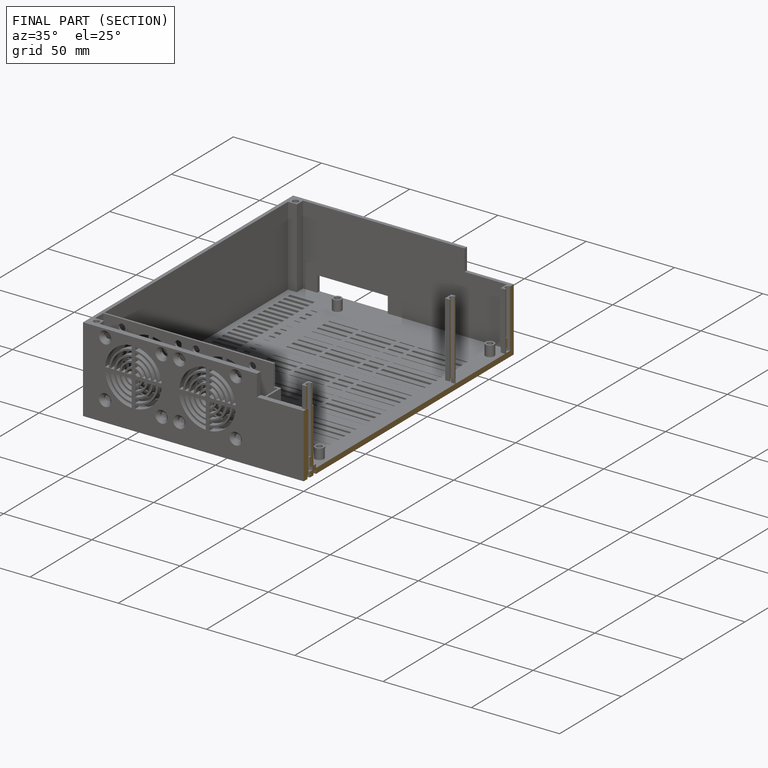
[diagram: finished part — half-section view (interior)]
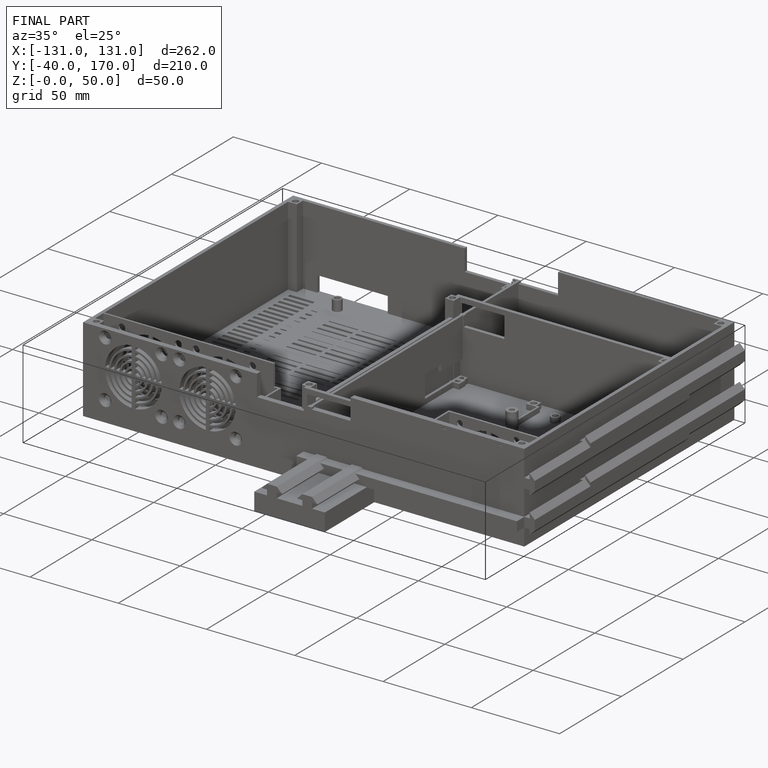
[diagram: finished part — iso view with bounding-box wireframe]
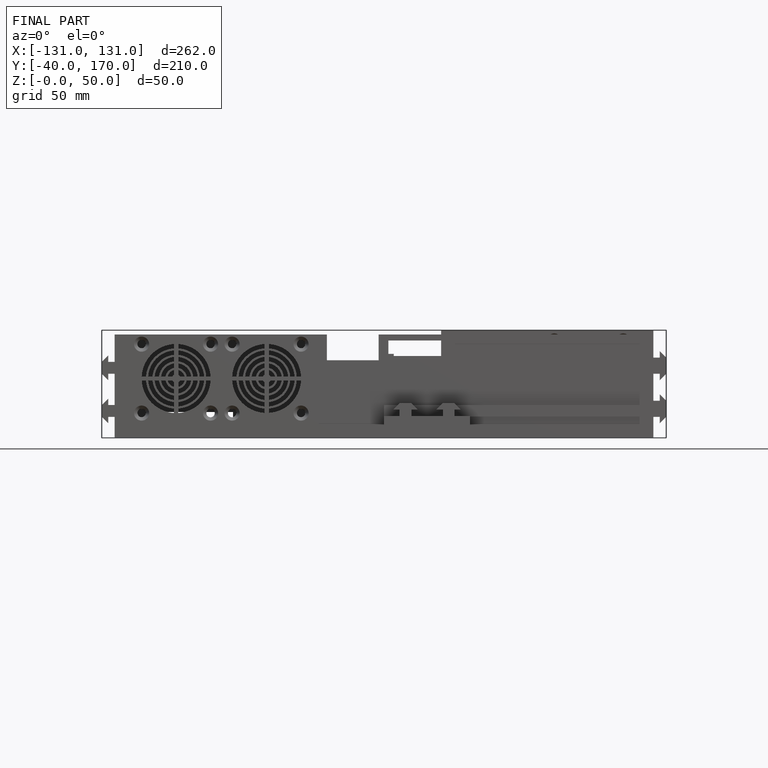
[diagram: finished part — front view with bounding-box wireframe]
